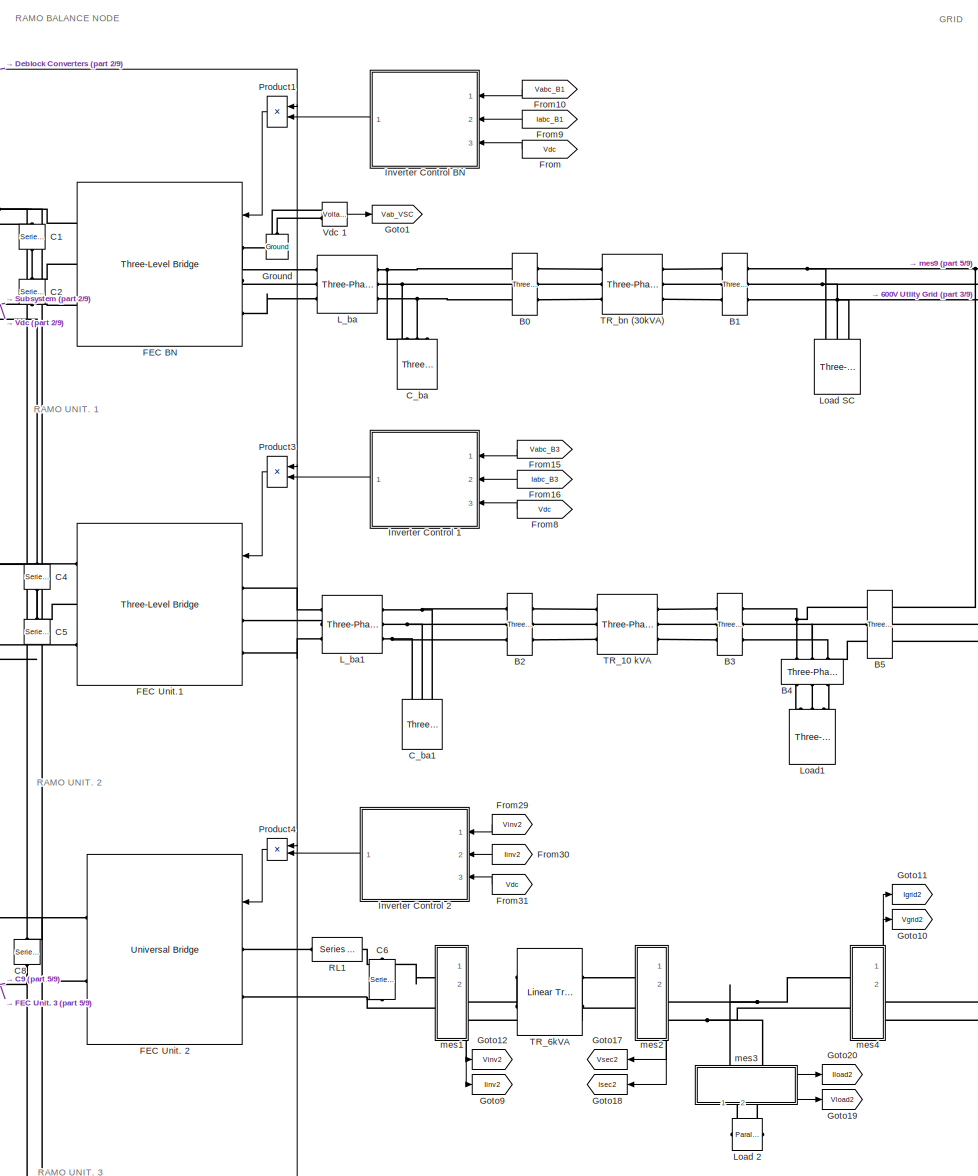
[diagram: root canvas - part 1/9, top right region]
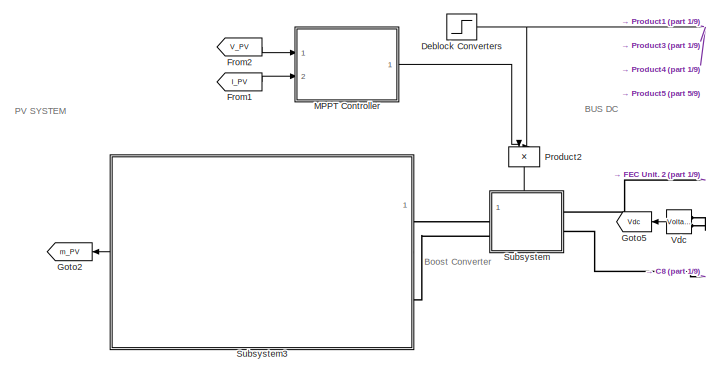
[diagram: root canvas - part 2/9, top center region]
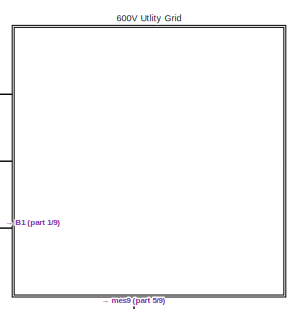
[diagram: root canvas - part 3/9, top right region]
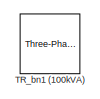
[diagram: root canvas - part 4/9, top left region]
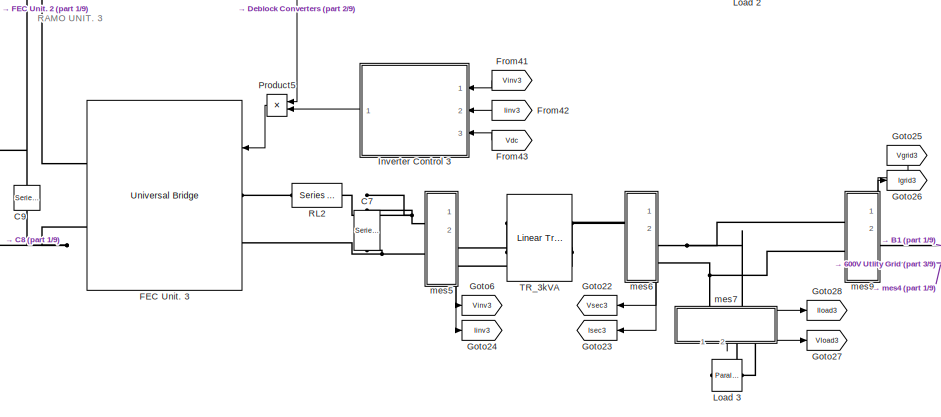
[diagram: root canvas - part 5/9, middle right region]
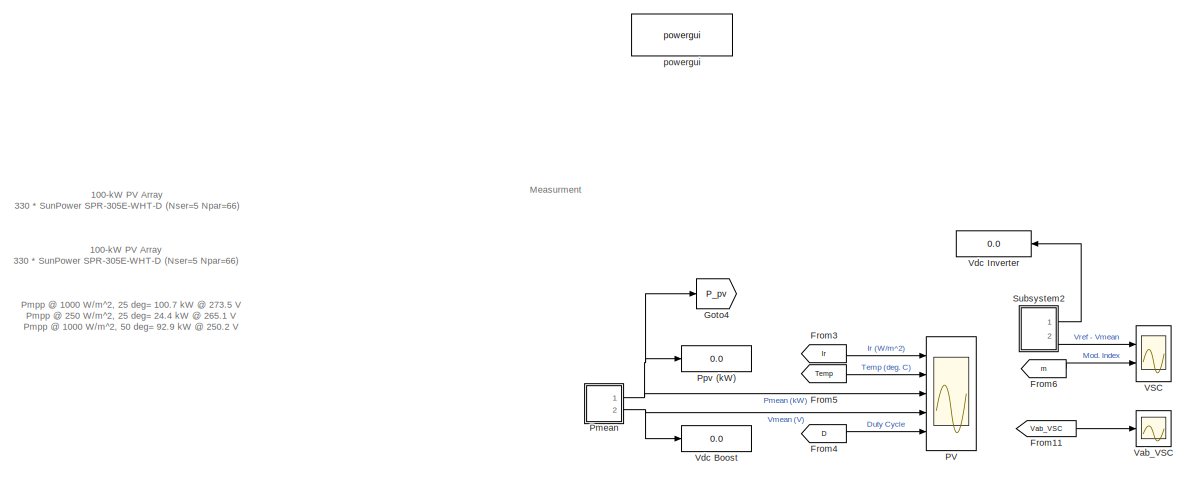
[diagram: root canvas - part 6/9, bottom left region]
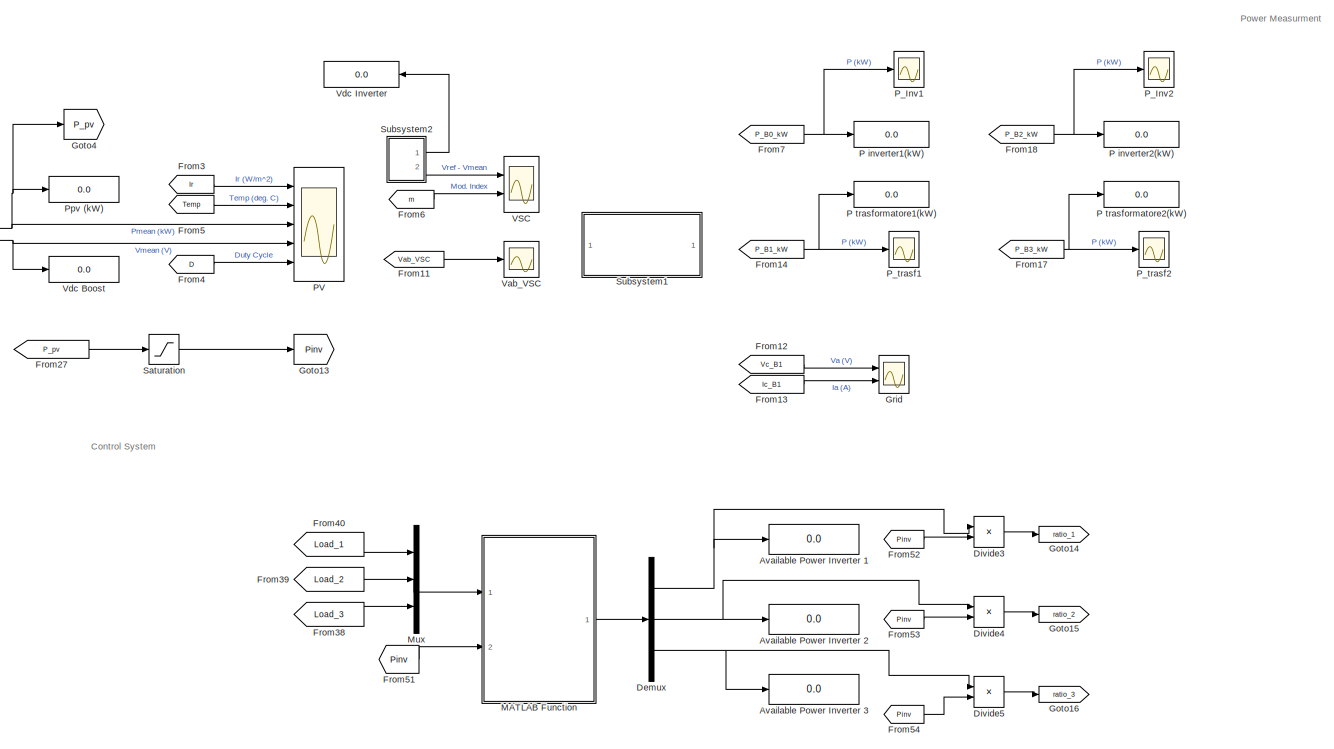
[diagram: root canvas - part 7/9, bottom center region]
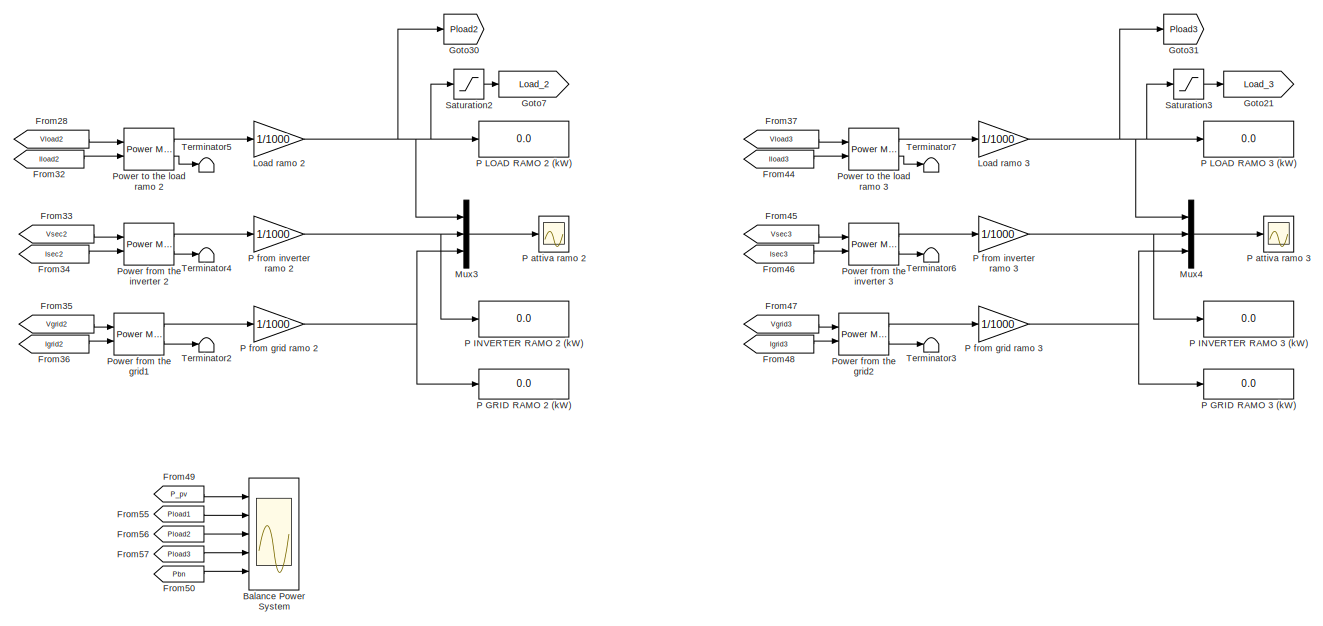
[diagram: root canvas - part 8/9, bottom right region]
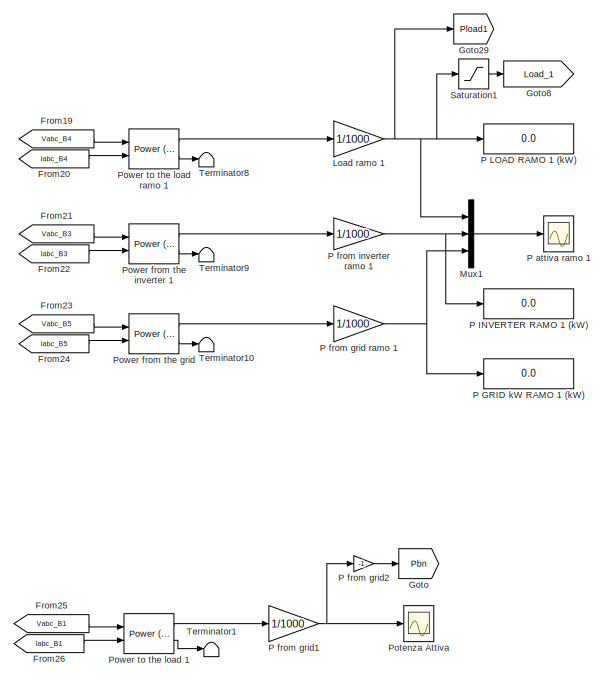
[diagram: root canvas - part 9/9, bottom center region]
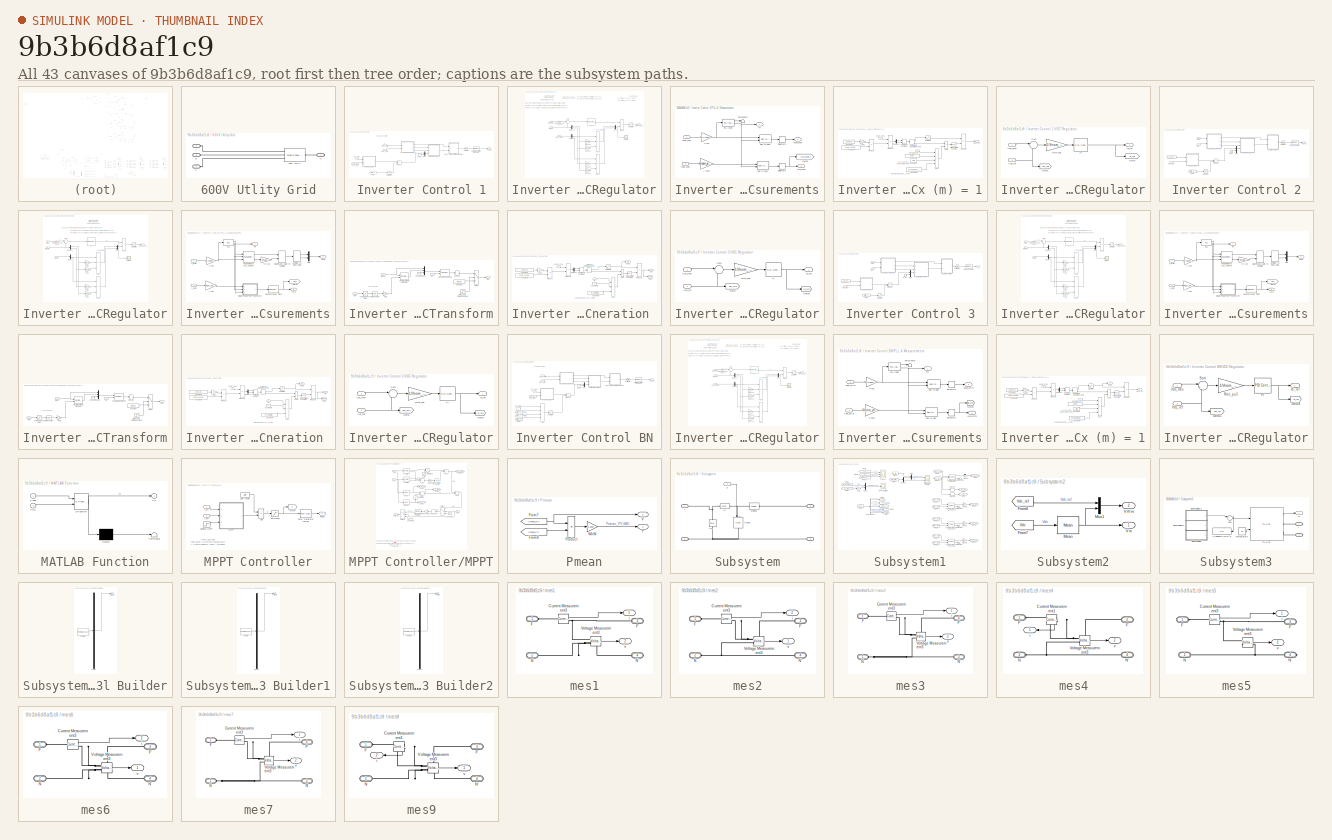
[diagram: thumbnail index - all 43 canvases of the model, root first then tree order]
MODEL slx_9b3b6d8af1c9
KIND model
CONFIG AbsTol = auto
CONFIG EnableMultiTasking = off
CONFIG FixedStep = auto
CONFIG MaxStep = auto
CONFIG MinStep = auto
CONFIG PreLoadFcn = Ts_Power=1e-6;\nTs_Control=100e-6;
CONFIG RelTol = 1e-3
CONFIG SampleTimeConstraint = Unconstrained
CONFIG SolverName = FixedStepDiscrete
CONFIG StartTime = 0.0
CONFIG StopTime = 8
BLOCK [Reference]  Load 3  REF=spsParallelRLCLoadLib/Parallel RLC Load
  AttributesFormatString = \n
  Ports = [0, 0, 0, 0, 0, 1, 1]
  SourceBlock = spsParallelRLCLoadLib/Parallel RLC Load
  SourceProductBaseCode = PS
  SourceType = Parallel RLC Load
BLOCK [Reference]  Load SC  REF=spsThreePhaseParallelRLCLoadLib/Three-Phase
Parallel RLC Load
  AttributesFormatString = \n
  NameLocation = left
  Ports = [0, 0, 0, 0, 0, 3]
  SourceBlock = spsThreePhaseParallelRLCLoadLib/Three-Phase\nParallel RLC Load
  SourceProductBaseCode = PS
  SourceType = Three-Phase Parallel RLC Load
BLOCK [Reference]  Load1  REF=spsThreePhaseParallelRLCLoadLib/Three-Phase
Parallel RLC Load
  AttributesFormatString = \n
  NameLocation = left
  Ports = [0, 0, 0, 0, 0, 3]
  SourceBlock = spsThreePhaseParallelRLCLoadLib/Three-Phase\nParallel RLC Load
  SourceProductBaseCode = PS
  SourceType = Three-Phase Parallel RLC Load
BLOCK [SubSystem] 600V Utlity Grid
  PortSchema = {"entries":[{"content":{"sides":[{"content":{"connectorIds":["LConn1","LConn2","LConn3"]},"type":"ConnectorPlacement.EquallySpacedRectSide","uuid":"36023811-46b7-429e-a8ab-d56566142e79"},{"content":{"connectorIds":[],"side":"RIGHT"},"type":"ConnectorPlacement.EquallySpacedRectSide","uuid":"9af551aa-fa19-4e35-bdf3-eccb9cb0d58d"},{"content":{"connectorIds":[],"side":"TOP"},"type":"ConnectorPlacement...<+407ch>
  Ports = [0, 0, 0, 0, 0, 3, 1]
  RequestExecContextInheritance = off
BLOCK [Reference] 600V Utlity Grid/400V 7MVA  REF=spsThreePhaseSourceLib/Three-Phase Source
  Ports = [0, 0, 0, 0, 0, 1, 3]
  SourceBlock = spsThreePhaseSourceLib/Three-Phase Source
  SourceProductBaseCode = PS
  SourceType = Three-Phase Source
BLOCK [PMIOPort] 600V Utlity Grid/A
  Side = Left
BLOCK [PMIOPort] 600V Utlity Grid/B
  Port = 2
  Side = Left
BLOCK [PMIOPort] 600V Utlity Grid/C
  Port = 3
  Side = Left
BLOCK [PMIOPort] 600V Utlity Grid/N
  Port = 4
  Side = Right
BLOCK [Display] Available Power Inverter 1
  Decimation = 1
  Ports = [1]
BLOCK [Display] Available Power Inverter 2
  Decimation = 1
  Ports = [1]
BLOCK [Display] Available Power Inverter 3
  Decimation = 1
  Ports = [1]
BLOCK [Reference] B0  REF=spsThreePhaseVIMeasurementLib/Three-Phase
V-I Measurement
  Ports = [0, 0, 0, 0, 0, 3, 3]
  SourceBlock = spsThreePhaseVIMeasurementLib/Three-Phase\nV-I Measurement
  SourceProductBaseCode = PS
  SourceType = Three-Phase VI Measurement
BLOCK [Reference] B1  REF=spsThreePhaseVIMeasurementLib/Three-Phase
V-I Measurement
  Ports = [0, 0, 0, 0, 0, 3, 3]
  SourceBlock = spsThreePhaseVIMeasurementLib/Three-Phase\nV-I Measurement
  SourceProductBaseCode = PS
  SourceType = Three-Phase VI Measurement
BLOCK [Reference] B2  REF=spsThreePhaseVIMeasurementLib/Three-Phase
V-I Measurement
  Ports = [0, 0, 0, 0, 0, 3, 3]
  SourceBlock = spsThreePhaseVIMeasurementLib/Three-Phase\nV-I Measurement
  SourceProductBaseCode = PS
  SourceType = Three-Phase VI Measurement
BLOCK [Reference] B3  REF=spsThreePhaseVIMeasurementLib/Three-Phase
V-I Measurement
  Ports = [0, 0, 0, 0, 0, 3, 3]
  SourceBlock = spsThreePhaseVIMeasurementLib/Three-Phase\nV-I Measurement
  SourceProductBaseCode = PS
  SourceType = Three-Phase VI Measurement
BLOCK [Reference] B4  REF=spsThreePhaseVIMeasurementLib/Three-Phase
V-I Measurement
  NameLocation = left
  Ports = [0, 0, 0, 0, 0, 3, 3]
  SourceBlock = spsThreePhaseVIMeasurementLib/Three-Phase\nV-I Measurement
  SourceProductBaseCode = PS
  SourceType = Three-Phase VI Measurement
BLOCK [Reference] B5  REF=spsThreePhaseVIMeasurementLib/Three-Phase
V-I Measurement
  NameLocation = top
  Ports = [0, 0, 0, 0, 0, 3, 3]
  SourceBlock = spsThreePhaseVIMeasurementLib/Three-Phase\nV-I Measurement
  SourceProductBaseCode = PS
  SourceType = Three-Phase VI Measurement
BLOCK [Scope] Balance Power System
  Floating = off
  NumInputPorts = 5
  Ports = [5]
  ScopeSpecificationString = Simulink.scopes.TimeScopeBlockCfg('CurrentConfiguration', extmgr.ConfigurationSet(extmgr.Configuration('Core','General UI',true),extmgr.Configuration('Core','Source UI',true),extmgr.Configuration('Sources','WiredSimulink',true,'DataLoggingVariableName','ScopeData1'),extmgr.Configuration('Visuals','Time Domain',true,'SerializedDisplays',{struct('MinYLimReal','-45.0954','MaxYLimReal','120.37398','YL...<+1887ch>
BLOCK [Reference] C1  REF=spsSeriesRLCBranchLib/Series RLC Branch
  AttributesFormatString = \n
  NameLocation = left
  Ports = [0, 0, 0, 0, 0, 1, 1]
  SourceBlock = spsSeriesRLCBranchLib/Series RLC Branch
  SourceProductBaseCode = PS
  SourceType = Series RLC Branch
BLOCK [Reference] C2  REF=spsSeriesRLCBranchLib/Series RLC Branch
  AttributesFormatString = \n
  NameLocation = left
  Ports = [0, 0, 0, 0, 0, 1, 1]
  SourceBlock = spsSeriesRLCBranchLib/Series RLC Branch
  SourceProductBaseCode = PS
  SourceType = Series RLC Branch
BLOCK [Reference] C4  REF=spsSeriesRLCBranchLib/Series RLC Branch
  AttributesFormatString = \n
  NameLocation = left
  Ports = [0, 0, 0, 0, 0, 1, 1]
  SourceBlock = spsSeriesRLCBranchLib/Series RLC Branch
  SourceProductBaseCode = PS
  SourceType = Series RLC Branch
BLOCK [Reference] C5  REF=spsSeriesRLCBranchLib/Series RLC Branch
  AttributesFormatString = \n
  NameLocation = left
  Ports = [0, 0, 0, 0, 0, 1, 1]
  SourceBlock = spsSeriesRLCBranchLib/Series RLC Branch
  SourceProductBaseCode = PS
  SourceType = Series RLC Branch
BLOCK [Reference] C6  REF=spsSeriesRLCLoadLib/Series RLC Load
  AttributesFormatString = \n
  NameLocation = right
  Ports = [0, 0, 0, 0, 0, 1, 1]
  SourceBlock = spsSeriesRLCLoadLib/Series RLC Load
  SourceProductBaseCode = PS
  SourceType = Series RLC Load
BLOCK [Reference] C7  REF=spsSeriesRLCLoadLib/Series RLC Load
  AttributesFormatString = \n
  NameLocation = right
  Ports = [0, 0, 0, 0, 0, 1, 1]
  SourceBlock = spsSeriesRLCLoadLib/Series RLC Load
  SourceProductBaseCode = PS
  SourceType = Series RLC Load
BLOCK [Reference] C8  REF=spsSeriesRLCBranchLib/Series RLC Branch
  AttributesFormatString = \n
  NameLocation = left
  Ports = [0, 0, 0, 0, 0, 1, 1]
  SourceBlock = spsSeriesRLCBranchLib/Series RLC Branch
  SourceProductBaseCode = PS
  SourceType = Series RLC Branch
BLOCK [Reference] C9  REF=spsSeriesRLCBranchLib/Series RLC Branch
  AttributesFormatString = \n
  NameLocation = left
  Ports = [0, 0, 0, 0, 0, 1, 1]
  SourceBlock = spsSeriesRLCBranchLib/Series RLC Branch
  SourceProductBaseCode = PS
  SourceType = Series RLC Branch
BLOCK [Reference] C_ba  REF=spsThreePhaseSeriesRLCLoadLib/Three-Phase
Series RLC Load
  AttributesFormatString = \n
  NameLocation = right
  Ports = [0, 0, 0, 0, 0, 3]
  SourceBlock = spsThreePhaseSeriesRLCLoadLib/Three-Phase\nSeries RLC Load
  SourceProductBaseCode = PS
  SourceType = Three-Phase Series RLC Load
BLOCK [Reference] C_ba1  REF=spsThreePhaseSeriesRLCLoadLib/Three-Phase
Series RLC Load
  AttributesFormatString = \n
  NameLocation = right
  Ports = [0, 0, 0, 0, 0, 3]
  SourceBlock = spsThreePhaseSeriesRLCLoadLib/Three-Phase\nSeries RLC Load
  SourceProductBaseCode = PS
  SourceType = Three-Phase Series RLC Load
BLOCK [Step] Deblock Converters
  NameLocation = top
  SampleTime = 0
  Time = 0.05
BLOCK [Demux] Demux
  Outputs = 3
  Ports = [1, 3]
BLOCK [Product] Divide3
  Inputs = */
  Ports = [2, 1]
BLOCK [Product] Divide4
  Inputs = */
  Ports = [2, 1]
BLOCK [Product] Divide5
  Inputs = */
  Ports = [2, 1]
BLOCK [Reference] FEC BN  REF=spsThreeLevelBridgeLib/Three-Level Bridge
  AttributesFormatString = \n
  Ports = [1, 0, 0, 0, 0, 3, 3]
  SourceBlock = spsThreeLevelBridgeLib/Three-Level Bridge
  SourceProductBaseCode = PS
  SourceType = Three-Level Bridge
BLOCK [Reference] FEC Unit. 2  REF=spsUniversalBridgeLib/Universal Bridge
  Ports = [1, 0, 0, 0, 0, 2, 2]
  SourceBlock = spsUniversalBridgeLib/Universal Bridge
  SourceProductBaseCode = PS
  SourceType = Universal Bridge
BLOCK [Reference] FEC Unit. 3  REF=spsUniversalBridgeLib/Universal Bridge
  Ports = [1, 0, 0, 0, 0, 2, 2]
  SourceBlock = spsUniversalBridgeLib/Universal Bridge
  SourceProductBaseCode = PS
  SourceType = Universal Bridge
BLOCK [Reference] FEC Unit.1  REF=spsThreeLevelBridgeLib/Three-Level Bridge
  AttributesFormatString = \n
  Ports = [1, 0, 0, 0, 0, 3, 3]
  SourceBlock = spsThreeLevelBridgeLib/Three-Level Bridge
  SourceProductBaseCode = PS
  SourceType = Three-Level Bridge
BLOCK [From] From
  GotoTag = Vdc
  TagVisibility = global
BLOCK [From] From1
  CloseFcn = tagdialog Close
  GotoTag = I_PV
  TagVisibility = global
BLOCK [From] From10
  CloseFcn = tagdialog Close
  GotoTag = Vabc_B1
  TagVisibility = global
BLOCK [From] From11
  CloseFcn = tagdialog Close
  GotoTag = Vab_VSC
  TagVisibility = global
BLOCK [From] From12
  CloseFcn = tagdialog Close
  GotoTag = Vc_B1
  TagVisibility = global
BLOCK [From] From13
  CloseFcn = tagdialog Close
  GotoTag = Ic_B1
  TagVisibility = global
BLOCK [From] From14
  CloseFcn = tagdialog Close
  GotoTag = P_B1_kW
  TagVisibility = global
BLOCK [From] From15
  CloseFcn = tagdialog Close
  GotoTag = Vabc_B3
  TagVisibility = global
BLOCK [From] From16
  CloseFcn = tagdialog Close
  GotoTag = Iabc_B3
  TagVisibility = global
BLOCK [From] From17
  CloseFcn = tagdialog Close
  GotoTag = P_B3_kW
  TagVisibility = global
BLOCK [From] From18
  CloseFcn = tagdialog Close
  GotoTag = P_B2_kW
  TagVisibility = global
BLOCK [From] From19
  GotoTag = Vabc_B4
  TagVisibility = global
BLOCK [From] From2
  CloseFcn = tagdialog Close
  GotoTag = V_PV
  TagVisibility = global
BLOCK [From] From20
  GotoTag = Iabc_B4
  TagVisibility = global
BLOCK [From] From21
  GotoTag = Vabc_B3
  TagVisibility = global
BLOCK [From] From22
  GotoTag = Iabc_B3
  TagVisibility = global
BLOCK [From] From23
  GotoTag = Vabc_B5
  TagVisibility = global
BLOCK [From] From24
  GotoTag = Iabc_B5
  TagVisibility = global
BLOCK [From] From25
  GotoTag = Vabc_B1
  TagVisibility = global
BLOCK [From] From26
  GotoTag = Iabc_B1
  TagVisibility = global
BLOCK [From] From27
  GotoTag = P_pv
  TagVisibility = global
BLOCK [From] From28
  GotoTag = Vload2
BLOCK [From] From29
  GotoTag = Vinv2
  NameLocation = left
BLOCK [From] From3
  CloseFcn = tagdialog Close
  GotoTag = Ir
  TagVisibility = global
BLOCK [From] From30
  GotoTag = Iinv2
  NameLocation = top
BLOCK [From] From31
  GotoTag = Vdc
  NameLocation = top
  TagVisibility = global
BLOCK [From] From32
  GotoTag = Iload2
BLOCK [From] From33
  GotoTag = Vsec2
BLOCK [From] From34
  GotoTag = Isec2
BLOCK [From] From35
  GotoTag = Vgrid2
BLOCK [From] From36
  GotoTag = Igrid2
BLOCK [From] From37
  GotoTag = Vload3
BLOCK [From] From38
  GotoTag = Load_3
BLOCK [From] From39
  GotoTag = Load_2
BLOCK [From] From4
  CloseFcn = tagdialog Close
  GotoTag = D
  TagVisibility = global
BLOCK [From] From40
  GotoTag = Load_1
BLOCK [From] From41
  GotoTag = Vinv3
  NameLocation = left
BLOCK [From] From42
  GotoTag = Iinv3
  NameLocation = top
BLOCK [From] From43
  GotoTag = Vdc
  NameLocation = top
  TagVisibility = global
BLOCK [From] From44
  GotoTag = Iload3
BLOCK [From] From45
  GotoTag = Vsec3
BLOCK [From] From46
  GotoTag = Isec3
BLOCK [From] From47
  GotoTag = Vgrid3
BLOCK [From] From48
  GotoTag = Igrid3
BLOCK [From] From49
  GotoTag = P_pv
  TagVisibility = global
BLOCK [From] From5
  CloseFcn = tagdialog Close
  GotoTag = Temp
  TagVisibility = global
BLOCK [From] From50
  GotoTag = Pbn
BLOCK [From] From51
  GotoTag = Pinv
BLOCK [From] From52
  GotoTag = Pinv
BLOCK [From] From53
  GotoTag = Pinv
BLOCK [From] From54
  GotoTag = Pinv
BLOCK [From] From55
  GotoTag = Pload1
BLOCK [From] From56
  GotoTag = Pload2
BLOCK [From] From57
  GotoTag = Pload3
BLOCK [From] From6
  CloseFcn = tagdialog Close
  GotoTag = m
  TagVisibility = global
BLOCK [From] From7
  CloseFcn = tagdialog Close
  GotoTag = P_B0_kW
  TagVisibility = global
BLOCK [From] From8
  GotoTag = Vdc
  TagVisibility = global
BLOCK [From] From9
  CloseFcn = tagdialog Close
  GotoTag = Iabc_B1
  TagVisibility = global
BLOCK [Goto] Goto
  GotoTag = Pbn
BLOCK [Goto] Goto1
  GotoTag = Vab_VSC
  TagVisibility = global
BLOCK [Goto] Goto10
  GotoTag = Vgrid2
BLOCK [Goto] Goto11
  GotoTag = Igrid2
BLOCK [Goto] Goto12
  GotoTag = Vinv2
BLOCK [Goto] Goto13
  GotoTag = Pinv
BLOCK [Goto] Goto14
  GotoTag = ratio_1
  TagVisibility = global
BLOCK [Goto] Goto15
  GotoTag = ratio_2
  TagVisibility = global
BLOCK [Goto] Goto16
  GotoTag = ratio_3
  TagVisibility = global
BLOCK [Goto] Goto17
  GotoTag = Vsec2
  NameLocation = top
BLOCK [Goto] Goto18
  GotoTag = Isec2
  NameLocation = top
BLOCK [Goto] Goto19
  GotoTag = Vload2
BLOCK [Goto] Goto2
  GotoTag = m_PV
  TagVisibility = global
BLOCK [Goto] Goto20
  GotoTag = Iload2
BLOCK [Goto] Goto21
  GotoTag = Load_3
BLOCK [Goto] Goto22
  GotoTag = Vsec3
  NameLocation = top
BLOCK [Goto] Goto23
  GotoTag = Isec3
  NameLocation = top
BLOCK [Goto] Goto24
  GotoTag = Iinv3
BLOCK [Goto] Goto25
  GotoTag = Vgrid3
BLOCK [Goto] Goto26
  GotoTag = Igrid3
BLOCK [Goto] Goto27
  GotoTag = Vload3
BLOCK [Goto] Goto28
  GotoTag = Iload3
BLOCK [Goto] Goto29
  GotoTag = Pload1
BLOCK [Goto] Goto30
  GotoTag = Pload2
BLOCK [Goto] Goto31
  GotoTag = Pload3
BLOCK [Goto] Goto4
  GotoTag = P_pv
  TagVisibility = global
BLOCK [Goto] Goto5
  GotoTag = Vdc
  TagVisibility = global
BLOCK [Goto] Goto6
  GotoTag = Vinv3
BLOCK [Goto] Goto7
  GotoTag = Load_2
BLOCK [Goto] Goto8
  GotoTag = Load_1
BLOCK [Goto] Goto9
  GotoTag = Iinv2
BLOCK [Scope] Grid
  Floating = off
  NumInputPorts = 2
  Ports = [2]
  ScopeSpecificationString = Simulink.scopes.TimeScopeBlockCfg('CurrentConfiguration', extmgr.ConfigurationSet(extmgr.Configuration('Core','General UI',true),extmgr.Configuration('Core','Source UI',true),extmgr.Configuration('Sources','WiredSimulink',true,'DataLoggingDecimation','20','DataLoggingDecimateData',true,'DataLoggingSaveFormat','Array','DataLoggingVariableName','ScopeData3'),extmgr.Configuration('Visuals','Time Doma...<+2296ch>
BLOCK [Reference] Ground  REF=spsGroundLib/Ground
  NameLocation = right
  Ports = [0, 0, 0, 0, 0, 1]
  SourceBlock = spsGroundLib/Ground
  SourceProductBaseCode = PS
  SourceType = Ground
BLOCK [SubSystem] Inverter Control 1
  NameLocation = top
  Ports = [3, 1]
  RequestExecContextInheritance = off
BLOCK [SubSystem] Inverter Control 1/Current Regulator
  Ports = [3, 1]
  RequestExecContextInheritance = off
BLOCK [Sum] Inverter Control 1/Current Regulator/Add1
  IconShape = rectangular
  Inputs = ++-
  Ports = [3, 1]
BLOCK [Sum] Inverter Control 1/Current Regulator/Add2
  IconShape = rectangular
  Ports = [2, 1]
BLOCK [Sum] Inverter Control 1/Current Regulator/Add3
  IconShape = rectangular
  Inputs = +++
  Ports = [3, 1]
BLOCK [Demux] Inverter Control 1/Current Regulator/Demux
  Outputs = 2
  Ports = [1, 2]
BLOCK [Demux] Inverter Control 1/Current Regulator/Demux1
  Outputs = 2
  Ports = [1, 2]
BLOCK [Inport] Inverter Control 1/Current Regulator/IdIq_mes
  Port = 2
  PortDimensions = 2
BLOCK [Inport] Inverter Control 1/Current Regulator/IdIq_ref
  Port = 3
  PortDimensions = 2
BLOCK [Gain] Inverter Control 1/Current Regulator/Ltot_pu1
  Gain = Ltot_pu
  OutDataTypeStr = Inherit: Same as input
  ParamDataTypeStr = Inherit: Same as input
  SaturateOnIntegerOverflow = on
BLOCK [Gain] Inverter Control 1/Current Regulator/Ltot_pu2
  Gain = Ltot_pu
  OutDataTypeStr = Inherit: Same as input
  ParamDataTypeStr = Inherit: Same as input
  SaturateOnIntegerOverflow = on
BLOCK [Mux] Inverter Control 1/Current Regulator/Mux
  DisplayOption = bar
  Inputs = 2
  Ports = [2, 1]
BLOCK [Reference] Inverter Control 1/Current Regulator/PI  REF=slpidlib/PID Controller
  Ports = [1, 1]
  SourceBlock = slpidlib/PID Controller
  SourceProductBaseCode = SL
  SourceType = PID 1dof
BLOCK [Scope] Inverter Control 1/Current Regulator/PI_Ireg1
  Floating = off
  NumInputPorts = 1
  Ports = [1]
  ScopeSpecificationString = C++SS(StrPVP('Location','[188, 365, 512, 604]'),StrPVP('Open','off'),MxPVP('AxesTitles',54,'struct(''axes1'',''%<SignalLabel>'')'),StrPVP('ShowLegends','off'),StrPVP('LimitDataPoints','off'),StrPVP('ScrollMode','off'),StrPVP('DataFormat','Array'),StrPVP('Decimation','1'),StrPVP('BlockParamSampleInput','off'))
BLOCK [Gain] Inverter Control 1/Current Regulator/Rtot_pu1
  Gain = Rtot_pu
  NameLocation = top
  OutDataTypeStr = Inherit: Same as input
  ParamDataTypeStr = Inherit: Same as input
  SaturateOnIntegerOverflow = on
BLOCK [Gain] Inverter Control 1/Current Regulator/Rtot_pu5
  Gain = Rtot_pu
  NameLocation = top
  OutDataTypeStr = Inherit: Same as input
  ParamDataTypeStr = Inherit: Same as input
  SaturateOnIntegerOverflow = on
BLOCK [Saturate] Inverter Control 1/Current Regulator/Saturation
  LowerLimit = -2
  UpperLimit = 2
BLOCK [Sum] Inverter Control 1/Current Regulator/Sum
  Inputs = |-+
  Ports = [2, 1]
BLOCK [Outport] Inverter Control 1/Current Regulator/VdVq_conv
  VectorParamsAs1DForOutWhenUnconnected = off
BLOCK [Inport] Inverter Control 1/Current Regulator/VdVq_mes
  PortDimensions = 2
BLOCK [Gain] Inverter Control 1/Current Regulator/from 100kVA to 10kVA 
  Gain = 10000/100e3
  NameLocation = top
  OutDataTypeStr = Inherit: Same as input
  ParamDataTypeStr = Inherit: Same as input
  SaturateOnIntegerOverflow = on
BLOCK [From] Inverter Control 1/From
  GotoTag = ratio_1
  TagVisibility = global
BLOCK [Inport] Inverter Control 1/Iabc_prim
  Port = 2
  PortDimensions = 3
BLOCK [Constant] Inverter Control 1/Iq_ref
  Value = 0
BLOCK [Mux] Inverter Control 1/Mux
  DisplayOption = bar
  Inputs = 2
  Ports = [2, 1]
BLOCK [SubSystem] Inverter Control 1/PLL & Measurements
  Ports = [2, 3]
  RequestExecContextInheritance = off
BLOCK [Goto] Inverter Control 1/PLL & Measurements/Goto3
  GotoTag = IdIq_prim2
  TagVisibility = global
BLOCK [Gain] Inverter Control 1/PLL & Measurements/I->pu1
  Gain = Vnom_prim*sqrt(3)/(Pnom)/sqrt(2)
  OutDataTypeStr = Inherit: Same as input
  ParamDataTypeStr = Inherit: Same as input
  SaturateOnIntegerOverflow = on
BLOCK [Inport] Inverter Control 1/PLL & Measurements/Iabc_prim
  Port = 2
BLOCK [Outport] Inverter Control 1/PLL & Measurements/IdIq_prim
  Port = 3
  VectorParamsAs1DForOutWhenUnconnected = off
BLOCK [Reference] Inverter Control 1/PLL & Measurements/PLL (3ph)  REF=spsPLL3phLib/PLL
(3ph)
  Ports = [1, 2]
  SourceBlock = spsPLL3phLib/PLL\n(3ph)
  SourceProductBaseCode = PS
  SourceType = PLL (3ph)
BLOCK [Selector] Inverter Control 1/PLL & Measurements/Selector1
  IndexOptions = Index vector (dialog)
  Indices = [1 2]
  InputPortWidth = 3
  OutputSizes = 1
  Ports = [1, 1]
BLOCK [Selector] Inverter Control 1/PLL & Measurements/Selector2
  IndexOptions = Index vector (dialog)
  Indices = [1 2]
  InputPortWidth = 3
  OutputSizes = 1
  Ports = [1, 1]
BLOCK [Terminator] Inverter Control 1/PLL & Measurements/Terminator
BLOCK [Gain] Inverter Control 1/PLL & Measurements/V->pu
  Gain = 1/(Vnom_prim*sqrt(2)/sqrt(3))
  OutDataTypeStr = Inherit: Same as input
  ParamDataTypeStr = Inherit: Same as input
  SaturateOnIntegerOverflow = on
BLOCK [Inport] Inverter Control 1/PLL & Measurements/Vabc_prim
BLOCK [Outport] Inverter Control 1/PLL & Measurements/VdVq_prim
  Port = 2
  VectorParamsAs1DForOutWhenUnconnected = off
BLOCK [Reference] Inverter Control 1/PLL & Measurements/abc to dq0  REF=spsabctodq0Lib/abc to dq0
  Ports = [2, 1]
  SourceBlock = spsabctodq0Lib/abc to dq0
  SourceProductBaseCode = PS
  SourceType = abc to dq0 Transformation
BLOCK [Reference] Inverter Control 1/PLL & Measurements/abc to dq1  REF=spsabctodq0Lib/abc to dq0
  Ports = [2, 1]
  SourceBlock = spsabctodq0Lib/abc to dq0
  SourceProductBaseCode = PS
  SourceType = abc to dq0 Transformation
BLOCK [Outport] Inverter Control 1/PLL & Measurements/wt
  VectorParamsAs1DForOutWhenUnconnected = off
BLOCK [Reference] Inverter Control 1/PWM Generator (3-Level)  REF=spsPWMGenerator3LevelLib/PWM Generator
(3-Level)
  Ports = [1, 1]
  SourceBlock = spsPWMGenerator3LevelLib/PWM Generator\n(3-Level)
  SourceProductBaseCode = PS
  SourceType = PWM Generator (3-Level)
BLOCK [Product] Inverter Control 1/Product
  Ports = [2, 1]
BLOCK [Outport] Inverter Control 1/Pulses
  NameLocation = top
  VectorParamsAs1DForOutWhenUnconnected = off
BLOCK [Saturate] Inverter Control 1/Saturation
  LowerLimit = 0
  UpperLimit = 1
BLOCK [SubSystem] Inverter Control 1/Uabc_ref Generation max (m) = 1
  Ports = [2, 1]
  RequestExecContextInheritance = off
BLOCK [Sum] Inverter Control 1/Uabc_ref Generation max (m) = 1/Add1
  IconShape = rectangular
  Inputs = ++++
  Ports = [4, 1]
BLOCK [Sum] Inverter Control 1/Uabc_ref Generation max (m) = 1/Add2
  IconShape = rectangular
  Ports = [2, 1]
BLOCK [ComplexToMagnitudeAngle] Inverter Control 1/Uabc_ref Generation max (m) = 1/Complex to Magnitude-Angle
  Ports = [1, 2]
BLOCK [Constant] Inverter Control 1/Uabc_ref Generation max (m) = 1/Constant
  Value = -pi/6
BLOCK [Constant] Inverter Control 1/Uabc_ref Generation max (m) = 1/Constant1
  Value = Vnom_dc
BLOCK [Constant] Inverter Control 1/Uabc_ref Generation max (m) = 1/Constant2
  Value = [ 0  -2*pi/3  2*pi/3  ]
BLOCK [Constant] Inverter Control 1/Uabc_ref Generation max (m) = 1/Constant3
  Value = Vnom_sec*sqrt(2)/sqrt(3)
BLOCK [Constant] Inverter Control 1/Uabc_ref Generation max (m) = 1/Constant4
  Value = Ts*Fnom*(2*pi)
BLOCK [Demux] Inverter Control 1/Uabc_ref Generation max (m) = 1/Demux1
  Outputs = 2
  Ports = [1, 2]
BLOCK [Gain] Inverter Control 1/Uabc_ref Generation max (m) = 1/Gain1
  Gain = 1/2
BLOCK [Product] Inverter Control 1/Uabc_ref Generation max (m) = 1/Product
  Inputs = */
  Ports = [2, 1]
  RndMeth = Zero
BLOCK [Product] Inverter Control 1/Uabc_ref Generation max (m) = 1/Product1
  Inputs = */
  Ports = [2, 1]
  RndMeth = Zero
BLOCK [Product] Inverter Control 1/Uabc_ref Generation max (m) = 1/Product2
  Inputs = **
  Ports = [2, 1]
  RndMeth = Zero
BLOCK [RealImagToComplex] Inverter Control 1/Uabc_ref Generation max (m) = 1/Real-Imag to Complex
  Ports = [2, 1]
BLOCK [Saturate] Inverter Control 1/Uabc_ref Generation max (m) = 1/Saturation
  LowerLimit = 0
  UpperLimit = 1
BLOCK [Trigonometry] Inverter Control 1/Uabc_ref Generation max (m) = 1/Trigonometric Function
  Ports = [1, 1]
BLOCK [Outport] Inverter Control 1/Uabc_ref Generation max (m) = 1/Uabc_ref
  VectorParamsAs1DForOutWhenUnconnected = off
BLOCK [Inport] Inverter Control 1/Uabc_ref Generation max (m) = 1/VdVq_conv
  Port = 2
BLOCK [Inport] Inverter Control 1/Uabc_ref Generation max (m) = 1/wt
BLOCK [UnitDelay] Inverter Control 1/Unit Delay
  HasFrameUpgradeWarning = on
  SampleTime = Ts_Control
BLOCK [SubSystem] Inverter Control 1/VDC Regulator
  Ports = [2, 1]
  RequestExecContextInheritance = off
BLOCK [Goto] Inverter Control 1/VDC Regulator/Goto1
  GotoTag = Vdc_ref2
  TagVisibility = global
BLOCK [Goto] Inverter Control 1/VDC Regulator/Goto4
  GotoTag = Id_ref2
  TagVisibility = global
BLOCK [Outport] Inverter Control 1/VDC Regulator/Id_ref
  InitialOutput = 0
  SampleTime = Ts
  VectorParamsAs1DForOutWhenUnconnected = off
BLOCK [Reference] Inverter Control 1/VDC Regulator/PI  REF=slpidlib/PID Controller
  Ports = [1, 1]
  SourceBlock = slpidlib/PID Controller
  SourceProductBaseCode = SL
  SourceType = PID 1dof
BLOCK [Gain] Inverter Control 1/VDC Regulator/Rtot_pu3
  Gain = 1/Vnom_dc
  OutDataTypeStr = Inherit: Same as input
  ParamDataTypeStr = Inherit: Same as input
  SaturateOnIntegerOverflow = on
BLOCK [Sum] Inverter Control 1/VDC Regulator/Sum
  Inputs = |+-
  Ports = [2, 1]
BLOCK [Inport] Inverter Control 1/VDC Regulator/Vdc_mes
  PortDimensions = 1
BLOCK [Inport] Inverter Control 1/VDC Regulator/Vdc_ref
  Port = 2
  PortDimensions = 1
BLOCK [Inport] Inverter Control 1/Vabc_prim
  PortDimensions = 3
BLOCK [Inport] Inverter Control 1/Vdc_mes
  Port = 3
  PortDimensions = 1
BLOCK [Constant] Inverter Control 1/Vdc_ref1
  Value = Vdc_ref
BLOCK [SubSystem] Inverter Control 2
  NameLocation = top
  Ports = [3, 1]
  RequestExecContextInheritance = off
BLOCK [SubSystem] Inverter Control 2/Current Regulator
  Ports = [3, 1]
  RequestExecContextInheritance = off
BLOCK [Sum] Inverter Control 2/Current Regulator/Add1
  IconShape = rectangular
  Inputs = ++-
  Ports = [3, 1]
BLOCK [Sum] Inverter Control 2/Current Regulator/Add2
  IconShape = rectangular
  Ports = [2, 1]
BLOCK [Sum] Inverter Control 2/Current Regulator/Add3
  IconShape = rectangular
  Inputs = +++
  Ports = [3, 1]
BLOCK [Demux] Inverter Control 2/Current Regulator/Demux
  Outputs = 2
  Ports = [1, 2]
BLOCK [Demux] Inverter Control 2/Current Regulator/Demux1
  Outputs = 2
  Ports = [1, 2]
BLOCK [Gain] Inverter Control 2/Current Regulator/From 100kVA to 6kVA
  Gain = 6000/100e3
  NameLocation = top
  OutDataTypeStr = Inherit: Same as input
  ParamDataTypeStr = Inherit: Same as input
  SaturateOnIntegerOverflow = on
BLOCK [Inport] Inverter Control 2/Current Regulator/IdIq
  Port = 2
  PortDimensions = 2
BLOCK [Inport] Inverter Control 2/Current Regulator/IdIq_ref
  Port = 3
  PortDimensions = 2
BLOCK [Gain] Inverter Control 2/Current Regulator/Ltot
  Gain = Ltot_pu
  OutDataTypeStr = Inherit: Same as input
  ParamDataTypeStr = Inherit: Same as input
  SaturateOnIntegerOverflow = on
BLOCK [Gain] Inverter Control 2/Current Regulator/Ltot  
  Gain = Ltot_pu
  OutDataTypeStr = Inherit: Same as input
  ParamDataTypeStr = Inherit: Same as input
  SaturateOnIntegerOverflow = on
BLOCK [Mux] Inverter Control 2/Current Regulator/Mux
  DisplayOption = bar
  Inputs = 2
  Ports = [2, 1]
BLOCK [Reference] Inverter Control 2/Current Regulator/PI  REF=slpidlib/PID Controller
  Ports = [1, 1]
  SourceBlock = slpidlib/PID Controller
  SourceProductBaseCode = SL
  SourceType = PID 1dof
BLOCK [Scope] Inverter Control 2/Current Regulator/PI_Ireg1
  Floating = off
  NumInputPorts = 1
  Ports = [1]
  ScopeSpecificationString = Simulink.scopes.TimeScopeBlockCfg('CurrentConfiguration', extmgr.ConfigurationSet(extmgr.Configuration('Core','General UI',true),extmgr.Configuration('Core','Source UI',true),extmgr.Configuration('Sources','WiredSimulink',true,'DataLoggingSaveFormat','Array','DataLoggingDecimation','1','DataLoggingDecimateData',true),extmgr.Configuration('Visuals','Time Domain',true,'SerializedDisplays',{struct('M...<+1614ch>
BLOCK [Gain] Inverter Control 2/Current Regulator/Rtot
  Gain = Rtot_pu
  NameLocation = top
  OutDataTypeStr = Inherit: Same as input
  ParamDataTypeStr = Inherit: Same as input
  SaturateOnIntegerOverflow = on
BLOCK [Gain] Inverter Control 2/Current Regulator/Rtot 
  Gain = Rtot_pu
  NameLocation = top
  OutDataTypeStr = Inherit: Same as input
  ParamDataTypeStr = Inherit: Same as input
  SaturateOnIntegerOverflow = on
BLOCK [Saturate] Inverter Control 2/Current Regulator/Saturation
  LowerLimit = -2
  UpperLimit = 2
BLOCK [Sum] Inverter Control 2/Current Regulator/Sum
  Inputs = |-+
  Ports = [2, 1]
BLOCK [Inport] Inverter Control 2/Current Regulator/VdVq
  PortDimensions = 2
BLOCK [Outport] Inverter Control 2/Current Regulator/VdVq_conv
  VectorParamsAs1DForOutWhenUnconnected = off
BLOCK [From] Inverter Control 2/From
  GotoTag = ratio_2
  TagVisibility = global
BLOCK [Inport] Inverter Control 2/Iinv
  Port = 2
  PortDimensions = 1
BLOCK [Constant] Inverter Control 2/Iq_ref
  Value = 0
BLOCK [Mux] Inverter Control 2/Mux
  DisplayOption = bar
  Inputs = 2
  Ports = [2, 1]
BLOCK [SubSystem] Inverter Control 2/PLL & Measurements
  Ports = [2, 3]
  RequestExecContextInheritance = off
BLOCK [Gain] Inverter Control 2/PLL & Measurements/A->pu
  Gain = Vnom_sec/Pnom/sqrt(2)
  OutDataTypeStr = Inherit: Same as input
  ParamDataTypeStr = Inherit: Same as input
  SaturateOnIntegerOverflow = on
BLOCK [ComplexToRealImag] Inverter Control 2/PLL & Measurements/Complex to Real-Imag
  Ports = [1, 2]
BLOCK [Reference] Inverter Control 2/PLL & Measurements/Fundamental (PLL-Driven)  REF=spsFundamentalPLLDrivenLib/Fundamental
(PLL-Driven)
  Ports = [3, 2]
  SourceBlock = spsFundamentalPLLDrivenLib/Fundamental\n(PLL-Driven)
  SourceProductBaseCode = PS
  SourceType = Fundamental (PLL-Driven)
BLOCK [Goto] Inverter Control 2/PLL & Measurements/Goto3
  GotoTag = IdIq3
  TagVisibility = global
BLOCK [Inport] Inverter Control 2/PLL & Measurements/I_prim
  Port = 2
BLOCK [Outport] Inverter Control 2/PLL & Measurements/IdIq
  Port = 3
  VectorParamsAs1DForOutWhenUnconnected = off
BLOCK [MagnitudeAngleToComplex] Inverter Control 2/PLL & Measurements/Magnitude-Angle to Complex
  Ports = [2, 1]
BLOCK [Mux] Inverter Control 2/PLL & Measurements/Mux
  DisplayOption = bar
  Inputs = 2
  Ports = [2, 1]
BLOCK [Reference] Inverter Control 2/PLL & Measurements/PLL  REF=spsPLLLib/PLL
  Ports = [1, 2]
  SourceBlock = spsPLLLib/PLL
  SourceProductBaseCode = PS
  SourceType = PLL
BLOCK [Reference] Inverter Control 2/PLL & Measurements/Second-Order Filter  REF=spsSecondOrderFilterLib/Second-Order
Filter
  Ports = [1, 1]
  SourceBlock = spsSecondOrderFilterLib/Second-Order\nFilter
  SourceProductBaseCode = PS
  SourceType = Second-Order Filter
BLOCK [SubSystem] Inverter Control 2/PLL & Measurements/Single-Phase dq Transform
  Ports = [3, 1]
  RequestExecContextInheritance = off
BLOCK [Reference] Inverter Control 2/PLL & Measurements/Single-Phase dq Transform/Alpha-Beta-Zero to dq0  REF=spsAlphaBetaZerotodq0Lib/Alpha-Beta-Zero
to dq0
  Ports = [2, 1]
  SourceBlock = spsAlphaBetaZerotodq0Lib/Alpha-Beta-Zero\nto dq0
  SourceProductBaseCode = PS
  SourceType = Alpha-Beta-Zero to dq0 Transformation
BLOCK [Constant] Inverter Control 2/PLL & Measurements/Single-Phase dq Transform/Constant
  Value = [0.92 0]
BLOCK [Constant] Inverter Control 2/PLL & Measurements/Single-Phase dq Transform/Constant1
  Value = 0
BLOCK [Reference] Inverter Control 2/PLL & Measurements/Single-Phase dq Transform/Discrete Variable Time Delay  REF=spsDiscreteVariableTimeDelayLib/Discrete Variable
Time Delay
  Ports = [2, 1]
  SourceBlock = spsDiscreteVariableTimeDelayLib/Discrete Variable\nTime Delay
  SourceProductBaseCode = PS
  SourceType = Discrete Variable Time Delay
BLOCK [Step] Inverter Control 2/PLL & Measurements/Single-Phase dq Transform/First cycle of simulation Id=0.92, Iq=0
  SampleTime = Ts_Control
  Time = 1/Fnom
BLOCK [Inport] Inverter Control 2/PLL & Measurements/Single-Phase dq Transform/Freq
  Port = 3
BLOCK [Gain] Inverter Control 2/PLL & Measurements/Single-Phase dq Transform/Gain
  Gain = 1/4
BLOCK [Outport] Inverter Control 2/PLL & Measurements/Single-Phase dq Transform/Idq
  VectorParamsAs1DForOutWhenUnconnected = off
BLOCK [Inport] Inverter Control 2/PLL & Measurements/Single-Phase dq Transform/Imeas
BLOCK [Math] Inverter Control 2/PLL & Measurements/Single-Phase dq Transform/Math Function
  Operator = reciprocal
  Ports = [1, 1]
  SignedPower = on
BLOCK [Mux] Inverter Control 2/PLL & Measurements/Single-Phase dq Transform/Mux1
  DisplayOption = bar
  Inputs = 3
  Ports = [3, 1]
BLOCK [Selector] Inverter Control 2/PLL & Measurements/Single-Phase dq Transform/Selector
  IndexOptions = Index vector (dialog)
  Indices = [1 2]
  InputPortWidth = 3
  OutputSizes = 1
  Ports = [1, 1]
BLOCK [Switch] Inverter Control 2/PLL & Measurements/Single-Phase dq Transform/Switch
  Criteria = u2 ~= 0
  InputSameDT = off
  SaturateOnIntegerOverflow = off
BLOCK [Saturate] Inverter Control 2/PLL & Measurements/Single-Phase dq Transform/avoid division by zero
  LowerLimit = 40
  UpperLimit = 70
BLOCK [Inport] Inverter Control 2/PLL & Measurements/Single-Phase dq Transform/wt
  Port = 2
BLOCK [Gain] Inverter Control 2/PLL & Measurements/V->pu
  Gain = 1/(Vnom_sec*sqrt(2))
  OutDataTypeStr = Inherit: Same as input
  ParamDataTypeStr = Inherit: Same as input
  SaturateOnIntegerOverflow = on
BLOCK [Inport] Inverter Control 2/PLL & Measurements/V_prim
BLOCK [Outport] Inverter Control 2/PLL & Measurements/VdVq
  Port = 2
  VectorParamsAs1DForOutWhenUnconnected = off
BLOCK [Gain] Inverter Control 2/PLL & Measurements/to-rad
  Gain = pi/180
BLOCK [Outport] Inverter Control 2/PLL & Measurements/wt
  VectorParamsAs1DForOutWhenUnconnected = off
BLOCK [Reference] Inverter Control 2/PWM_Generator  REF=spsPWMGenerator2LevelLib/PWM Generator
(2-Level)
  AttributesFormatString = %<ModulatorType>
  Ports = [1, 1]
  SourceBlock = spsPWMGenerator2LevelLib/PWM Generator\n(2-Level)
  SourceProductBaseCode = PS
  SourceType = PWM Generator (2-Level)
BLOCK [Product] Inverter Control 2/Product
  Ports = [2, 1]
BLOCK [Outport] Inverter Control 2/Pulses
  NameLocation = top
  VectorParamsAs1DForOutWhenUnconnected = off
BLOCK [Saturate] Inverter Control 2/Saturation
  LowerLimit = 0
  UpperLimit = 1
BLOCK [SubSystem] Inverter Control 2/U_ref Generation 
  Ports = [2, 1]
  RequestExecContextInheritance = off
BLOCK [Sum] Inverter Control 2/U_ref Generation /Add1
  IconShape = rectangular
  Inputs = +++
  Ports = [3, 1]
BLOCK [Sum] Inverter Control 2/U_ref Generation /Add2
  IconShape = rectangular
  Ports = [2, 1]
BLOCK [ComplexToMagnitudeAngle] Inverter Control 2/U_ref Generation /Complex to Magnitude-Angle
  Ports = [1, 2]
BLOCK [Constant] Inverter Control 2/U_ref Generation /Constant1
  Value = Vnom_dc
BLOCK [Constant] Inverter Control 2/U_ref Generation /Constant2
  Value = 0
BLOCK [Constant] Inverter Control 2/U_ref Generation /Constant3
  Value = Vnom_sec*sqrt(2)
BLOCK [Constant] Inverter Control 2/U_ref Generation /Constant4
  Value = Ts_Control*Fnom*(2*pi)
BLOCK [Demux] Inverter Control 2/U_ref Generation /Demux1
  Outputs = 2
  Ports = [1, 2]
BLOCK [Gain] Inverter Control 2/U_ref Generation /Gain1
BLOCK [Goto] Inverter Control 2/U_ref Generation /Goto1
  GotoTag = m3
  TagVisibility = global
BLOCK [Goto] Inverter Control 2/U_ref Generation /Goto2
  GotoTag = Uref3
  TagVisibility = global
BLOCK [Product] Inverter Control 2/U_ref Generation /Product
  Inputs = */
  Ports = [2, 1]
  RndMeth = Zero
BLOCK [Product] Inverter Control 2/U_ref Generation /Product1
  Inputs = */
  Ports = [2, 1]
  RndMeth = Zero
BLOCK [Product] Inverter Control 2/U_ref Generation /Product2
  Inputs = **
  Ports = [2, 1]
  RndMeth = Zero
BLOCK [RealImagToComplex] Inverter Control 2/U_ref Generation /Real-Imag to Complex
  Ports = [2, 1]
BLOCK [Saturate] Inverter Control 2/U_ref Generation /Saturation
  LowerLimit = 0
  UpperLimit = 1
BLOCK [Trigonometry] Inverter Control 2/U_ref Generation /Trigonometric Function
  Ports = [1, 1]
BLOCK [Outport] Inverter Control 2/U_ref Generation /Uref
  VectorParamsAs1DForOutWhenUnconnected = off
BLOCK [Inport] Inverter Control 2/U_ref Generation /VdVq_conv
  Port = 2
BLOCK [Inport] Inverter Control 2/U_ref Generation /wt
BLOCK [UnitDelay] Inverter Control 2/Unit Delay
  HasFrameUpgradeWarning = on
  NameLocation = top
  SampleTime = Ts_Control
BLOCK [SubSystem] Inverter Control 2/VDC Regulator
  NameLocation = top
  Ports = [2, 1]
  RequestExecContextInheritance = off
BLOCK [Goto] Inverter Control 2/VDC Regulator/Goto1
  GotoTag = Vdc_ref3
  TagVisibility = global
BLOCK [Goto] Inverter Control 2/VDC Regulator/Goto5
  GotoTag = Id_ref3
  TagVisibility = global
BLOCK [Outport] Inverter Control 2/VDC Regulator/Id_ref
  InitialOutput = 0
  VectorParamsAs1DForOutWhenUnconnected = off
BLOCK [Reference] Inverter Control 2/VDC Regulator/PI  REF=slpidlib/PID Controller
  Ports = [1, 1]
  SourceBlock = slpidlib/PID Controller
  SourceProductBaseCode = SL
  SourceType = PID 1dof
BLOCK [Gain] Inverter Control 2/VDC Regulator/Rtot_pu2
  Gain = 1/Vnom_dc
  OutDataTypeStr = Inherit: Same as input
  ParamDataTypeStr = Inherit: Same as input
  SaturateOnIntegerOverflow = on
BLOCK [Sum] Inverter Control 2/VDC Regulator/Sum
  Inputs = |+-
  Ports = [2, 1]
BLOCK [Inport] Inverter Control 2/VDC Regulator/Vdc_mes
  Port = 2
  PortDimensions = 1
BLOCK [Inport] Inverter Control 2/VDC Regulator/Vdc_ref
  PortDimensions = 1
BLOCK [Inport] Inverter Control 2/Vdc_mes
  Port = 3
  PortDimensions = 1
BLOCK [Inport] Inverter Control 2/Vinv
  PortDimensions = 1
BLOCK [Constant] Inverter Control 2/Vnom_dc1
  Value = Vdc_ref
BLOCK [SubSystem] Inverter Control 3
  NameLocation = top
  Ports = [3, 1]
  RequestExecContextInheritance = off
BLOCK [SubSystem] Inverter Control 3/Current Regulator
  Ports = [3, 1]
  RequestExecContextInheritance = off
BLOCK [Sum] Inverter Control 3/Current Regulator/Add1
  IconShape = rectangular
  Inputs = ++-
  Ports = [3, 1]
BLOCK [Sum] Inverter Control 3/Current Regulator/Add2
  IconShape = rectangular
  Ports = [2, 1]
BLOCK [Sum] Inverter Control 3/Current Regulator/Add3
  IconShape = rectangular
  Inputs = +++
  Ports = [3, 1]
BLOCK [Demux] Inverter Control 3/Current Regulator/Demux
  Outputs = 2
  Ports = [1, 2]
BLOCK [Demux] Inverter Control 3/Current Regulator/Demux1
  Outputs = 2
  Ports = [1, 2]
BLOCK [Gain] Inverter Control 3/Current Regulator/From 100kVA to 3kVA
  Gain = 3000/100e3
  NameLocation = top
  OutDataTypeStr = Inherit: Same as input
  ParamDataTypeStr = Inherit: Same as input
  SaturateOnIntegerOverflow = on
BLOCK [Inport] Inverter Control 3/Current Regulator/IdIq
  Port = 2
  PortDimensions = 2
BLOCK [Inport] Inverter Control 3/Current Regulator/IdIq_ref
  Port = 3
  PortDimensions = 2
BLOCK [Gain] Inverter Control 3/Current Regulator/Ltot
  Gain = Ltot_pu
  OutDataTypeStr = Inherit: Same as input
  ParamDataTypeStr = Inherit: Same as input
  SaturateOnIntegerOverflow = on
BLOCK [Gain] Inverter Control 3/Current Regulator/Ltot  
  Gain = Ltot_pu
  OutDataTypeStr = Inherit: Same as input
  ParamDataTypeStr = Inherit: Same as input
  SaturateOnIntegerOverflow = on
BLOCK [Mux] Inverter Control 3/Current Regulator/Mux
  DisplayOption = bar
  Inputs = 2
  Ports = [2, 1]
BLOCK [Reference] Inverter Control 3/Current Regulator/PI  REF=slpidlib/PID Controller
  Ports = [1, 1]
  SourceBlock = slpidlib/PID Controller
  SourceProductBaseCode = SL
  SourceType = PID 1dof
BLOCK [Scope] Inverter Control 3/Current Regulator/PI_Ireg1
  Floating = off
  NumInputPorts = 1
  Ports = [1]
  ScopeSpecificationString = Simulink.scopes.TimeScopeBlockCfg('CurrentConfiguration', extmgr.ConfigurationSet(extmgr.Configuration('Core','General UI',true),extmgr.Configuration('Core','Source UI',true),extmgr.Configuration('Sources','WiredSimulink',true,'DataLoggingSaveFormat','Array','DataLoggingDecimation','1','DataLoggingDecimateData',true),extmgr.Configuration('Visuals','Time Domain',true,'SerializedDisplays',{struct('M...<+1614ch>
BLOCK [Gain] Inverter Control 3/Current Regulator/Rtot
  Gain = Rtot_pu
  NameLocation = top
  OutDataTypeStr = Inherit: Same as input
  ParamDataTypeStr = Inherit: Same as input
  SaturateOnIntegerOverflow = on
BLOCK [Gain] Inverter Control 3/Current Regulator/Rtot 
  Gain = Rtot_pu
  NameLocation = top
  OutDataTypeStr = Inherit: Same as input
  ParamDataTypeStr = Inherit: Same as input
  SaturateOnIntegerOverflow = on
BLOCK [Saturate] Inverter Control 3/Current Regulator/Saturation
  LowerLimit = -2
  UpperLimit = 2
BLOCK [Sum] Inverter Control 3/Current Regulator/Sum
  Inputs = |-+
  Ports = [2, 1]
BLOCK [Inport] Inverter Control 3/Current Regulator/VdVq
  PortDimensions = 2
BLOCK [Outport] Inverter Control 3/Current Regulator/VdVq_conv
  VectorParamsAs1DForOutWhenUnconnected = off
BLOCK [From] Inverter Control 3/From
  GotoTag = ratio_3
  TagVisibility = global
BLOCK [Inport] Inverter Control 3/Iinv
  Port = 2
  PortDimensions = 1
BLOCK [Constant] Inverter Control 3/Iq_ref
  Value = 0
BLOCK [Mux] Inverter Control 3/Mux
  DisplayOption = bar
  Inputs = 2
  Ports = [2, 1]
BLOCK [SubSystem] Inverter Control 3/PLL & Measurements
  Ports = [2, 3]
  RequestExecContextInheritance = off
BLOCK [Gain] Inverter Control 3/PLL & Measurements/A->pu
  Gain = Vnom_sec/Pnom/sqrt(2)
  OutDataTypeStr = Inherit: Same as input
  ParamDataTypeStr = Inherit: Same as input
  SaturateOnIntegerOverflow = on
BLOCK [ComplexToRealImag] Inverter Control 3/PLL & Measurements/Complex to Real-Imag
  Ports = [1, 2]
BLOCK [Reference] Inverter Control 3/PLL & Measurements/Fundamental (PLL-Driven)  REF=spsFundamentalPLLDrivenLib/Fundamental
(PLL-Driven)
  Ports = [3, 2]
  SourceBlock = spsFundamentalPLLDrivenLib/Fundamental\n(PLL-Driven)
  SourceProductBaseCode = PS
  SourceType = Fundamental (PLL-Driven)
BLOCK [Goto] Inverter Control 3/PLL & Measurements/Goto3
  GotoTag = IdIq4
  TagVisibility = global
BLOCK [Inport] Inverter Control 3/PLL & Measurements/I_prim
  Port = 2
BLOCK [Outport] Inverter Control 3/PLL & Measurements/IdIq
  Port = 3
  VectorParamsAs1DForOutWhenUnconnected = off
BLOCK [MagnitudeAngleToComplex] Inverter Control 3/PLL & Measurements/Magnitude-Angle to Complex
  Ports = [2, 1]
BLOCK [Mux] Inverter Control 3/PLL & Measurements/Mux
  DisplayOption = bar
  Inputs = 2
  Ports = [2, 1]
BLOCK [Reference] Inverter Control 3/PLL & Measurements/PLL  REF=spsPLLLib/PLL
  Ports = [1, 2]
  SourceBlock = spsPLLLib/PLL
  SourceProductBaseCode = PS
  SourceType = PLL
BLOCK [Reference] Inverter Control 3/PLL & Measurements/Second-Order Filter  REF=spsSecondOrderFilterLib/Second-Order
Filter
  Ports = [1, 1]
  SourceBlock = spsSecondOrderFilterLib/Second-Order\nFilter
  SourceProductBaseCode = PS
  SourceType = Second-Order Filter
BLOCK [SubSystem] Inverter Control 3/PLL & Measurements/Single-Phase dq Transform
  Ports = [3, 1]
  RequestExecContextInheritance = off
BLOCK [Reference] Inverter Control 3/PLL & Measurements/Single-Phase dq Transform/Alpha-Beta-Zero to dq0  REF=spsAlphaBetaZerotodq0Lib/Alpha-Beta-Zero
to dq0
  Ports = [2, 1]
  SourceBlock = spsAlphaBetaZerotodq0Lib/Alpha-Beta-Zero\nto dq0
  SourceProductBaseCode = PS
  SourceType = Alpha-Beta-Zero to dq0 Transformation
BLOCK [Constant] Inverter Control 3/PLL & Measurements/Single-Phase dq Transform/Constant
  Value = [0.92 0]
BLOCK [Constant] Inverter Control 3/PLL & Measurements/Single-Phase dq Transform/Constant1
  Value = 0
BLOCK [Reference] Inverter Control 3/PLL & Measurements/Single-Phase dq Transform/Discrete Variable Time Delay  REF=spsDiscreteVariableTimeDelayLib/Discrete Variable
Time Delay
  Ports = [2, 1]
  SourceBlock = spsDiscreteVariableTimeDelayLib/Discrete Variable\nTime Delay
  SourceProductBaseCode = PS
  SourceType = Discrete Variable Time Delay
BLOCK [Step] Inverter Control 3/PLL & Measurements/Single-Phase dq Transform/First cycle of simulation Id=0.92, Iq=0
  SampleTime = Ts_Control
  Time = 1/Fnom
BLOCK [Inport] Inverter Control 3/PLL & Measurements/Single-Phase dq Transform/Freq
  Port = 3
BLOCK [Gain] Inverter Control 3/PLL & Measurements/Single-Phase dq Transform/Gain
  Gain = 1/4
BLOCK [Outport] Inverter Control 3/PLL & Measurements/Single-Phase dq Transform/Idq
  VectorParamsAs1DForOutWhenUnconnected = off
BLOCK [Inport] Inverter Control 3/PLL & Measurements/Single-Phase dq Transform/Imeas
BLOCK [Math] Inverter Control 3/PLL & Measurements/Single-Phase dq Transform/Math Function
  Operator = reciprocal
  Ports = [1, 1]
  SignedPower = on
BLOCK [Mux] Inverter Control 3/PLL & Measurements/Single-Phase dq Transform/Mux1
  DisplayOption = bar
  Inputs = 3
  Ports = [3, 1]
BLOCK [Selector] Inverter Control 3/PLL & Measurements/Single-Phase dq Transform/Selector
  IndexOptions = Index vector (dialog)
  Indices = [1 2]
  InputPortWidth = 3
  OutputSizes = 1
  Ports = [1, 1]
BLOCK [Switch] Inverter Control 3/PLL & Measurements/Single-Phase dq Transform/Switch
  Criteria = u2 ~= 0
  InputSameDT = off
  SaturateOnIntegerOverflow = off
BLOCK [Saturate] Inverter Control 3/PLL & Measurements/Single-Phase dq Transform/avoid division by zero
  LowerLimit = 40
  UpperLimit = 70
BLOCK [Inport] Inverter Control 3/PLL & Measurements/Single-Phase dq Transform/wt
  Port = 2
BLOCK [Gain] Inverter Control 3/PLL & Measurements/V->pu
  Gain = 1/(Vnom_sec*sqrt(2))
  OutDataTypeStr = Inherit: Same as input
  ParamDataTypeStr = Inherit: Same as input
  SaturateOnIntegerOverflow = on
BLOCK [Inport] Inverter Control 3/PLL & Measurements/V_prim
BLOCK [Outport] Inverter Control 3/PLL & Measurements/VdVq
  Port = 2
  VectorParamsAs1DForOutWhenUnconnected = off
BLOCK [Gain] Inverter Control 3/PLL & Measurements/to-rad
  Gain = pi/180
BLOCK [Outport] Inverter Control 3/PLL & Measurements/wt
  VectorParamsAs1DForOutWhenUnconnected = off
BLOCK [Reference] Inverter Control 3/PWM_Generator  REF=spsPWMGenerator2LevelLib/PWM Generator
(2-Level)
  AttributesFormatString = %<ModulatorType>
  Ports = [1, 1]
  SourceBlock = spsPWMGenerator2LevelLib/PWM Generator\n(2-Level)
  SourceProductBaseCode = PS
  SourceType = PWM Generator (2-Level)
BLOCK [Product] Inverter Control 3/Product
  Ports = [2, 1]
BLOCK [Saturate] Inverter Control 3/Saturation
  LowerLimit = 0
  UpperLimit = 1
BLOCK [SubSystem] Inverter Control 3/U_ref Generation 
  Ports = [2, 1]
  RequestExecContextInheritance = off
BLOCK [Sum] Inverter Control 3/U_ref Generation /Add1
  IconShape = rectangular
  Inputs = +++
  Ports = [3, 1]
BLOCK [Sum] Inverter Control 3/U_ref Generation /Add2
  IconShape = rectangular
  Ports = [2, 1]
BLOCK [ComplexToMagnitudeAngle] Inverter Control 3/U_ref Generation /Complex to Magnitude-Angle
  Ports = [1, 2]
BLOCK [Constant] Inverter Control 3/U_ref Generation /Constant1
  Value = Vnom_dc
BLOCK [Constant] Inverter Control 3/U_ref Generation /Constant2
  Value = 0
BLOCK [Constant] Inverter Control 3/U_ref Generation /Constant3
  Value = Vnom_sec*sqrt(2)
BLOCK [Constant] Inverter Control 3/U_ref Generation /Constant4
  Value = Ts_Control*Fnom*(2*pi)
BLOCK [Demux] Inverter Control 3/U_ref Generation /Demux1
  Outputs = 2
  Ports = [1, 2]
BLOCK [Gain] Inverter Control 3/U_ref Generation /Gain1
BLOCK [Goto] Inverter Control 3/U_ref Generation /Goto1
  GotoTag = m4
  TagVisibility = global
BLOCK [Goto] Inverter Control 3/U_ref Generation /Goto2
  GotoTag = Uref4
  TagVisibility = global
BLOCK [Product] Inverter Control 3/U_ref Generation /Product
  Inputs = */
  Ports = [2, 1]
  RndMeth = Zero
BLOCK [Product] Inverter Control 3/U_ref Generation /Product1
  Inputs = */
  Ports = [2, 1]
  RndMeth = Zero
BLOCK [Product] Inverter Control 3/U_ref Generation /Product2
  Inputs = **
  Ports = [2, 1]
  RndMeth = Zero
BLOCK [RealImagToComplex] Inverter Control 3/U_ref Generation /Real-Imag to Complex
  Ports = [2, 1]
BLOCK [Saturate] Inverter Control 3/U_ref Generation /Saturation
  LowerLimit = 0
  UpperLimit = 1
BLOCK [Trigonometry] Inverter Control 3/U_ref Generation /Trigonometric Function
  Ports = [1, 1]
BLOCK [Outport] Inverter Control 3/U_ref Generation /Uref
  VectorParamsAs1DForOutWhenUnconnected = off
BLOCK [Inport] Inverter Control 3/U_ref Generation /VdVq_conv
  Port = 2
BLOCK [Inport] Inverter Control 3/U_ref Generation /wt
BLOCK [UnitDelay] Inverter Control 3/Unit Delay
  HasFrameUpgradeWarning = on
  NameLocation = top
  SampleTime = Ts_Control
BLOCK [SubSystem] Inverter Control 3/VDC Regulator
  NameLocation = top
  Ports = [2, 1]
  RequestExecContextInheritance = off
BLOCK [Goto] Inverter Control 3/VDC Regulator/Goto1
  GotoTag = Vdc_ref4
  TagVisibility = global
BLOCK [Goto] Inverter Control 3/VDC Regulator/Goto5
  GotoTag = Id_ref4
  TagVisibility = global
BLOCK [Outport] Inverter Control 3/VDC Regulator/Id_ref
  InitialOutput = 0
  VectorParamsAs1DForOutWhenUnconnected = off
BLOCK [Reference] Inverter Control 3/VDC Regulator/PI  REF=slpidlib/PID Controller
  Ports = [1, 1]
  SourceBlock = slpidlib/PID Controller
  SourceProductBaseCode = SL
  SourceType = PID 1dof
BLOCK [Gain] Inverter Control 3/VDC Regulator/Rtot_pu2
  Gain = 1/Vnom_dc
  OutDataTypeStr = Inherit: Same as input
  ParamDataTypeStr = Inherit: Same as input
  SaturateOnIntegerOverflow = on
BLOCK [Sum] Inverter Control 3/VDC Regulator/Sum
  Inputs = |+-
  Ports = [2, 1]
BLOCK [Inport] Inverter Control 3/VDC Regulator/Vdc_mes
  Port = 2
  PortDimensions = 1
BLOCK [Inport] Inverter Control 3/VDC Regulator/Vdc_ref
  PortDimensions = 1
BLOCK [Inport] Inverter Control 3/Vdc_mes
  Port = 3
  PortDimensions = 1
BLOCK [Inport] Inverter Control 3/Vinv
  PortDimensions = 1
BLOCK [Constant] Inverter Control 3/Vnom_dc1
  Value = Vdc_ref
BLOCK [Outport] Inverter Control 3/g
  NameLocation = top
  VectorParamsAs1DForOutWhenUnconnected = off
BLOCK [SubSystem] Inverter Control BN
  NameLocation = top
  Ports = [3, 1]
  RequestExecContextInheritance = off
BLOCK [Sum] Inverter Control BN/Add
  IconShape = rectangular
  Inputs = |+---
  Ports = [4, 1]
  RndMeth = Ceiling
BLOCK [Constant] Inverter Control BN/Constant
BLOCK [SubSystem] Inverter Control BN/Current Regulator
  Ports = [3, 1]
  RequestExecContextInheritance = off
BLOCK [Gain] Inverter Control BN/Current Regulator/ from 100kVA to 30kVA
  Gain = 30000/100e3
  NameLocation = top
  OutDataTypeStr = Inherit: Same as input
  ParamDataTypeStr = Inherit: Same as input
  SaturateOnIntegerOverflow = on
BLOCK [Sum] Inverter Control BN/Current Regulator/Add1
  IconShape = rectangular
  Inputs = ++-
  Ports = [3, 1]
BLOCK [Sum] Inverter Control BN/Current Regulator/Add2
  IconShape = rectangular
  Ports = [2, 1]
BLOCK [Sum] Inverter Control BN/Current Regulator/Add3
  IconShape = rectangular
  Inputs = +++
  Ports = [3, 1]
BLOCK [Demux] Inverter Control BN/Current Regulator/Demux
  Outputs = 2
  Ports = [1, 2]
BLOCK [Demux] Inverter Control BN/Current Regulator/Demux1
  Outputs = 2
  Ports = [1, 2]
BLOCK [Inport] Inverter Control BN/Current Regulator/IdIq_mes
  Port = 2
  PortDimensions = 2
BLOCK [Inport] Inverter Control BN/Current Regulator/IdIq_ref
  Port = 3
  PortDimensions = 2
BLOCK [Gain] Inverter Control BN/Current Regulator/Ltot_pu1
  Gain = Ltot_pu
  OutDataTypeStr = Inherit: Same as input
  ParamDataTypeStr = Inherit: Same as input
  SaturateOnIntegerOverflow = on
BLOCK [Gain] Inverter Control BN/Current Regulator/Ltot_pu2
  Gain = Ltot_pu
  OutDataTypeStr = Inherit: Same as input
  ParamDataTypeStr = Inherit: Same as input
  SaturateOnIntegerOverflow = on
BLOCK [Mux] Inverter Control BN/Current Regulator/Mux
  DisplayOption = bar
  Inputs = 2
  Ports = [2, 1]
BLOCK [Reference] Inverter Control BN/Current Regulator/PI  REF=slpidlib/PID Controller
  Ports = [1, 1]
  SourceBlock = slpidlib/PID Controller
  SourceProductBaseCode = SL
  SourceType = PID 1dof
BLOCK [Scope] Inverter Control BN/Current Regulator/PI_Ireg1
  Floating = off
  NumInputPorts = 1
  Ports = [1]
  ScopeSpecificationString = C++SS(StrPVP('Location','[188, 365, 512, 604]'),StrPVP('Open','off'),MxPVP('AxesTitles',54,'struct(''axes1'',''%<SignalLabel>'')'),StrPVP('ShowLegends','off'),StrPVP('LimitDataPoints','off'),StrPVP('ScrollMode','off'),StrPVP('DataFormat','Array'),StrPVP('Decimation','1'),StrPVP('BlockParamSampleInput','off'))
BLOCK [Gain] Inverter Control BN/Current Regulator/Rtot_pu1
  Gain = Rtot_pu
  NameLocation = top
  OutDataTypeStr = Inherit: Same as input
  ParamDataTypeStr = Inherit: Same as input
  SaturateOnIntegerOverflow = on
BLOCK [Gain] Inverter Control BN/Current Regulator/Rtot_pu5
  Gain = Rtot_pu
  NameLocation = top
  OutDataTypeStr = Inherit: Same as input
  ParamDataTypeStr = Inherit: Same as input
  SaturateOnIntegerOverflow = on
BLOCK [Saturate] Inverter Control BN/Current Regulator/Saturation
  LowerLimit = -2
  UpperLimit = 2
BLOCK [Sum] Inverter Control BN/Current Regulator/Sum
  Inputs = |-+
  Ports = [2, 1]
BLOCK [Outport] Inverter Control BN/Current Regulator/VdVq_conv
  VectorParamsAs1DForOutWhenUnconnected = off
BLOCK [Inport] Inverter Control BN/Current Regulator/VdVq_mes
  PortDimensions = 2
BLOCK [From] Inverter Control BN/From
  GotoTag = ratio_1
  TagVisibility = global
BLOCK [From] Inverter Control BN/From1
  GotoTag = ratio_2
  TagVisibility = global
BLOCK [From] Inverter Control BN/From2
  GotoTag = ratio_3
  TagVisibility = global
BLOCK [Inport] Inverter Control BN/Iabc_prim
  Port = 2
  PortDimensions = 3
BLOCK [Constant] Inverter Control BN/Iq_ref
  Value = 0
BLOCK [Mux] Inverter Control BN/Mux
  DisplayOption = bar
  Inputs = 2
  Ports = [2, 1]
BLOCK [SubSystem] Inverter Control BN/PLL & Measurements
  Ports = [2, 3]
  RequestExecContextInheritance = off
BLOCK [Goto] Inverter Control BN/PLL & Measurements/Goto3
  GotoTag = IdIq_prim
  TagVisibility = global
BLOCK [Inport] Inverter Control BN/PLL & Measurements/Iabc_prim
  Port = 2
BLOCK [Outport] Inverter Control BN/PLL & Measurements/IdIq_prim
  Port = 3
  VectorParamsAs1DForOutWhenUnconnected = off
BLOCK [Reference] Inverter Control BN/PLL & Measurements/PLL (3ph)  REF=spsPLL3phLib/PLL
(3ph)
  Ports = [1, 2]
  SourceBlock = spsPLL3phLib/PLL\n(3ph)
  SourceProductBaseCode = PS
  SourceType = PLL (3ph)
BLOCK [Selector] Inverter Control BN/PLL & Measurements/Selector1
  IndexOptions = Index vector (dialog)
  Indices = [1 2]
  InputPortWidth = 3
  OutputSizes = 1
  Ports = [1, 1]
BLOCK [Selector] Inverter Control BN/PLL & Measurements/Selector2
  IndexOptions = Index vector (dialog)
  Indices = [1 2]
  InputPortWidth = 3
  OutputSizes = 1
  Ports = [1, 1]
BLOCK [Terminator] Inverter Control BN/PLL & Measurements/Terminator
BLOCK [Gain] Inverter Control BN/PLL & Measurements/V->pu
  Gain = 1/(Vnom_prim*sqrt(2)/sqrt(3))
  OutDataTypeStr = Inherit: Same as input
  ParamDataTypeStr = Inherit: Same as input
  SaturateOnIntegerOverflow = on
BLOCK [Gain] Inverter Control BN/PLL & Measurements/V->pu1
  Gain = Vnom_prim*sqrt(3)/Pnom/sqrt(2)
  OutDataTypeStr = Inherit: Same as input
  ParamDataTypeStr = Inherit: Same as input
  SaturateOnIntegerOverflow = on
BLOCK [Inport] Inverter Control BN/PLL & Measurements/Vabc_prim
BLOCK [Outport] Inverter Control BN/PLL & Measurements/VdVq_prim
  Port = 2
  VectorParamsAs1DForOutWhenUnconnected = off
BLOCK [Reference] Inverter Control BN/PLL & Measurements/abc to dq0  REF=spsabctodq0Lib/abc to dq0
  Ports = [2, 1]
  SourceBlock = spsabctodq0Lib/abc to dq0
  SourceProductBaseCode = PS
  SourceType = abc to dq0 Transformation
BLOCK [Reference] Inverter Control BN/PLL & Measurements/abc to dq1  REF=spsabctodq0Lib/abc to dq0
  Ports = [2, 1]
  SourceBlock = spsabctodq0Lib/abc to dq0
  SourceProductBaseCode = PS
  SourceType = abc to dq0 Transformation
BLOCK [Outport] Inverter Control BN/PLL & Measurements/wt
  VectorParamsAs1DForOutWhenUnconnected = off
BLOCK [Reference] Inverter Control BN/PWM Generator (3-Level)  REF=spsPWMGenerator3LevelLib/PWM Generator
(3-Level)
  Ports = [1, 1]
  SourceBlock = spsPWMGenerator3LevelLib/PWM Generator\n(3-Level)
  SourceProductBaseCode = PS
  SourceType = PWM Generator (3-Level)
BLOCK [Product] Inverter Control BN/Product
  Ports = [2, 1]
BLOCK [Outport] Inverter Control BN/Pulses
  NameLocation = top
  VectorParamsAs1DForOutWhenUnconnected = off
BLOCK [Saturate] Inverter Control BN/Saturation
  LowerLimit = 0
  UpperLimit = 1
BLOCK [SubSystem] Inverter Control BN/Uabc_ref Generation max (m) = 1
  Ports = [2, 1]
  RequestExecContextInheritance = off
BLOCK [Sum] Inverter Control BN/Uabc_ref Generation max (m) = 1/Add1
  IconShape = rectangular
  Inputs = ++++
  Ports = [4, 1]
BLOCK [Sum] Inverter Control BN/Uabc_ref Generation max (m) = 1/Add2
  IconShape = rectangular
  Ports = [2, 1]
BLOCK [ComplexToMagnitudeAngle] Inverter Control BN/Uabc_ref Generation max (m) = 1/Complex to Magnitude-Angle
  Ports = [1, 2]
BLOCK [Constant] Inverter Control BN/Uabc_ref Generation max (m) = 1/Constant
  Value = -pi/6
BLOCK [Constant] Inverter Control BN/Uabc_ref Generation max (m) = 1/Constant1
  Value = Vnom_dc
BLOCK [Constant] Inverter Control BN/Uabc_ref Generation max (m) = 1/Constant2
  Value = [ 0  -2*pi/3  2*pi/3  ]
BLOCK [Constant] Inverter Control BN/Uabc_ref Generation max (m) = 1/Constant3
  Value = Vnom_sec*sqrt(2)/sqrt(3)
BLOCK [Constant] Inverter Control BN/Uabc_ref Generation max (m) = 1/Constant4
  Value = Ts*Fnom*(2*pi)
BLOCK [Demux] Inverter Control BN/Uabc_ref Generation max (m) = 1/Demux1
  Outputs = 2
  Ports = [1, 2]
BLOCK [Gain] Inverter Control BN/Uabc_ref Generation max (m) = 1/Gain1
  Gain = 1/2
BLOCK [Goto] Inverter Control BN/Uabc_ref Generation max (m) = 1/Goto1
  GotoTag = m
  TagVisibility = global
BLOCK [Product] Inverter Control BN/Uabc_ref Generation max (m) = 1/Product
  Inputs = */
  Ports = [2, 1]
  RndMeth = Zero
BLOCK [Product] Inverter Control BN/Uabc_ref Generation max (m) = 1/Product1
  Inputs = */
  Ports = [2, 1]
  RndMeth = Zero
BLOCK [Product] Inverter Control BN/Uabc_ref Generation max (m) = 1/Product2
  Inputs = **
  Ports = [2, 1]
  RndMeth = Zero
BLOCK [RealImagToComplex] Inverter Control BN/Uabc_ref Generation max (m) = 1/Real-Imag to Complex
  Ports = [2, 1]
BLOCK [Saturate] Inverter Control BN/Uabc_ref Generation max (m) = 1/Saturation
  LowerLimit = 0
  UpperLimit = 1
BLOCK [Trigonometry] Inverter Control BN/Uabc_ref Generation max (m) = 1/Trigonometric Function
  Ports = [1, 1]
BLOCK [Outport] Inverter Control BN/Uabc_ref Generation max (m) = 1/Uabc_ref
  VectorParamsAs1DForOutWhenUnconnected = off
BLOCK [Inport] Inverter Control BN/Uabc_ref Generation max (m) = 1/VdVq_conv
  Port = 2
BLOCK [Inport] Inverter Control BN/Uabc_ref Generation max (m) = 1/wt
BLOCK [UnitDelay] Inverter Control BN/Unit Delay
  HasFrameUpgradeWarning = on
  SampleTime = Ts_Control
BLOCK [SubSystem] Inverter Control BN/VDC Regulator
  Ports = [2, 1]
  RequestExecContextInheritance = off
BLOCK [Goto] Inverter Control BN/VDC Regulator/Goto1
  GotoTag = Vdc_ref
  TagVisibility = global
BLOCK [Goto] Inverter Control BN/VDC Regulator/Goto4
  GotoTag = Id_ref
  TagVisibility = global
BLOCK [Outport] Inverter Control BN/VDC Regulator/Id_ref
  InitialOutput = 0
  SampleTime = Ts
  VectorParamsAs1DForOutWhenUnconnected = off
BLOCK [Reference] Inverter Control BN/VDC Regulator/PI  REF=slpidlib/PID Controller
  Ports = [1, 1]
  SourceBlock = slpidlib/PID Controller
  SourceProductBaseCode = SL
  SourceType = PID 1dof
BLOCK [Gain] Inverter Control BN/VDC Regulator/Rtot_pu3
  Gain = 1/Vnom_dc
  OutDataTypeStr = Inherit: Same as input
  ParamDataTypeStr = Inherit: Same as input
  SaturateOnIntegerOverflow = on
BLOCK [Sum] Inverter Control BN/VDC Regulator/Sum
  Inputs = |+-
  Ports = [2, 1]
BLOCK [Inport] Inverter Control BN/VDC Regulator/Vdc_mes
  PortDimensions = 1
BLOCK [Inport] Inverter Control BN/VDC Regulator/Vdc_ref
  Port = 2
  PortDimensions = 1
BLOCK [Inport] Inverter Control BN/Vabc_prim
  PortDimensions = 3
BLOCK [Inport] Inverter Control BN/Vdc_mes
  Port = 3
  PortDimensions = 1
BLOCK [Constant] Inverter Control BN/Vdc_ref1
  Value = Vdc_ref
BLOCK [Reference] L_ba  REF=spsThreePhaseSeriesRLCBranchLib/Three-Phase
Series RLC Branch
  AttributesFormatString = \n
  Ports = [0, 0, 0, 0, 0, 3, 3]
  SourceBlock = spsThreePhaseSeriesRLCBranchLib/Three-Phase\nSeries RLC Branch
  SourceProductBaseCode = PS
  SourceType = Three-Phase Series RLC Branch
BLOCK [Reference] L_ba1  REF=spsThreePhaseSeriesRLCBranchLib/Three-Phase
Series RLC Branch
  AttributesFormatString = \n
  Ports = [0, 0, 0, 0, 0, 3, 3]
  SourceBlock = spsThreePhaseSeriesRLCBranchLib/Three-Phase\nSeries RLC Branch
  SourceProductBaseCode = PS
  SourceType = Three-Phase Series RLC Branch
BLOCK [Reference] Load 2  REF=spsParallelRLCLoadLib/Parallel RLC Load
  AttributesFormatString = \n
  Ports = [0, 0, 0, 0, 0, 1, 1]
  SourceBlock = spsParallelRLCLoadLib/Parallel RLC Load
  SourceProductBaseCode = PS
  SourceType = Parallel RLC Load
BLOCK [Gain] Load ramo 1 
  Gain = 1/1000
BLOCK [Gain] Load ramo 2
  Gain = 1/1000
BLOCK [Gain] Load ramo 3
  Gain = 1/1000
BLOCK [SubSystem] MATLAB Function
  ErrorFcn = Stateflow.Translate.translate
  PermitHierarchicalResolution = ExplicitOnly
  Ports = [2, 1]
  RequestExecContextInheritance = off
  SFBlockType = MATLAB Function
  TreatAsAtomicUnit = on
BLOCK [Demux] MATLAB Function/ Demux 
  Outputs = 1
  Ports = [1, 1]
BLOCK [S-Function] MATLAB Function/ SFunction 
  EnableBusSupport = on
  FunctionName = sf_sfun
  PortCounts = [2 2]
  Ports = [2, 2]
  SFcnIsStateOwnerBlock = off
  SFunctionDeploymentMode = off
  Tag = Stateflow S-Function 3
BLOCK [Terminator] MATLAB Function/ Terminator 
BLOCK [Outport] MATLAB Function/Pa
BLOCK [Inport] MATLAB Function/Pinv
  Port = 2
BLOCK [Inport] MATLAB Function/Pload
BLOCK [SubSystem] MPPT Controller
  NameLocation = top
  Ports = [2, 1]
  RequestExecContextInheritance = off
BLOCK [Sum] MPPT Controller/Add
  IconShape = rectangular
  Inputs = +-
  Ports = [2, 1]
BLOCK [Step] MPPT Controller/Deblock MPPT
  SampleTime = 0
  Time = 0.4
BLOCK [Constant] MPPT Controller/Duty Cycle
  NameLocation = top
  Value = Dinit
BLOCK [Goto] MPPT Controller/Goto7
  GotoTag = D
  TagVisibility = global
BLOCK [Inport] MPPT Controller/I_PV
  Port = 2
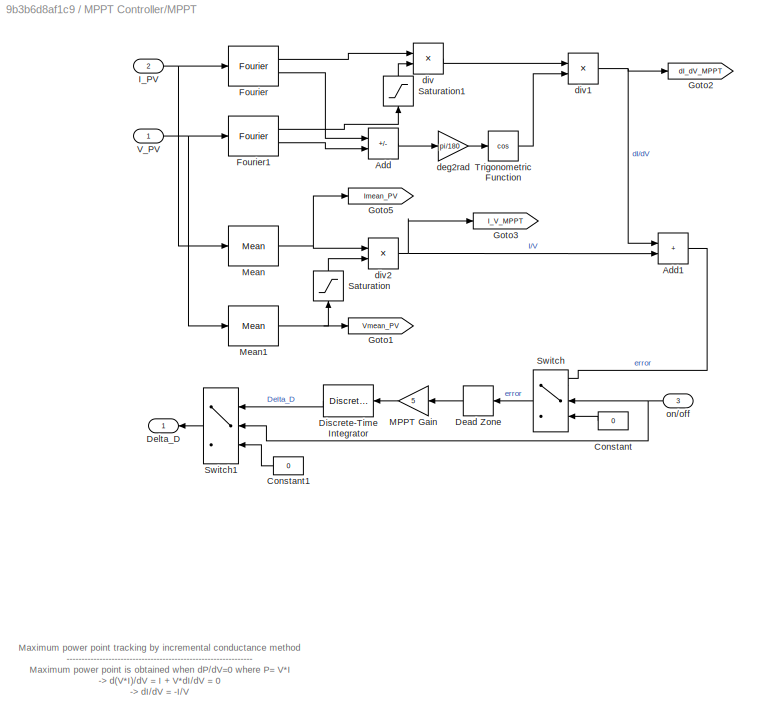
BLOCK [SubSystem] MPPT Controller/MPPT
  Ports = [3, 1]
  RequestExecContextInheritance = off
BLOCK [Sum] MPPT Controller/MPPT/Add
  IconShape = rectangular
  Inputs = +-
  Ports = [2, 1]
BLOCK [Sum] MPPT Controller/MPPT/Add1
  IconShape = rectangular
  Ports = [2, 1]
BLOCK [Constant] MPPT Controller/MPPT/Constant
  NameLocation = top
  Value = 0
BLOCK [Constant] MPPT Controller/MPPT/Constant1
  NameLocation = top
  Value = 0
BLOCK [DeadZone] MPPT Controller/MPPT/Dead Zone
  LowerValue = -0.05
  NameLocation = top
  UpperValue = 0.05
BLOCK [Outport] MPPT Controller/MPPT/Delta_D
  NameLocation = top
  VectorParamsAs1DForOutWhenUnconnected = off
BLOCK [DiscreteIntegrator] MPPT Controller/MPPT/Discrete-Time Integrator
  ICPrevOutput = DiscIntNeverNeededParam
  ICPrevScaledInput = DiscIntNeverNeededParam
  LimitOutput = on
  LowerSaturationLimit = -1
  NameLocation = top
  Ports = [1, 1]
  SampleTime = Ts_Control
  UpperSaturationLimit = 1
BLOCK [Reference] MPPT Controller/MPPT/Fourier  REF=spsFourierLib/Fourier
  Ports = [1, 2]
  SourceBlock = spsFourierLib/Fourier
  SourceProductBaseCode = PS
  SourceType = Fourier
BLOCK [Reference] MPPT Controller/MPPT/Fourier1  REF=spsFourierLib/Fourier
  Ports = [1, 2]
  SourceBlock = spsFourierLib/Fourier
  SourceProductBaseCode = PS
  SourceType = Fourier
BLOCK [Goto] MPPT Controller/MPPT/Goto1
  GotoTag = Vmean_PV
  TagVisibility = global
BLOCK [Goto] MPPT Controller/MPPT/Goto2
  GotoTag = dI_dV_MPPT
  TagVisibility = global
BLOCK [Goto] MPPT Controller/MPPT/Goto3
  GotoTag = I_V_MPPT
  TagVisibility = global
BLOCK [Goto] MPPT Controller/MPPT/Goto5
  GotoTag = Imean_PV
  TagVisibility = global
BLOCK [Inport] MPPT Controller/MPPT/I_PV
  Port = 2
BLOCK [Gain] MPPT Controller/MPPT/MPPT Gain
  Gain = 5
  NameLocation = top
BLOCK [Reference] MPPT Controller/MPPT/Mean  REF=spsMeanLib/Mean
  Ports = [1, 1]
  SourceBlock = spsMeanLib/Mean
  SourceProductBaseCode = PS
  SourceType = Mean
BLOCK [Reference] MPPT Controller/MPPT/Mean1  REF=spsMeanLib/Mean
  Ports = [1, 1]
  SourceBlock = spsMeanLib/Mean
  SourceProductBaseCode = PS
  SourceType = Mean
BLOCK [Saturate] MPPT Controller/MPPT/Saturation
  LowerLimit = eps
  NameLocation = right
  UpperLimit = inf
BLOCK [Saturate] MPPT Controller/MPPT/Saturation1
  LowerLimit = eps
  NameLocation = right
  UpperLimit = inf
BLOCK [Switch] MPPT Controller/MPPT/Switch
  InputSameDT = off
  NameLocation = top
  SaturateOnIntegerOverflow = off
  Threshold = 0.5
BLOCK [Switch] MPPT Controller/MPPT/Switch1
  InputSameDT = off
  NameLocation = top
  SaturateOnIntegerOverflow = off
  Threshold = 0.5
BLOCK [Trigonometry] MPPT Controller/MPPT/Trigonometric Function
  Operator = cos
  Ports = [1, 1]
BLOCK [Inport] MPPT Controller/MPPT/V_PV
BLOCK [Gain] MPPT Controller/MPPT/deg2rad
  Gain = pi/180
BLOCK [Product] MPPT Controller/MPPT/div
  Inputs = */
  Ports = [2, 1]
  RndMeth = Zero
BLOCK [Product] MPPT Controller/MPPT/div1
  Inputs = **
  Ports = [2, 1]
  RndMeth = Zero
BLOCK [Product] MPPT Controller/MPPT/div2
  Inputs = */
  Ports = [2, 1]
  RndMeth = Zero
BLOCK [Inport] MPPT Controller/MPPT/on//off
  NameLocation = top
  Port = 3
BLOCK [Reference] MPPT Controller/PWM Generator (DC-DC)  REF=spsPWMGeneratorDCDCLib/PWM Generator
(DC-DC)
  Ports = [1, 1]
  SourceBlock = spsPWMGeneratorDCDCLib/PWM Generator\n(DC-DC)
  SourceProductBaseCode = PS
  SourceType = PWM Generator (DC-DC)
BLOCK [Outport] MPPT Controller/Pulses
  VectorParamsAs1DForOutWhenUnconnected = off
BLOCK [Saturate] MPPT Controller/Saturation
  LowerLimit = 0
  UpperLimit = 1
BLOCK [Inport] MPPT Controller/V_PV
BLOCK [Mux] Mux
  DisplayOption = bar
  Inputs = 3
  Ports = [3, 1]
BLOCK [Mux] Mux1
  DisplayOption = bar
  Inputs = 3
  Ports = [3, 1]
BLOCK [Mux] Mux3
  DisplayOption = bar
  Inputs = 3
  Ports = [3, 1]
BLOCK [Mux] Mux4
  DisplayOption = bar
  Inputs = 3
  Ports = [3, 1]
BLOCK [Display] P GRID RAMO 2 (kW)
  Decimation = 1
  Format = bank
  Ports = [1]
BLOCK [Display] P GRID RAMO 3 (kW)
  Decimation = 1
  Format = bank
  Ports = [1]
BLOCK [Display] P GRID kW RAMO 1 (kW)
  Decimation = 1
  Ports = [1]
BLOCK [Display] P INVERTER RAMO 1 (kW)
  Decimation = 1
  Ports = [1]
BLOCK [Display] P INVERTER RAMO 2 (kW)
  Decimation = 1
  Format = bank
  Ports = [1]
BLOCK [Display] P INVERTER RAMO 3 (kW)
  Decimation = 1
  Format = bank
  Ports = [1]
BLOCK [Display] P LOAD RAMO 1 (kW)
  Decimation = 1
  Ports = [1]
BLOCK [Display] P LOAD RAMO 2 (kW)
  Decimation = 1
  Format = bank
  Ports = [1]
BLOCK [Display] P LOAD RAMO 3 (kW)
  Decimation = 1
  Format = bank
  Ports = [1]
BLOCK [Scope] P attiva ramo 1
  Floating = off
  NumInputPorts = 1
  Ports = [1]
  ScopeSpecificationString = Simulink.scopes.TimeScopeBlockCfg('CurrentConfiguration', extmgr.ConfigurationSet(extmgr.Configuration('Core','General UI',true),extmgr.Configuration('Core','Source UI',true),extmgr.Configuration('Sources','WiredSimulink',true,'DataLoggingDecimation','100','DataLoggingDecimateData',true,'DataLoggingSaveFormat','Array','DataLoggingVariableName','ScopeData1'),extmgr.Configuration('Visuals','Time Dom...<+1790ch>
BLOCK [Scope] P attiva ramo 2
  Floating = off
  NumInputPorts = 1
  Ports = [1]
  ScopeSpecificationString = Simulink.scopes.TimeScopeBlockCfg('CurrentConfiguration', extmgr.ConfigurationSet(extmgr.Configuration('Core','General UI',true),extmgr.Configuration('Core','Source UI',true),extmgr.Configuration('Sources','WiredSimulink',true,'DataLoggingDecimation','100','DataLoggingDecimateData',true,'DataLoggingSaveFormat','Array','DataLoggingVariableName','ScopeData1'),extmgr.Configuration('Visuals','Time Dom...<+1791ch>
BLOCK [Scope] P attiva ramo 3
  Floating = off
  NumInputPorts = 1
  Ports = [1]
  ScopeSpecificationString = Simulink.scopes.TimeScopeBlockCfg('CurrentConfiguration', extmgr.ConfigurationSet(extmgr.Configuration('Core','General UI',true),extmgr.Configuration('Core','Source UI',true),extmgr.Configuration('Sources','WiredSimulink',true,'DataLoggingDecimation','100','DataLoggingDecimateData',true,'DataLoggingSaveFormat','Array','DataLoggingVariableName','ScopeData2'),extmgr.Configuration('Visuals','Time Dom...<+1724ch>
BLOCK [Gain] P from grid ramo 1
  Gain = 1/1000
BLOCK [Gain] P from grid ramo 2
  Gain = 1/1000
BLOCK [Gain] P from grid ramo 3
  Gain = 1/1000
BLOCK [Gain] P from grid1
  Gain = 1/1000
BLOCK [Gain] P from grid2
  Gain = -1
BLOCK [Gain] P from inverter ramo 1
  Gain = 1/1000
BLOCK [Gain] P from inverter ramo 2
  Gain = 1/1000
BLOCK [Gain] P from inverter ramo 3
  Gain = 1/1000
BLOCK [Display] P inverter1(kW)
  Decimation = 2000
  Format = bank
  Ports = [1]
BLOCK [Display] P inverter2(kW)
  Decimation = 2000
  Format = bank
  Ports = [1]
BLOCK [Display] P trasformatore1(kW)
  Decimation = 2000
  Format = bank
  Ports = [1]
BLOCK [Display] P trasformatore2(kW)
  Decimation = 2000
  Format = bank
  Ports = [1]
BLOCK [Scope] PV
  Floating = off
  NumInputPorts = 5
  Ports = [5]
  ScopeSpecificationString = Simulink.scopes.TimeScopeBlockCfg('CurrentConfiguration', extmgr.ConfigurationSet(extmgr.Configuration('Core','General UI',true),extmgr.Configuration('Core','Source UI',true),extmgr.Configuration('Sources','WiredSimulink',true,'DataLoggingDecimation','100','DataLoggingDecimateData',true,'DataLoggingSaveFormat','Array'),extmgr.Configuration('Visuals','Time Domain',true,'SerializedDisplays',{struct(...<+4409ch>
BLOCK [Scope] P_Inv1
  Floating = off
  NumInputPorts = 1
  Ports = [1]
  ScopeSpecificationString = Simulink.scopes.TimeScopeBlockCfg('CurrentConfiguration', extmgr.ConfigurationSet(extmgr.Configuration('Core','General UI',true),extmgr.Configuration('Core','Source UI',true),extmgr.Configuration('Sources','WiredSimulink',true,'DataLoggingDecimation','100','DataLoggingDecimateData',true,'DataLoggingSaveFormat','Array','DataLoggingVariableName','ScopeData1'),extmgr.Configuration('Visuals','Time Dom...<+1714ch>
BLOCK [Scope] P_Inv2
  Floating = off
  NumInputPorts = 1
  Ports = [1]
  ScopeSpecificationString = Simulink.scopes.TimeScopeBlockCfg('CurrentConfiguration', extmgr.ConfigurationSet(extmgr.Configuration('Core','General UI',true),extmgr.Configuration('Core','Source UI',true),extmgr.Configuration('Sources','WiredSimulink',true,'DataLoggingDecimation','100','DataLoggingDecimateData',true,'DataLoggingSaveFormat','Array','DataLoggingVariableName','ScopeData2'),extmgr.Configuration('Visuals','Time Dom...<+1711ch>
BLOCK [Scope] P_trasf1
  Floating = off
  NumInputPorts = 1
  Ports = [1]
  ScopeSpecificationString = Simulink.scopes.TimeScopeBlockCfg('CurrentConfiguration', extmgr.ConfigurationSet(extmgr.Configuration('Core','General UI',true),extmgr.Configuration('Core','Source UI',true),extmgr.Configuration('Sources','WiredSimulink',true,'DataLoggingDecimation','100','DataLoggingDecimateData',true,'DataLoggingSaveFormat','Array'),extmgr.Configuration('Visuals','Time Domain',true,'SerializedDisplays',{struct(...<+1676ch>
BLOCK [Scope] P_trasf2
  Floating = off
  NumInputPorts = 1
  Ports = [1]
  ScopeSpecificationString = Simulink.scopes.TimeScopeBlockCfg('CurrentConfiguration', extmgr.ConfigurationSet(extmgr.Configuration('Core','General UI',true),extmgr.Configuration('Core','Source UI',true),extmgr.Configuration('Sources','WiredSimulink',true,'DataLoggingDecimation','100','DataLoggingDecimateData',true,'DataLoggingSaveFormat','Array','DataLoggingVariableName','ScopeData3'),extmgr.Configuration('Visuals','Time Dom...<+1721ch>
BLOCK [SubSystem] Pmean
  Ports = [0, 2]
  RequestExecContextInheritance = off
BLOCK [From] Pmean/From7
  GotoTag = Vmean_PV
  TagVisibility = global
BLOCK [From] Pmean/From8
  GotoTag = Imean_PV
  TagVisibility = global
BLOCK [Outport] Pmean/P
  VectorParamsAs1DForOutWhenUnconnected = off
BLOCK [Product] Pmean/Product
  Ports = [2, 1]
  RndMeth = Zero
BLOCK [Outport] Pmean/V
  Port = 2
  VectorParamsAs1DForOutWhenUnconnected = off
BLOCK [Gain] Pmean/WkW
  Gain = 1/1000
BLOCK [Scope] Potenza Attiva
  Floating = off
  NumInputPorts = 1
  Ports = [1]
  ScopeSpecificationString = Simulink.scopes.TimeScopeBlockCfg('CurrentConfiguration', extmgr.ConfigurationSet(extmgr.Configuration('Core','General UI',true),extmgr.Configuration('Core','Source UI',true),extmgr.Configuration('Sources','WiredSimulink',true,'DataLoggingDecimation','100','DataLoggingDecimateData',true,'DataLoggingSaveFormat','Array','DataLoggingVariableName','ScopeData1'),extmgr.Configuration('Visuals','Time Dom...<+1742ch>
BLOCK [Reference] Power from the grid  REF=spsPowerPositiveSequenceLib/Power
(Positive-Sequence)
  Ports = [2, 2]
  SourceBlock = spsPowerPositiveSequenceLib/Power\n(Positive-Sequence)
  SourceProductBaseCode = PS
  SourceType = Power (Positive-Sequence)
BLOCK [Reference] Power from the grid1  REF=eePowerMeasurement/Power
Measurement
  Ports = [2, 2]
  SourceBlock = eePowerMeasurement/Power\nMeasurement
  SourceProductBaseCode = PS
  SourceType = Power Measurement
BLOCK [Reference] Power from the grid2  REF=eePowerMeasurement/Power
Measurement
  Ports = [2, 2]
  SourceBlock = eePowerMeasurement/Power\nMeasurement
  SourceProductBaseCode = PS
  SourceType = Power Measurement
BLOCK [Reference] Power from the inverter 1  REF=spsPowerPositiveSequenceLib/Power
(Positive-Sequence)
  Ports = [2, 2]
  SourceBlock = spsPowerPositiveSequenceLib/Power\n(Positive-Sequence)
  SourceProductBaseCode = PS
  SourceType = Power (Positive-Sequence)
BLOCK [Reference] Power from the inverter 2  REF=eePowerMeasurement/Power
Measurement
  Ports = [2, 2]
  SourceBlock = eePowerMeasurement/Power\nMeasurement
  SourceProductBaseCode = PS
  SourceType = Power Measurement
BLOCK [Reference] Power from the inverter 3  REF=eePowerMeasurement/Power
Measurement
  Ports = [2, 2]
  SourceBlock = eePowerMeasurement/Power\nMeasurement
  SourceProductBaseCode = PS
  SourceType = Power Measurement
BLOCK [Reference] Power to the load 1  REF=spsPowerPositiveSequenceLib/Power
(Positive-Sequence)
  Ports = [2, 2]
  SourceBlock = spsPowerPositiveSequenceLib/Power\n(Positive-Sequence)
  SourceProductBaseCode = PS
  SourceType = Power (Positive-Sequence)
BLOCK [Reference] Power to the load ramo 1   REF=spsPowerPositiveSequenceLib/Power
(Positive-Sequence)
  Ports = [2, 2]
  SourceBlock = spsPowerPositiveSequenceLib/Power\n(Positive-Sequence)
  SourceProductBaseCode = PS
  SourceType = Power (Positive-Sequence)
BLOCK [Reference] Power to the load ramo 2  REF=eePowerMeasurement/Power
Measurement
  Ports = [2, 2]
  SourceBlock = eePowerMeasurement/Power\nMeasurement
  SourceProductBaseCode = PS
  SourceType = Power Measurement
BLOCK [Reference] Power to the load ramo 3  REF=eePowerMeasurement/Power
Measurement
  Ports = [2, 2]
  SourceBlock = eePowerMeasurement/Power\nMeasurement
  SourceProductBaseCode = PS
  SourceType = Power Measurement
BLOCK [Display] Ppv (kW) 
  Decimation = 2000
  Format = bank
  Ports = [1]
BLOCK [Product] Product1
  Ports = [2, 1]
  RndMeth = Zero
BLOCK [Product] Product2
  NameLocation = left
  Ports = [2, 1]
  RndMeth = Zero
BLOCK [Product] Product3
  Ports = [2, 1]
  RndMeth = Zero
BLOCK [Product] Product4
  Ports = [2, 1]
  RndMeth = Zero
BLOCK [Product] Product5
  Ports = [2, 1]
  RndMeth = Zero
BLOCK [Reference] RL1  REF=spsSeriesRLCBranchLib/Series RLC Branch
  NameLocation = top
  Ports = [0, 0, 0, 0, 0, 1, 1]
  SourceBlock = spsSeriesRLCBranchLib/Series RLC Branch
  SourceProductBaseCode = PS
  SourceType = Series RLC Branch
BLOCK [Reference] RL2  REF=spsSeriesRLCBranchLib/Series RLC Branch
  NameLocation = top
  Ports = [0, 0, 0, 0, 0, 1, 1]
  SourceBlock = spsSeriesRLCBranchLib/Series RLC Branch
  SourceProductBaseCode = PS
  SourceType = Series RLC Branch
BLOCK [Saturate] Saturation
  LowerLimit = 5
  UpperLimit = inf
BLOCK [Saturate] Saturation1
  LowerLimit = 0
  UpperLimit = 10
BLOCK [Saturate] Saturation2
  LowerLimit = 0
  UpperLimit = 6
BLOCK [Saturate] Saturation3
  LowerLimit = 0
  UpperLimit = 3
BLOCK [SubSystem] Subsystem
  PortSchema = {"entries":[{"content":{"sides":[{"content":{"connectorIds":["LConn1","LConn2"]},"type":"ConnectorPlacement.EquallySpacedRectSide","uuid":"3e835128-e9bc-4b38-99ef-503abca9e331"},{"content":{"connectorIds":["RConn1","RConn2"],"side":"RIGHT"},"type":"ConnectorPlacement.EquallySpacedRectSide","uuid":"e2d512d1-2b93-42a3-a0d9-5f9788cc5947"},{"content":{"connectorIds":["In1"],"side":"TOP"},"type":"Conne...<+268ch>
  Ports = [1, 0, 0, 0, 0, 2, 2]
  RequestExecContextInheritance = off
BLOCK [PMIOPort] Subsystem/+
  Side = Left
BLOCK [PMIOPort] Subsystem/+'
  Port = 3
  Side = Right
BLOCK [PMIOPort] Subsystem/-
  NameLocation = top
  Port = 2
  Side = Left
BLOCK [PMIOPort] Subsystem/-'
  Port = 4
  Side = Right
BLOCK [Reference] Subsystem/C3  REF=spsSeriesRLCBranchLib/Series RLC Branch
  AttributesFormatString = \n
  NameLocation = left
  Ports = [0, 0, 0, 0, 0, 1, 1]
  SourceBlock = spsSeriesRLCBranchLib/Series RLC Branch
  SourceProductBaseCode = PS
  SourceType = Series RLC Branch
BLOCK [Reference] Subsystem/Diode1  REF=spsDiodeLib/Diode
  Ports = [0, 0, 0, 0, 0, 1, 1]
  SourceBlock = spsDiodeLib/Diode
  SourceProductBaseCode = PS
  SourceType = Diode
BLOCK [Reference] Subsystem/IGBT1  REF=spsIGBTLib/IGBT
  NameLocation = left
  Ports = [1, 0, 0, 0, 0, 1, 1]
  SourceBlock = spsIGBTLib/IGBT
  SourceProductBaseCode = PS
  SourceType = IGBT
BLOCK [Reference] Subsystem/L1  REF=spsSeriesRLCBranchLib/Series RLC Branch
  Ports = [0, 0, 0, 0, 0, 1, 1]
  SourceBlock = spsSeriesRLCBranchLib/Series RLC Branch
  SourceProductBaseCode = PS
  SourceType = Series RLC Branch
BLOCK [Inport] Subsystem/g
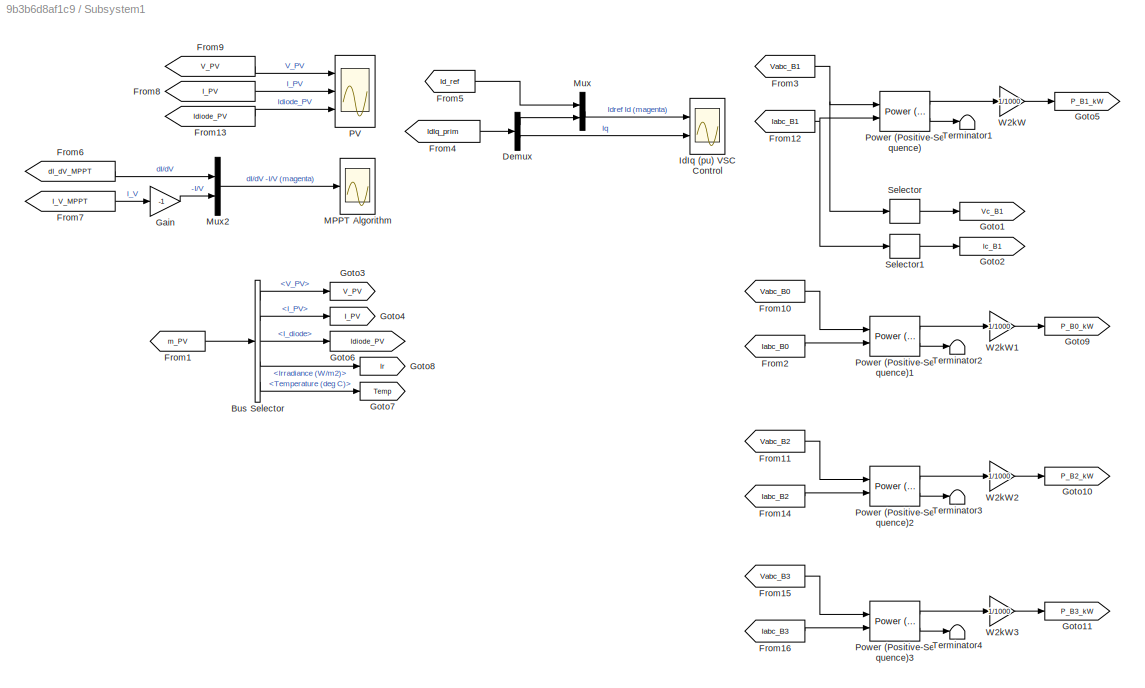
BLOCK [SubSystem] Subsystem1
  NameLocation = top
  Ports = []
  RequestExecContextInheritance = off
BLOCK [BusSelector] Subsystem1/Bus Selector
  OutputSignals = V_PV,I_PV,I_diode,Irradiance (W/m2),Temperature (deg C)
  Ports = [1, 5]
BLOCK [Demux] Subsystem1/Demux
  Outputs = 2
  Ports = [1, 2]
BLOCK [From] Subsystem1/From1
  GotoTag = m_PV
  TagVisibility = global
BLOCK [From] Subsystem1/From10
  CloseFcn = tagdialog Close
  GotoTag = Vabc_B0
  TagVisibility = global
BLOCK [From] Subsystem1/From11
  CloseFcn = tagdialog Close
  GotoTag = Vabc_B2
  TagVisibility = global
BLOCK [From] Subsystem1/From12
  CloseFcn = tagdialog Close
  GotoTag = Iabc_B1
  TagVisibility = global
BLOCK [From] Subsystem1/From13
  GotoTag = Idiode_PV
  TagVisibility = global
BLOCK [From] Subsystem1/From14
  CloseFcn = tagdialog Close
  GotoTag = Iabc_B2
  TagVisibility = global
BLOCK [From] Subsystem1/From15
  CloseFcn = tagdialog Close
  GotoTag = Vabc_B3
  TagVisibility = global
BLOCK [From] Subsystem1/From16
  CloseFcn = tagdialog Close
  GotoTag = Iabc_B3
  TagVisibility = global
BLOCK [From] Subsystem1/From2
  CloseFcn = tagdialog Close
  GotoTag = Iabc_B0
  TagVisibility = global
BLOCK [From] Subsystem1/From3
  CloseFcn = tagdialog Close
  GotoTag = Vabc_B1
  TagVisibility = global
BLOCK [From] Subsystem1/From4
  CloseFcn = tagdialog Close
  GotoTag = IdIq_prim
  TagVisibility = global
BLOCK [From] Subsystem1/From5
  CloseFcn = tagdialog Close
  GotoTag = Id_ref
  TagVisibility = global
BLOCK [From] Subsystem1/From6
  GotoTag = dI_dV_MPPT
  TagVisibility = global
BLOCK [From] Subsystem1/From7
  GotoTag = I_V_MPPT
  TagVisibility = global
BLOCK [From] Subsystem1/From8
  GotoTag = I_PV
  TagVisibility = global
BLOCK [From] Subsystem1/From9
  GotoTag = V_PV
  TagVisibility = global
BLOCK [Gain] Subsystem1/Gain
  Gain = -1
BLOCK [Goto] Subsystem1/Goto1
  GotoTag = Vc_B1
  TagVisibility = global
BLOCK [Goto] Subsystem1/Goto10
  GotoTag = P_B2_kW
  TagVisibility = global
BLOCK [Goto] Subsystem1/Goto11
  GotoTag = P_B3_kW
  TagVisibility = global
BLOCK [Goto] Subsystem1/Goto2
  GotoTag = Ic_B1
  TagVisibility = global
BLOCK [Goto] Subsystem1/Goto3
  GotoTag = V_PV
  TagVisibility = global
BLOCK [Goto] Subsystem1/Goto4
  GotoTag = I_PV
  TagVisibility = global
BLOCK [Goto] Subsystem1/Goto5
  GotoTag = P_B1_kW
  TagVisibility = global
BLOCK [Goto] Subsystem1/Goto6
  GotoTag = Idiode_PV
  TagVisibility = global
BLOCK [Goto] Subsystem1/Goto7
  GotoTag = Temp
  TagVisibility = global
BLOCK [Goto] Subsystem1/Goto8
  GotoTag = Ir
  TagVisibility = global
BLOCK [Goto] Subsystem1/Goto9
  GotoTag = P_B0_kW
  TagVisibility = global
BLOCK [Scope] Subsystem1/IdIq (pu) VSC Control
  Floating = off
  NumInputPorts = 2
  Ports = [2]
  ScopeSpecificationString = Simulink.scopes.TimeScopeBlockCfg('CurrentConfiguration', extmgr.ConfigurationSet(extmgr.Configuration('Core','General UI',true),extmgr.Configuration('Core','Source UI',true),extmgr.Configuration('Sources','WiredSimulink',true,'DataLoggingDecimation','100','DataLoggingDecimateData',true,'DataLoggingSaveFormat','Array'),extmgr.Configuration('Visuals','Time Domain',true,'SerializedDisplays',{struct(...<+2360ch>
BLOCK [Scope] Subsystem1/MPPT Algorithm
  Floating = off
  NumInputPorts = 1
  Ports = [1]
  ScopeSpecificationString = Simulink.scopes.TimeScopeBlockCfg('CurrentConfiguration', extmgr.ConfigurationSet(extmgr.Configuration('Core','General UI',true),extmgr.Configuration('Core','Source UI',true),extmgr.Configuration('Sources','WiredSimulink',true,'DataLoggingDecimation','100','DataLoggingDecimateData',true,'DataLoggingSaveFormat','Array'),extmgr.Configuration('Visuals','Time Domain',true,'SerializedDisplays',{struct(...<+1690ch>
BLOCK [Mux] Subsystem1/Mux
  DisplayOption = bar
  Inputs = 2
  Ports = [2, 1]
BLOCK [Mux] Subsystem1/Mux2
  DisplayOption = bar
  Inputs = 2
  Ports = [2, 1]
BLOCK [Scope] Subsystem1/PV
  Floating = off
  NumInputPorts = 3
  Ports = [3]
  ScopeSpecificationString = C++SS(StrPVP('Location','[188, 365, 635, 838]'),StrPVP('Open','off'),MxPVP('AxesTitles',54,'struct(''axes1'',''%<SignalLabel>'',''axes2'',''%<SignalLabel>'',''axes3'',''%<SignalLabel>'')'),MxPVP('ScopeGraphics',57,'struct(''FigureColor'',''[0.5 0.5 0.5]'',''AxesColor'',''[0 0 0]'',''AxesTickColor'',''[1 1 1]'',''LineColors'',''[1 1 0;1 0 1;0 1 1;1 0 0;0 1 0;0 0 1]'',''LineStyles'',''-|-|-|-|-|-'',...<+353ch>
BLOCK [Reference] Subsystem1/Power (Positive-Sequence)  REF=spsPowerPositiveSequenceLib/Power
(Positive-Sequence)
  Ports = [2, 2]
  SourceBlock = spsPowerPositiveSequenceLib/Power\n(Positive-Sequence)
  SourceProductBaseCode = PS
  SourceType = Power (Positive-Sequence)
BLOCK [Reference] Subsystem1/Power (Positive-Sequence)1  REF=spsPowerPositiveSequenceLib/Power
(Positive-Sequence)
  Ports = [2, 2]
  SourceBlock = spsPowerPositiveSequenceLib/Power\n(Positive-Sequence)
  SourceProductBaseCode = PS
  SourceType = Power (Positive-Sequence)
BLOCK [Reference] Subsystem1/Power (Positive-Sequence)2  REF=spsPowerPositiveSequenceLib/Power
(Positive-Sequence)
  Ports = [2, 2]
  SourceBlock = spsPowerPositiveSequenceLib/Power\n(Positive-Sequence)
  SourceProductBaseCode = PS
  SourceType = Power (Positive-Sequence)
BLOCK [Reference] Subsystem1/Power (Positive-Sequence)3  REF=spsPowerPositiveSequenceLib/Power
(Positive-Sequence)
  Ports = [2, 2]
  SourceBlock = spsPowerPositiveSequenceLib/Power\n(Positive-Sequence)
  SourceProductBaseCode = PS
  SourceType = Power (Positive-Sequence)
BLOCK [Selector] Subsystem1/Selector
  IndexOptions = Index vector (dialog)
  Indices = [3]
  InputPortWidth = 3
  OutputSizes = 1
  Ports = [1, 1]
BLOCK [Selector] Subsystem1/Selector1
  IndexOptions = Index vector (dialog)
  Indices = [3]
  InputPortWidth = 3
  OutputSizes = 1
  Ports = [1, 1]
BLOCK [Terminator] Subsystem1/Terminator1
  NameLocation = top
BLOCK [Terminator] Subsystem1/Terminator2
  NameLocation = top
BLOCK [Terminator] Subsystem1/Terminator3
  NameLocation = top
BLOCK [Terminator] Subsystem1/Terminator4
  NameLocation = top
BLOCK [Gain] Subsystem1/W2kW
  Gain = 1/1000
BLOCK [Gain] Subsystem1/W2kW1
  Gain = 1/1000
BLOCK [Gain] Subsystem1/W2kW2
  Gain = 1/1000
BLOCK [Gain] Subsystem1/W2kW3
  Gain = 1/1000
BLOCK [SubSystem] Subsystem2
  Ports = [0, 2]
  RequestExecContextInheritance = off
BLOCK [From] Subsystem2/From7
  CloseFcn = tagdialog Close
  GotoTag = Vdc
  TagVisibility = global
BLOCK [From] Subsystem2/From8
  CloseFcn = tagdialog Close
  GotoTag = Vdc_ref
  TagVisibility = global
BLOCK [Reference] Subsystem2/Mean  REF=spsMeanLib/Mean
  Ports = [1, 1]
  SourceBlock = spsMeanLib/Mean
  SourceProductBaseCode = PS
  SourceType = Mean
BLOCK [Mux] Subsystem2/Mux1
  DisplayOption = bar
  Inputs = 2
  Ports = [2, 1]
BLOCK [Outport] Subsystem2/Vm
  VectorParamsAs1DForOutWhenUnconnected = off
BLOCK [Outport] Subsystem2/VrVm
  Port = 2
  VectorParamsAs1DForOutWhenUnconnected = off
BLOCK [SubSystem] Subsystem3
  PortSchema = {"entries":[{"content":{"sides":[{"content":{"connectorIds":["Out1"]},"type":"ConnectorPlacement.EquallySpacedRectSide","uuid":"68e7d602-4857-4e8c-a67c-1310801dcc61"},{"content":{"connectorIds":["RConn1","RConn2"],"side":"RIGHT"},"type":"ConnectorPlacement.EquallySpacedRectSide","uuid":"62fc7201-c46d-4754-9ff1-5573421867bb"},{"content":{"connectorIds":[],"side":"TOP"},"type":"ConnectorPlacement.Eq...<+252ch>
  Ports = [0, 1, 0, 0, 0, 0, 2]
  RequestExecContextInheritance = off
BLOCK [PMIOPort] Subsystem3/+
  Side = Right
BLOCK [PMIOPort] Subsystem3/-
  Port = 2
  Side = Right
BLOCK [Display] Subsystem3/Irradiance (W//m^2)
  Decimation = 1000
  Format = bank
  Ports = [1]
BLOCK [Reference] Subsystem3/PV Array  REF=spsPVArrayLib/PV Array
  Ports = [2, 1, 0, 0, 0, 0, 2]
  SourceBlock = spsPVArrayLib/PV Array
  SourceProductBaseCode = PS
  SourceType = PV array
BLOCK [SubSystem] Subsystem3/Signal Builder
  ClipboardFcn = sigbuilder_block('clipboard');
  CloseFcn = sigbuilder_block('close');
  Commented = on
  ContinueFcn = sigbuilder_block('continue');
  CopyFcn = sigbuilder_block('copy');
  DeleteFcn = sigbuilder_block('delete');
  LoadFcn = sigbuilder_block('load');
  MaskHideContents = on
  ModelCloseFcn = sigbuilder_block('modelClose');
  NameChangeFcn = sigbuilder_block('namechange');
  OpenFcn = sigbuilder_block('open',[6 6 1012.5 507 ]);
  PauseFcn = sigbuilder_block('pause');
  Ports = [0, 1]
  PreSaveFcn = sigbuilder_block('preSave');
  RequestExecContextInheritance = off
  StartFcn = sigbuilder_block('start');
  StopFcn = sigbuilder_block('stop');
  Tag = STV Subsys
BLOCK [Demux] Subsystem3/Signal Builder/Demux
  DisplayOption = none
  Outputs = 1
  Ports = [1, 1]
  Tag = STV Demux
BLOCK [FromWorkspace] Subsystem3/Signal Builder/FromWs
  Tag = STV FromWs
  VariableName = tuvar
BLOCK [Outport] Subsystem3/Signal Builder/Variable
  Tag = STV Outport
  VectorParamsAs1DForOutWhenUnconnected = off
BLOCK [SubSystem] Subsystem3/Signal Builder1
  ClipboardFcn = sigbuilder_block('clipboard');
  CloseFcn = sigbuilder_block('close');
  Commented = on
  ContinueFcn = sigbuilder_block('continue');
  CopyFcn = sigbuilder_block('copy');
  DeleteFcn = sigbuilder_block('delete');
  LoadFcn = sigbuilder_block('load');
  MaskHideContents = on
  ModelCloseFcn = sigbuilder_block('modelClose');
  NameChangeFcn = sigbuilder_block('namechange');
  OpenFcn = sigbuilder_block('open',[6 6 1012.5 507 ]);
  PauseFcn = sigbuilder_block('pause');
  Ports = [0, 1]
  PreSaveFcn = sigbuilder_block('preSave');
  RequestExecContextInheritance = off
  StartFcn = sigbuilder_block('start');
  StopFcn = sigbuilder_block('stop');
  Tag = STV Subsys
BLOCK [Demux] Subsystem3/Signal Builder1/Demux
  DisplayOption = none
  Outputs = 1
  Ports = [1, 1]
  Tag = STV Demux
BLOCK [FromWorkspace] Subsystem3/Signal Builder1/FromWs
  Tag = STV FromWs
  VariableName = tuvar
BLOCK [Outport] Subsystem3/Signal Builder1/Variable
  Tag = STV Outport
  VectorParamsAs1DForOutWhenUnconnected = off
BLOCK [SubSystem] Subsystem3/Signal Builder2
  ClipboardFcn = sigbuilder_block('clipboard');
  CloseFcn = sigbuilder_block('close');
  ContinueFcn = sigbuilder_block('continue');
  CopyFcn = sigbuilder_block('copy');
  DeleteFcn = sigbuilder_block('delete');
  LoadFcn = sigbuilder_block('load');
  MaskHideContents = on
  ModelCloseFcn = sigbuilder_block('modelClose');
  NameChangeFcn = sigbuilder_block('namechange');
  OpenFcn = sigbuilder_block('open',[6 6 1012.5 507 ]);
  PauseFcn = sigbuilder_block('pause');
  Ports = [0, 1]
  PreSaveFcn = sigbuilder_block('preSave');
  RequestExecContextInheritance = off
  StartFcn = sigbuilder_block('start');
  StopFcn = sigbuilder_block('stop');
  Tag = STV Subsys
BLOCK [Demux] Subsystem3/Signal Builder2/Demux
  DisplayOption = none
  Outputs = 1
  Ports = [1, 1]
  Tag = STV Demux
BLOCK [FromWorkspace] Subsystem3/Signal Builder2/FromWs
  Tag = STV FromWs
  VariableName = tuvar
BLOCK [Outport] Subsystem3/Signal Builder2/Variable
  Tag = STV Outport
  VectorParamsAs1DForOutWhenUnconnected = off
BLOCK [Sum] Subsystem3/Sum
  Inputs = |+++
  NameLocation = top
  Ports = [3, 1]
BLOCK [Constant] Subsystem3/Temperature
  Value = 25
BLOCK [Outport] Subsystem3/m
  NameLocation = top
BLOCK [Reference] TR_10 kVA   REF=spsThreePhaseTransformerTwoWindingsLib/Three-Phase
Transformer
(Two Windings)
  AttributesFormatString = \n
  Ports = [0, 0, 0, 0, 0, 3, 3]
  SourceBlock = spsThreePhaseTransformerTwoWindingsLib/Three-Phase\nTransformer\n(Two Windings)
  SourceProductBaseCode = PS
  SourceType = Three-Phase Transformer (Two Windings)
BLOCK [Reference] TR_3kVA  REF=spsLinearTransformerLib/Linear Transformer
  Ports = [0, 0, 0, 0, 0, 2, 2]
  SourceBlock = spsLinearTransformerLib/Linear Transformer
  SourceProductBaseCode = PS
  SourceType = Linear Transformer
BLOCK [Reference] TR_6kVA  REF=spsLinearTransformerLib/Linear Transformer
  Ports = [0, 0, 0, 0, 0, 2, 2]
  SourceBlock = spsLinearTransformerLib/Linear Transformer
  SourceProductBaseCode = PS
  SourceType = Linear Transformer
BLOCK [Reference] TR_bn (30kVA)  REF=spsThreePhaseTransformerTwoWindingsLib/Three-Phase
Transformer
(Two Windings)
  AttributesFormatString = \n
  Ports = [0, 0, 0, 0, 0, 3, 3]
  SourceBlock = spsThreePhaseTransformerTwoWindingsLib/Three-Phase\nTransformer\n(Two Windings)
  SourceProductBaseCode = PS
  SourceType = Three-Phase Transformer (Two Windings)
BLOCK [Reference] TR_bn1 (100kVA)  REF=spsThreePhaseTransformerTwoWindingsLib/Three-Phase
Transformer
(Two Windings)
  AttributesFormatString = \n
  Ports = [0, 0, 0, 0, 0, 3, 3]
  SourceBlock = spsThreePhaseTransformerTwoWindingsLib/Three-Phase\nTransformer\n(Two Windings)
  SourceProductBaseCode = PS
  SourceType = Three-Phase Transformer (Two Windings)
BLOCK [Terminator] Terminator1
  NameLocation = top
BLOCK [Terminator] Terminator10
  NameLocation = top
BLOCK [Terminator] Terminator2
  NameLocation = top
BLOCK [Terminator] Terminator3
  NameLocation = top
BLOCK [Terminator] Terminator4
  NameLocation = top
BLOCK [Terminator] Terminator5
  NameLocation = top
BLOCK [Terminator] Terminator6
  NameLocation = top
BLOCK [Terminator] Terminator7
  NameLocation = top
BLOCK [Terminator] Terminator8
  NameLocation = top
BLOCK [Terminator] Terminator9
  NameLocation = top
BLOCK [Scope] VSC
  Floating = off
  NumInputPorts = 2
  Ports = [2]
  ScopeSpecificationString = Simulink.scopes.TimeScopeBlockCfg('CurrentConfiguration', extmgr.ConfigurationSet(extmgr.Configuration('Core','General UI',true),extmgr.Configuration('Core','Source UI',true),extmgr.Configuration('Sources','WiredSimulink',true,'DataLoggingDecimation','100','DataLoggingDecimateData',true,'DataLoggingSaveFormat','Array'),extmgr.Configuration('Visuals','Time Domain',true,'SerializedDisplays',{struct(...<+2311ch>
BLOCK [Scope] Vab_VSC
  Floating = off
  NumInputPorts = 1
  Ports = [1]
  ScopeSpecificationString = Simulink.scopes.TimeScopeBlockCfg('CurrentConfiguration', extmgr.ConfigurationSet(extmgr.Configuration('Core','General UI',true),extmgr.Configuration('Core','Source UI',true),extmgr.Configuration('Sources','WiredSimulink',true,'DataLoggingDecimation','10','DataLoggingDecimateData',true,'DataLoggingSaveFormat','Array'),extmgr.Configuration('Visuals','Time Domain',true,'SerializedDisplays',{struct('...<+1685ch>
BLOCK [Reference] Vdc   REF=spsVoltageMeasurementLib/Voltage Measurement
  AttributesFormatString = \n
  NameLocation = top
  Ports = [0, 1, 0, 0, 0, 2]
  SourceBlock = spsVoltageMeasurementLib/Voltage Measurement
  SourceProductBaseCode = PS
  SourceType = Voltage Measurement
  Tag = PoWeRsYsTeMmEaSuReMeNt
BLOCK [Reference] Vdc 1  REF=spsVoltageMeasurementLib/Voltage Measurement
  AttributesFormatString = \n
  NameLocation = top
  Ports = [0, 1, 0, 0, 0, 2]
  SourceBlock = spsVoltageMeasurementLib/Voltage Measurement
  SourceProductBaseCode = PS
  SourceType = Voltage Measurement
  Tag = PoWeRsYsTeMmEaSuReMeNt
BLOCK [Display] Vdc Boost
  Decimation = 2000
  Format = bank
  Ports = [1]
BLOCK [Display] Vdc Inverter
  Decimation = 2000
  Format = bank
  Ports = [1]
BLOCK [SubSystem] mes1
  PortSchema = {"entries":[{"content":{"sides":[{"content":{"connectorIds":["LConn1","LConn2"]},"type":"ConnectorPlacement.EquallySpacedRectSide","uuid":"063d70f7-53e6-4b16-b677-e8cc0b373f72"},{"content":{"connectorIds":["RConn1","RConn2"],"side":"RIGHT"},"type":"ConnectorPlacement.EquallySpacedRectSide","uuid":"e5801cd5-69d1-49e6-883b-eb22ff99f49e"},{"content":{"connectorIds":[],"side":"TOP"},"type":"ConnectorP...<+420ch>  <repeated x4 — deduplicated; at blocks: mes1, mes2, mes5, mes6>
  Ports = [0, 2, 0, 0, 0, 2, 2]
  RequestExecContextInheritance = off
BLOCK [Reference] mes1/Current Measurement3  REF=spsCurrentMeasurementLib/Current Measurement
  Ports = [0, 1, 0, 0, 0, 1, 1]
  SourceBlock = spsCurrentMeasurementLib/Current Measurement
  SourceProductBaseCode = PS
  SourceType = Current Measurement
  UserDataPersistent = on
BLOCK [PMIOPort] mes1/F
  Side = Left
BLOCK [PMIOPort] mes1/F'
  Port = 3
  Side = Right
BLOCK [PMIOPort] mes1/N
  Port = 2
  Side = Left
BLOCK [PMIOPort] mes1/N'
  Port = 4
  Side = Right
BLOCK [Reference] mes1/Voltage Measurement3  REF=spsVoltageMeasurementLib/Voltage Measurement
  Ports = [0, 1, 0, 0, 0, 2]
  SourceBlock = spsVoltageMeasurementLib/Voltage Measurement
  SourceProductBaseCode = PS
  SourceType = Voltage Measurement
  UserDataPersistent = on
BLOCK [Outport] mes1/i
BLOCK [Outport] mes1/v
  Port = 2
BLOCK [SubSystem] mes2
  Ports = [0, 2, 0, 0, 0, 2, 2]
  RequestExecContextInheritance = off
BLOCK [Reference] mes2/Current Measurement3  REF=spsCurrentMeasurementLib/Current Measurement
  Ports = [0, 1, 0, 0, 0, 1, 1]
  SourceBlock = spsCurrentMeasurementLib/Current Measurement
  SourceProductBaseCode = PS
  SourceType = Current Measurement
  UserDataPersistent = on
BLOCK [PMIOPort] mes2/F
  Side = Left
BLOCK [PMIOPort] mes2/F'
  Port = 3
  Side = Right
BLOCK [PMIOPort] mes2/N
  Port = 2
  Side = Left
BLOCK [PMIOPort] mes2/N'
  Port = 4
  Side = Right
BLOCK [Reference] mes2/Voltage Measurement3  REF=spsVoltageMeasurementLib/Voltage Measurement
  Ports = [0, 1, 0, 0, 0, 2]
  SourceBlock = spsVoltageMeasurementLib/Voltage Measurement
  SourceProductBaseCode = PS
  SourceType = Voltage Measurement
  UserDataPersistent = on
BLOCK [Outport] mes2/i
  Port = 2
BLOCK [Outport] mes2/v
BLOCK [SubSystem] mes3
  NameLocation = left
  PortSchema = {"entries":[{"content":{"sides":[{"content":{"connectorIds":["LConn1","LConn2"]},"type":"ConnectorPlacement.EquallySpacedRectSide","uuid":"063d70f7-53e6-4b16-b677-e8cc0b373f72"},{"content":{"connectorIds":["RConn1","RConn2"],"side":"RIGHT"},"type":"ConnectorPlacement.EquallySpacedRectSide","uuid":"e5801cd5-69d1-49e6-883b-eb22ff99f49e"},{"content":{"connectorIds":["Out1","Out2"],"side":"TOP"},"type...<+276ch>  <repeated x3 — deduplicated; at blocks: mes3, mes4, mes7>
  Ports = [0, 2, 0, 0, 0, 2, 2]
  RequestExecContextInheritance = off
BLOCK [Reference] mes3/Current Measurement3  REF=spsCurrentMeasurementLib/Current Measurement
  Ports = [0, 1, 0, 0, 0, 1, 1]
  SourceBlock = spsCurrentMeasurementLib/Current Measurement
  SourceProductBaseCode = PS
  SourceType = Current Measurement
  UserDataPersistent = on
BLOCK [PMIOPort] mes3/F
  Port = 2
  Side = Left
BLOCK [PMIOPort] mes3/F'
  Port = 4
  Side = Right
BLOCK [PMIOPort] mes3/N
  Side = Left
BLOCK [PMIOPort] mes3/N'
  Port = 3
  Side = Right
BLOCK [Reference] mes3/Voltage Measurement3  REF=spsVoltageMeasurementLib/Voltage Measurement
  Ports = [0, 1, 0, 0, 0, 2]
  SourceBlock = spsVoltageMeasurementLib/Voltage Measurement
  SourceProductBaseCode = PS
  SourceType = Voltage Measurement
  UserDataPersistent = on
BLOCK [Outport] mes3/i
BLOCK [Outport] mes3/v
  Port = 2
BLOCK [SubSystem] mes4
  Ports = [0, 2, 0, 0, 0, 2, 2]
  RequestExecContextInheritance = off
BLOCK [Reference] mes4/Current Measurement1  REF=spsCurrentMeasurementLib/Current Measurement
  NameLocation = top
  Ports = [0, 1, 0, 0, 0, 1, 1]
  SourceBlock = spsCurrentMeasurementLib/Current Measurement
  SourceProductBaseCode = PS
  SourceType = Current Measurement
  UserDataPersistent = on
BLOCK [PMIOPort] mes4/F
  Side = Left
BLOCK [PMIOPort] mes4/F'
  Port = 2
  Side = Right
BLOCK [PMIOPort] mes4/N
  Port = 3
  Side = Left
BLOCK [PMIOPort] mes4/N'
  Port = 4
  Side = Right
BLOCK [Reference] mes4/Voltage Measurement3  REF=spsVoltageMeasurementLib/Voltage Measurement
  Ports = [0, 1, 0, 0, 0, 2]
  SourceBlock = spsVoltageMeasurementLib/Voltage Measurement
  SourceProductBaseCode = PS
  SourceType = Voltage Measurement
  UserDataPersistent = on
BLOCK [Outport] mes4/i
  NameLocation = top
BLOCK [Outport] mes4/v
  Port = 2
BLOCK [SubSystem] mes5
  Ports = [0, 2, 0, 0, 0, 2, 2]
  RequestExecContextInheritance = off
BLOCK [Reference] mes5/Current Measurement3  REF=spsCurrentMeasurementLib/Current Measurement
  Ports = [0, 1, 0, 0, 0, 1, 1]
  SourceBlock = spsCurrentMeasurementLib/Current Measurement
  SourceProductBaseCode = PS
  SourceType = Current Measurement
  UserDataPersistent = on
BLOCK [PMIOPort] mes5/F
  Side = Left
BLOCK [PMIOPort] mes5/F'
  Port = 3
  Side = Right
BLOCK [PMIOPort] mes5/N
  Port = 2
  Side = Left
BLOCK [PMIOPort] mes5/N'
  Port = 4
  Side = Right
BLOCK [Reference] mes5/Voltage Measurement3  REF=spsVoltageMeasurementLib/Voltage Measurement
  Ports = [0, 1, 0, 0, 0, 2]
  SourceBlock = spsVoltageMeasurementLib/Voltage Measurement
  SourceProductBaseCode = PS
  SourceType = Voltage Measurement
  UserDataPersistent = on
BLOCK [Outport] mes5/i
BLOCK [Outport] mes5/v
  Port = 2
BLOCK [SubSystem] mes6
  Ports = [0, 2, 0, 0, 0, 2, 2]
  RequestExecContextInheritance = off
BLOCK [Reference] mes6/Current Measurement3  REF=spsCurrentMeasurementLib/Current Measurement
  Ports = [0, 1, 0, 0, 0, 1, 1]
  SourceBlock = spsCurrentMeasurementLib/Current Measurement
  SourceProductBaseCode = PS
  SourceType = Current Measurement
  UserDataPersistent = on
BLOCK [PMIOPort] mes6/F
  Side = Left
BLOCK [PMIOPort] mes6/F'
  Port = 3
  Side = Right
BLOCK [PMIOPort] mes6/N
  Port = 2
  Side = Left
BLOCK [PMIOPort] mes6/N'
  Port = 4
  Side = Right
BLOCK [Reference] mes6/Voltage Measurement3  REF=spsVoltageMeasurementLib/Voltage Measurement
  Ports = [0, 1, 0, 0, 0, 2]
  SourceBlock = spsVoltageMeasurementLib/Voltage Measurement
  SourceProductBaseCode = PS
  SourceType = Voltage Measurement
  UserDataPersistent = on
BLOCK [Outport] mes6/i
  Port = 2
BLOCK [Outport] mes6/v
BLOCK [SubSystem] mes7
  NameLocation = left
  Ports = [0, 2, 0, 0, 0, 2, 2]
  RequestExecContextInheritance = off
BLOCK [Reference] mes7/Current Measurement3  REF=spsCurrentMeasurementLib/Current Measurement
  Ports = [0, 1, 0, 0, 0, 1, 1]
  SourceBlock = spsCurrentMeasurementLib/Current Measurement
  SourceProductBaseCode = PS
  SourceType = Current Measurement
  UserDataPersistent = on
BLOCK [PMIOPort] mes7/F
  Port = 2
  Side = Left
BLOCK [PMIOPort] mes7/F'
  Port = 4
  Side = Right
BLOCK [PMIOPort] mes7/N
  Side = Left
BLOCK [PMIOPort] mes7/N'
  Port = 3
  Side = Right
BLOCK [Reference] mes7/Voltage Measurement3  REF=spsVoltageMeasurementLib/Voltage Measurement
  Ports = [0, 1, 0, 0, 0, 2]
  SourceBlock = spsVoltageMeasurementLib/Voltage Measurement
  SourceProductBaseCode = PS
  SourceType = Voltage Measurement
  UserDataPersistent = on
BLOCK [Outport] mes7/i
BLOCK [Outport] mes7/v
  Port = 2
BLOCK [SubSystem] mes9
  PortSchema = {"entries":[{"content":{"sides":[{"content":{"connectorIds":["LConn1","LConn2"]},"type":"ConnectorPlacement.EquallySpacedRectSide","uuid":"063d70f7-53e6-4b16-b677-e8cc0b373f72"},{"content":{"connectorIds":["RConn1","RConn2"],"side":"RIGHT"},"type":"ConnectorPlacement.EquallySpacedRectSide","uuid":"e5801cd5-69d1-49e6-883b-eb22ff99f49e"},{"content":{"connectorIds":["Out1","Out2"],"side":"TOP"},"type...<+420ch>
  Ports = [0, 2, 0, 0, 0, 2, 2]
  RequestExecContextInheritance = off
BLOCK [Reference] mes9/Current Measurement1  REF=spsCurrentMeasurementLib/Current Measurement
  NameLocation = top
  Ports = [0, 1, 0, 0, 0, 1, 1]
  SourceBlock = spsCurrentMeasurementLib/Current Measurement
  SourceProductBaseCode = PS
  SourceType = Current Measurement
  UserDataPersistent = on
BLOCK [PMIOPort] mes9/F
  Side = Left
BLOCK [PMIOPort] mes9/F'
  Port = 3
  Side = Right
BLOCK [PMIOPort] mes9/N
  Port = 2
  Side = Left
BLOCK [PMIOPort] mes9/N'
  Port = 4
  Side = Right
BLOCK [Reference] mes9/Voltage Measurement3  REF=spsVoltageMeasurementLib/Voltage Measurement
  Ports = [0, 1, 0, 0, 0, 2]
  SourceBlock = spsVoltageMeasurementLib/Voltage Measurement
  SourceProductBaseCode = PS
  SourceType = Voltage Measurement
  UserDataPersistent = on
BLOCK [Outport] mes9/i
  NameLocation = top
  Port = 2
BLOCK [Outport] mes9/v
BLOCK [Reference] powergui  REF=spspowerguiLib/powergui
  Ports = []
  Priority = 1
  SourceBlock = spspowerguiLib/powergui
  SourceProductBaseCode = PS
  SourceType = PSB option menu block
ANNOTATION (root): 100-kW PV Array 330 * SunPower SPR-305E-WHT-D (Nser=5 Npar=66)
ANNOTATION (root): Boost Converter
ANNOTATION (root): BUS DC
ANNOTATION (root): Control System
ANNOTATION (root): GRID
ANNOTATION (root): Measurment
ANNOTATION (root): PV SYSTEM
ANNOTATION (root): Pmpp @ 1000 W/m^2, 25 deg= 100.7 kW @ 273.5 V Pmpp @ 250 W/m^2, 25 deg= 24.4 kW @ 265.1 V Pmpp @ 1000 W/m^2, 50 deg= 92.9 kW @ 250.2 V
ANNOTATION (root): Power Measurment
ANNOTATION (root): RAMO BALANCE NODE
ANNOTATION (root): RAMO UNIT. 1
ANNOTATION (root): RAMO UNIT. 2
ANNOTATION (root): RAMO UNIT. 3
ANNOTATION Inverter Control 1: VSC Main Controller
ANNOTATION Inverter Control 1/Current Regulator: (Vd_prim - Vd_conv) ~= + Iq * Ltot
ANNOTATION Inverter Control 1/Current Regulator: (Vq_prim - Vq_conv) ~ = - Id * Ltot
ANNOTATION Inverter Control 1/Current Regulator: Current Regulator (with feedforward)
ANNOTATION Inverter Control 1/Current Regulator: For Ltot >> Rtot :
ANNOTATION Inverter Control 1/Current Regulator: Id positive --> The converter generates active power ("Inverter mode") = Active Power P positive
ANNOTATION Inverter Control 1/Current Regulator: Iq positive --> The converter absorbs reactive power ("Inductive mode") = Reactive Power Q negative
ANNOTATION Inverter Control 1/Current Regulator: Ltot = Lxfo + Lchoke Rtot = Rxfo + Rchoke
ANNOTATION Inverter Control 1/Current Regulator: Sign Convention: Current going out of the converter = positive current
ANNOTATION Inverter Control 1/Current Regulator: Vd_mes + Id*R - Iq*L + deriv(Id)*L= Vd_conv
ANNOTATION Inverter Control 1/Current Regulator: Vq_mes + Id*L + Iq*R + deriv(Iq)*L= Vq_conv
ANNOTATION Inverter Control 1/Current Regulator: harmonic filter neglected
ANNOTATION Inverter Control 1/Uabc_ref Generation max (m) = 1: (Correction for delai of Ts_Control)
ANNOTATION Inverter Control 1/Uabc_ref Generation max (m) = 1: (Correction for transformer D1 connection)
ANNOTATION Inverter Control 2/Current Regulator: Capacitor neglected
ANNOTATION Inverter Control 2/Current Regulator: Current Regulator (with feedforward)
ANNOTATION Inverter Control 2/Current Regulator: Id positive --> The converter generates active power ("Inverter mode") = Active Power P positive
ANNOTATION Inverter Control 2/Current Regulator: Iq positive --> The converter absorbs reactive power ("Inductive mode") = Reactive Power Q negative
ANNOTATION Inverter Control 2/Current Regulator: Sign Convention: Current going out of the converter = positive current
ANNOTATION Inverter Control 2/PLL & Measurements/Single-Phase dq Transform: 1/4 cycle delay
ANNOTATION Inverter Control 2/U_ref Generation : (Correction for delay of Ts_Control)
ANNOTATION Inverter Control 3/Current Regulator: Capacitor neglected
ANNOTATION Inverter Control 3/Current Regulator: Current Regulator (with feedforward)
ANNOTATION Inverter Control 3/Current Regulator: Id positive --> The converter generates active power ("Inverter mode") = Active Power P positive
ANNOTATION Inverter Control 3/Current Regulator: Iq positive --> The converter absorbs reactive power ("Inductive mode") = Reactive Power Q negative
ANNOTATION Inverter Control 3/Current Regulator: Sign Convention: Current going out of the converter = positive current
ANNOTATION Inverter Control 3/PLL & Measurements/Single-Phase dq Transform: 1/4 cycle delay
ANNOTATION Inverter Control 3/U_ref Generation : (Correction for delay of Ts_Control)
ANNOTATION Inverter Control BN: VSC Main Controller
ANNOTATION Inverter Control BN/Current Regulator: (Vd_prim - Vd_conv) ~= + Iq * Ltot
ANNOTATION Inverter Control BN/Current Regulator: (Vq_prim - Vq_conv) ~ = - Id * Ltot
ANNOTATION Inverter Control BN/Current Regulator: Current Regulator (with feedforward)
ANNOTATION Inverter Control BN/Current Regulator: For Ltot >> Rtot :
ANNOTATION Inverter Control BN/Current Regulator: Id positive --> The converter generates active power ("Inverter mode") = Active Power P positive
ANNOTATION Inverter Control BN/Current Regulator: Iq positive --> The converter absorbs reactive power ("Inductive mode") = Reactive Power Q negative
ANNOTATION Inverter Control BN/Current Regulator: Ltot = Lxfo + Lchoke Rtot = Rxfo + Rchoke
ANNOTATION Inverter Control BN/Current Regulator: Sign Convention: Current going out of the converter = positive current
ANNOTATION Inverter Control BN/Current Regulator: Vd_mes + Id*R - Iq*L + deriv(Id)*L= Vd_conv
ANNOTATION Inverter Control BN/Current Regulator: Vq_mes + Id*L + Iq*R + deriv(Iq)*L= Vq_conv
ANNOTATION Inverter Control BN/Current Regulator: harmonic filter neglected
ANNOTATION Inverter Control BN/Uabc_ref Generation max (m) = 1: (Correction for delai of Ts_Control)
ANNOTATION Inverter Control BN/Uabc_ref Generation max (m) = 1: (Correction for transformer D1 connection)
ANNOTATION MPPT Controller: MPPT Controller using "Incremental Conductance + Integral Regulator " technique
ANNOTATION MPPT Controller/MPPT: Maximum power point tracking by incremental conductance method -------------------------------------------------------------- Maximum power point is obtained when dP/dV=0 where P= V*I -> d(V*I)/dV = I + V*dI/dV = 0 -> dI/dV = -I/V dI, dV = fundamental components of I and V ripples measured with a sliding time window T_MPPT I , V = mean values of V and I measured with a sliding time window T_MPPT T...<+96ch>
NET Deblock Converters:1 -> Product1:1, Product2:2, Product3:1, Product4:1, Product5:1
NET Demux:1 -> Available Power Inverter 1:1, Divide3:1
NET Demux:2 -> Available Power Inverter 2:1, Divide4:1
NET Demux:3 -> Available Power Inverter 3:1, Divide5:1
LINE Divide3:1 -> Goto14:1
LINE Divide4:1 -> Goto15:1
LINE Divide5:1 -> Goto16:1
LINE From10:1 -> Inverter Control BN:1
LINE From11:1 -> Vab_VSC:1
LINE From12:1 -> Grid:1
LINE From13:1 -> Grid:2
NET From14:1 -> P trasformatore1(kW):1, P_trasf1:1
LINE From15:1 -> Inverter Control 1:1
LINE From16:1 -> Inverter Control 1:2
NET From17:1 -> P trasformatore2(kW):1, P_trasf2:1
NET From18:1 -> P inverter2(kW):1, P_Inv2:1
LINE From19:1 -> Power to the load ramo 1 :1
LINE From1:1 -> MPPT Controller:2
LINE From20:1 -> Power to the load ramo 1 :2
LINE From21:1 -> Power from the inverter 1:1
LINE From22:1 -> Power from the inverter 1:2
LINE From23:1 -> Power from the grid:1
LINE From24:1 -> Power from the grid:2
LINE From25:1 -> Power to the load 1:1
LINE From26:1 -> Power to the load 1:2
LINE From27:1 -> Saturation:1
LINE From28:1 -> Power to the load ramo 2:1
LINE From29:1 -> Inverter Control 2:1
LINE From2:1 -> MPPT Controller:1
LINE From30:1 -> Inverter Control 2:2
LINE From31:1 -> Inverter Control 2:3
LINE From32:1 -> Power to the load ramo 2:2
LINE From33:1 -> Power from the inverter 2:1
LINE From34:1 -> Power from the inverter 2:2
LINE From35:1 -> Power from the grid1:1
LINE From36:1 -> Power from the grid1:2
LINE From37:1 -> Power to the load ramo 3:1
LINE From38:1 -> Mux:3
LINE From39:1 -> Mux:2
LINE From3:1 -> PV:1
LINE From40:1 -> Mux:1
LINE From41:1 -> Inverter Control 3:1
LINE From42:1 -> Inverter Control 3:2
LINE From43:1 -> Inverter Control 3:3
LINE From44:1 -> Power to the load ramo 3:2
LINE From45:1 -> Power from the inverter 3:1
LINE From46:1 -> Power from the inverter 3:2
LINE From47:1 -> Power from the grid2:1
LINE From48:1 -> Power from the grid2:2
LINE From49:1 -> Balance Power System:1
LINE From4:1 -> PV:5
LINE From50:1 -> Balance Power System:5
LINE From51:1 -> MATLAB Function:2
LINE From52:1 -> Divide3:2
LINE From53:1 -> Divide4:2
LINE From54:1 -> Divide5:2
LINE From55:1 -> Balance Power System:2
LINE From56:1 -> Balance Power System:3
LINE From57:1 -> Balance Power System:4
LINE From5:1 -> PV:2
LINE From6:1 -> VSC:2
NET From7:1 -> P inverter1(kW):1, P_Inv1:1
LINE From8:1 -> Inverter Control 1:3
LINE From9:1 -> Inverter Control BN:2
LINE From:1 -> Inverter Control BN:3
LINE Inverter Control 1/Current Regulator/Add1:1 -> Inverter Control 1/Current Regulator/Mux:1
LINE Inverter Control 1/Current Regulator/Add2:1 -> Inverter Control 1/Current Regulator/Saturation:1
LINE Inverter Control 1/Current Regulator/Add3:1 -> Inverter Control 1/Current Regulator/Mux:2
NET Inverter Control 1/Current Regulator/Demux1:1 -> Inverter Control 1/Current Regulator/Ltot_pu2:1, Inverter Control 1/Current Regulator/Rtot_pu1:1
NET Inverter Control 1/Current Regulator/Demux1:2 -> Inverter Control 1/Current Regulator/Ltot_pu1:1, Inverter Control 1/Current Regulator/Rtot_pu5:1
LINE Inverter Control 1/Current Regulator/Demux:1 -> Inverter Control 1/Current Regulator/Add1:1
LINE Inverter Control 1/Current Regulator/Demux:2 -> Inverter Control 1/Current Regulator/Add3:1
LINE Inverter Control 1/Current Regulator/IdIq_mes:1 -> Inverter Control 1/Current Regulator/from 100kVA to 10kVA :1
NET Inverter Control 1/Current Regulator/IdIq_ref:1 -> Inverter Control 1/Current Regulator/Demux1:1, Inverter Control 1/Current Regulator/Sum:2
LINE Inverter Control 1/Current Regulator/Ltot_pu1:1 -> Inverter Control 1/Current Regulator/Add1:3
LINE Inverter Control 1/Current Regulator/Ltot_pu2:1 -> Inverter Control 1/Current Regulator/Add3:3
NET Inverter Control 1/Current Regulator/Mux:1 -> Inverter Control 1/Current Regulator/Add2:2, Inverter Control 1/Current Regulator/PI_Ireg1:1
LINE Inverter Control 1/Current Regulator/PI:1 -> Inverter Control 1/Current Regulator/Add2:1
LINE Inverter Control 1/Current Regulator/Rtot_pu1:1 -> Inverter Control 1/Current Regulator/Add1:2
LINE Inverter Control 1/Current Regulator/Rtot_pu5:1 -> Inverter Control 1/Current Regulator/Add3:2
LINE Inverter Control 1/Current Regulator/Saturation:1 -> Inverter Control 1/Current Regulator/VdVq_conv:1
LINE Inverter Control 1/Current Regulator/Sum:1 -> Inverter Control 1/Current Regulator/PI:1
LINE Inverter Control 1/Current Regulator/VdVq_mes:1 -> Inverter Control 1/Current Regulator/Demux:1
LINE Inverter Control 1/Current Regulator/from 100kVA to 10kVA :1 -> Inverter Control 1/Current Regulator/Sum:1
LINE Inverter Control 1/Current Regulator:1 -> Inverter Control 1/Uabc_ref Generation max (m) = 1:2
LINE Inverter Control 1/From:1 -> Inverter Control 1/Saturation:1
LINE Inverter Control 1/Iabc_prim:1 -> Inverter Control 1/PLL & Measurements:2
LINE Inverter Control 1/Iq_ref:1 -> Inverter Control 1/Mux:2
LINE Inverter Control 1/Mux:1 -> Inverter Control 1/Current Regulator:3
LINE Inverter Control 1/PLL & Measurements/I->pu1:1 -> Inverter Control 1/PLL & Measurements/abc to dq1:1
LINE Inverter Control 1/PLL & Measurements/Iabc_prim:1 -> Inverter Control 1/PLL & Measurements/I->pu1:1
LINE Inverter Control 1/PLL & Measurements/PLL (3ph):1 -> Inverter Control 1/PLL & Measurements/Terminator:1
NET Inverter Control 1/PLL & Measurements/PLL (3ph):2 -> Inverter Control 1/PLL & Measurements/abc to dq0:2, Inverter Control 1/PLL & Measurements/abc to dq1:2, Inverter Control 1/PLL & Measurements/wt:1
NET Inverter Control 1/PLL & Measurements/Selector1:1 -> Inverter Control 1/PLL & Measurements/Goto3:1, Inverter Control 1/PLL & Measurements/IdIq_prim:1
LINE Inverter Control 1/PLL & Measurements/Selector2:1 -> Inverter Control 1/PLL & Measurements/VdVq_prim:1
NET Inverter Control 1/PLL & Measurements/V->pu:1 -> Inverter Control 1/PLL & Measurements/PLL (3ph):1, Inverter Control 1/PLL & Measurements/abc to dq0:1
LINE Inverter Control 1/PLL & Measurements/Vabc_prim:1 -> Inverter Control 1/PLL & Measurements/V->pu:1
LINE Inverter Control 1/PLL & Measurements/abc to dq0:1 -> Inverter Control 1/PLL & Measurements/Selector2:1
LINE Inverter Control 1/PLL & Measurements/abc to dq1:1 -> Inverter Control 1/PLL & Measurements/Selector1:1
LINE Inverter Control 1/PLL & Measurements:1 -> Inverter Control 1/Uabc_ref Generation max (m) = 1:1
LINE Inverter Control 1/PLL & Measurements:2 -> Inverter Control 1/Current Regulator:1
LINE Inverter Control 1/PLL & Measurements:3 -> Inverter Control 1/Current Regulator:2
LINE Inverter Control 1/PWM Generator (3-Level):1 -> Inverter Control 1/Pulses:1
LINE Inverter Control 1/Product:1 -> Inverter Control 1/Mux:1
LINE Inverter Control 1/Saturation:1 -> Inverter Control 1/Product:2
LINE Inverter Control 1/Uabc_ref Generation max (m) = 1/Add1:1 -> Inverter Control 1/Uabc_ref Generation max (m) = 1/Add2:2
LINE Inverter Control 1/Uabc_ref Generation max (m) = 1/Add2:1 -> Inverter Control 1/Uabc_ref Generation max (m) = 1/Trigonometric Function:1
LINE Inverter Control 1/Uabc_ref Generation max (m) = 1/Complex to Magnitude-Angle:1 -> Inverter Control 1/Uabc_ref Generation max (m) = 1/Saturation:1
LINE Inverter Control 1/Uabc_ref Generation max (m) = 1/Complex to Magnitude-Angle:2 -> Inverter Control 1/Uabc_ref Generation max (m) = 1/Add2:1
LINE Inverter Control 1/Uabc_ref Generation max (m) = 1/Constant1:1 -> Inverter Control 1/Uabc_ref Generation max (m) = 1/Gain1:1
LINE Inverter Control 1/Uabc_ref Generation max (m) = 1/Constant2:1 -> Inverter Control 1/Uabc_ref Generation max (m) = 1/Add1:2
LINE Inverter Control 1/Uabc_ref Generation max (m) = 1/Constant3:1 -> Inverter Control 1/Uabc_ref Generation max (m) = 1/Product:2
LINE Inverter Control 1/Uabc_ref Generation max (m) = 1/Constant4:1 -> Inverter Control 1/Uabc_ref Generation max (m) = 1/Add1:4
LINE Inverter Control 1/Uabc_ref Generation max (m) = 1/Constant:1 -> Inverter Control 1/Uabc_ref Generation max (m) = 1/Add1:3
LINE Inverter Control 1/Uabc_ref Generation max (m) = 1/Demux1:1 -> Inverter Control 1/Uabc_ref Generation max (m) = 1/Real-Imag to Complex:1
LINE Inverter Control 1/Uabc_ref Generation max (m) = 1/Demux1:2 -> Inverter Control 1/Uabc_ref Generation max (m) = 1/Real-Imag to Complex:2
LINE Inverter Control 1/Uabc_ref Generation max (m) = 1/Gain1:1 -> Inverter Control 1/Uabc_ref Generation max (m) = 1/Product:1
LINE Inverter Control 1/Uabc_ref Generation max (m) = 1/Product1:1 -> Inverter Control 1/Uabc_ref Generation max (m) = 1/Demux1:1
LINE Inverter Control 1/Uabc_ref Generation max (m) = 1/Product2:1 -> Inverter Control 1/Uabc_ref Generation max (m) = 1/Uabc_ref:1
LINE Inverter Control 1/Uabc_ref Generation max (m) = 1/Product:1 -> Inverter Control 1/Uabc_ref Generation max (m) = 1/Product1:2
LINE Inverter Control 1/Uabc_ref Generation max (m) = 1/Real-Imag to Complex:1 -> Inverter Control 1/Uabc_ref Generation max (m) = 1/Complex to Magnitude-Angle:1
LINE Inverter Control 1/Uabc_ref Generation max (m) = 1/Saturation:1 -> Inverter Control 1/Uabc_ref Generation max (m) = 1/Product2:1
LINE Inverter Control 1/Uabc_ref Generation max (m) = 1/Trigonometric Function:1 -> Inverter Control 1/Uabc_ref Generation max (m) = 1/Product2:2
LINE Inverter Control 1/Uabc_ref Generation max (m) = 1/VdVq_conv:1 -> Inverter Control 1/Uabc_ref Generation max (m) = 1/Product1:1
LINE Inverter Control 1/Uabc_ref Generation max (m) = 1/wt:1 -> Inverter Control 1/Uabc_ref Generation max (m) = 1/Add1:1
LINE Inverter Control 1/Uabc_ref Generation max (m) = 1:1 -> Inverter Control 1/Unit Delay:1
LINE Inverter Control 1/Unit Delay:1 -> Inverter Control 1/PWM Generator (3-Level):1
NET Inverter Control 1/VDC Regulator/PI:1 -> Inverter Control 1/VDC Regulator/Goto4:1, Inverter Control 1/VDC Regulator/Id_ref:1
LINE Inverter Control 1/VDC Regulator/Rtot_pu3:1 -> Inverter Control 1/VDC Regulator/PI:1
LINE Inverter Control 1/VDC Regulator/Sum:1 -> Inverter Control 1/VDC Regulator/Rtot_pu3:1
LINE Inverter Control 1/VDC Regulator/Vdc_mes:1 -> Inverter Control 1/VDC Regulator/Sum:1
NET Inverter Control 1/VDC Regulator/Vdc_ref:1 -> Inverter Control 1/VDC Regulator/Goto1:1, Inverter Control 1/VDC Regulator/Sum:2
LINE Inverter Control 1/VDC Regulator:1 -> Inverter Control 1/Product:1
LINE Inverter Control 1/Vabc_prim:1 -> Inverter Control 1/PLL & Measurements:1
LINE Inverter Control 1/Vdc_mes:1 -> Inverter Control 1/VDC Regulator:1
LINE Inverter Control 1/Vdc_ref1:1 -> Inverter Control 1/VDC Regulator:2
LINE Inverter Control 1:1 -> Product3:2
LINE Inverter Control 2/Current Regulator/Add1:1 -> Inverter Control 2/Current Regulator/Mux:1
LINE Inverter Control 2/Current Regulator/Add2:1 -> Inverter Control 2/Current Regulator/Saturation:1
LINE Inverter Control 2/Current Regulator/Add3:1 -> Inverter Control 2/Current Regulator/Mux:2
NET Inverter Control 2/Current Regulator/Demux1:1 -> Inverter Control 2/Current Regulator/Ltot:1, Inverter Control 2/Current Regulator/Rtot :1
NET Inverter Control 2/Current Regulator/Demux1:2 -> Inverter Control 2/Current Regulator/Ltot  :1, Inverter Control 2/Current Regulator/Rtot:1
LINE Inverter Control 2/Current Regulator/Demux:1 -> Inverter Control 2/Current Regulator/Add1:1
LINE Inverter Control 2/Current Regulator/Demux:2 -> Inverter Control 2/Current Regulator/Add3:1
LINE Inverter Control 2/Current Regulator/From 100kVA to 6kVA:1 -> Inverter Control 2/Current Regulator/Sum:1
LINE Inverter Control 2/Current Regulator/IdIq:1 -> Inverter Control 2/Current Regulator/From 100kVA to 6kVA:1
NET Inverter Control 2/Current Regulator/IdIq_ref:1 -> Inverter Control 2/Current Regulator/Demux1:1, Inverter Control 2/Current Regulator/Sum:2
LINE Inverter Control 2/Current Regulator/Ltot  :1 -> Inverter Control 2/Current Regulator/Add1:3
LINE Inverter Control 2/Current Regulator/Ltot:1 -> Inverter Control 2/Current Regulator/Add3:3
LINE Inverter Control 2/Current Regulator/Mux:1 -> Inverter Control 2/Current Regulator/Add2:2
NET Inverter Control 2/Current Regulator/PI:1 -> Inverter Control 2/Current Regulator/Add2:1, Inverter Control 2/Current Regulator/PI_Ireg1:1
LINE Inverter Control 2/Current Regulator/Rtot :1 -> Inverter Control 2/Current Regulator/Add1:2
LINE Inverter Control 2/Current Regulator/Rtot:1 -> Inverter Control 2/Current Regulator/Add3:2
LINE Inverter Control 2/Current Regulator/Saturation:1 -> Inverter Control 2/Current Regulator/VdVq_conv:1
LINE Inverter Control 2/Current Regulator/Sum:1 -> Inverter Control 2/Current Regulator/PI:1
LINE Inverter Control 2/Current Regulator/VdVq:1 -> Inverter Control 2/Current Regulator/Demux:1
LINE Inverter Control 2/Current Regulator:1 -> Inverter Control 2/U_ref Generation :2
LINE Inverter Control 2/From:1 -> Inverter Control 2/Saturation:1
LINE Inverter Control 2/Iinv:1 -> Inverter Control 2/PLL & Measurements:2
LINE Inverter Control 2/Iq_ref:1 -> Inverter Control 2/Mux:2
LINE Inverter Control 2/Mux:1 -> Inverter Control 2/Current Regulator:3
LINE Inverter Control 2/PLL & Measurements/A->pu:1 -> Inverter Control 2/PLL & Measurements/Single-Phase dq Transform:1
LINE Inverter Control 2/PLL & Measurements/Complex to Real-Imag:1 -> Inverter Control 2/PLL & Measurements/Mux:1
LINE Inverter Control 2/PLL & Measurements/Complex to Real-Imag:2 -> Inverter Control 2/PLL & Measurements/Mux:2
LINE Inverter Control 2/PLL & Measurements/Fundamental (PLL-Driven):1 -> Inverter Control 2/PLL & Measurements/Magnitude-Angle to Complex:1
LINE Inverter Control 2/PLL & Measurements/Fundamental (PLL-Driven):2 -> Inverter Control 2/PLL & Measurements/to-rad:1
LINE Inverter Control 2/PLL & Measurements/I_prim:1 -> Inverter Control 2/PLL & Measurements/A->pu:1
LINE Inverter Control 2/PLL & Measurements/Magnitude-Angle to Complex:1 -> Inverter Control 2/PLL & Measurements/Complex to Real-Imag:1
LINE Inverter Control 2/PLL & Measurements/Mux:1 -> Inverter Control 2/PLL & Measurements/VdVq:1
NET Inverter Control 2/PLL & Measurements/PLL:1 -> Inverter Control 2/PLL & Measurements/Fundamental (PLL-Driven):1, Inverter Control 2/PLL & Measurements/Single-Phase dq Transform:3
NET Inverter Control 2/PLL & Measurements/PLL:2 -> Inverter Control 2/PLL & Measurements/Fundamental (PLL-Driven):2, Inverter Control 2/PLL & Measurements/Single-Phase dq Transform:2, Inverter Control 2/PLL & Measurements/wt:1
NET Inverter Control 2/PLL & Measurements/Second-Order Filter:1 -> Inverter Control 2/PLL & Measurements/Goto3:1, Inverter Control 2/PLL & Measurements/IdIq:1
LINE Inverter Control 2/PLL & Measurements/Single-Phase dq Transform/Alpha-Beta-Zero to dq0:1 -> Inverter Control 2/PLL & Measurements/Single-Phase dq Transform/Selector:1
LINE Inverter Control 2/PLL & Measurements/Single-Phase dq Transform/Constant1:1 -> Inverter Control 2/PLL & Measurements/Single-Phase dq Transform/Mux1:3
LINE Inverter Control 2/PLL & Measurements/Single-Phase dq Transform/Constant:1 -> Inverter Control 2/PLL & Measurements/Single-Phase dq Transform/Switch:3
LINE Inverter Control 2/PLL & Measurements/Single-Phase dq Transform/Discrete Variable Time Delay:1 -> Inverter Control 2/PLL & Measurements/Single-Phase dq Transform/Mux1:2
LINE Inverter Control 2/PLL & Measurements/Single-Phase dq Transform/First cycle of simulation Id=0.92, Iq=0:1 -> Inverter Control 2/PLL & Measurements/Single-Phase dq Transform/Switch:2
LINE Inverter Control 2/PLL & Measurements/Single-Phase dq Transform/Freq:1 -> Inverter Control 2/PLL & Measurements/Single-Phase dq Transform/avoid division by zero:1
LINE Inverter Control 2/PLL & Measurements/Single-Phase dq Transform/Gain:1 -> Inverter Control 2/PLL & Measurements/Single-Phase dq Transform/Discrete Variable Time Delay:2
NET Inverter Control 2/PLL & Measurements/Single-Phase dq Transform/Imeas:1 -> Inverter Control 2/PLL & Measurements/Single-Phase dq Transform/Discrete Variable Time Delay:1, Inverter Control 2/PLL & Measurements/Single-Phase dq Transform/Mux1:1
LINE Inverter Control 2/PLL & Measurements/Single-Phase dq Transform/Math Function:1 -> Inverter Control 2/PLL & Measurements/Single-Phase dq Transform/Gain:1
LINE Inverter Control 2/PLL & Measurements/Single-Phase dq Transform/Mux1:1 -> Inverter Control 2/PLL & Measurements/Single-Phase dq Transform/Alpha-Beta-Zero to dq0:1
LINE Inverter Control 2/PLL & Measurements/Single-Phase dq Transform/Selector:1 -> Inverter Control 2/PLL & Measurements/Single-Phase dq Transform/Switch:1
LINE Inverter Control 2/PLL & Measurements/Single-Phase dq Transform/Switch:1 -> Inverter Control 2/PLL & Measurements/Single-Phase dq Transform/Idq:1
LINE Inverter Control 2/PLL & Measurements/Single-Phase dq Transform/avoid division by zero:1 -> Inverter Control 2/PLL & Measurements/Single-Phase dq Transform/Math Function:1
LINE Inverter Control 2/PLL & Measurements/Single-Phase dq Transform/wt:1 -> Inverter Control 2/PLL & Measurements/Single-Phase dq Transform/Alpha-Beta-Zero to dq0:2
LINE Inverter Control 2/PLL & Measurements/Single-Phase dq Transform:1 -> Inverter Control 2/PLL & Measurements/Second-Order Filter:1
NET Inverter Control 2/PLL & Measurements/V->pu:1 -> Inverter Control 2/PLL & Measurements/Fundamental (PLL-Driven):3, Inverter Control 2/PLL & Measurements/PLL:1
LINE Inverter Control 2/PLL & Measurements/V_prim:1 -> Inverter Control 2/PLL & Measurements/V->pu:1
LINE Inverter Control 2/PLL & Measurements/to-rad:1 -> Inverter Control 2/PLL & Measurements/Magnitude-Angle to Complex:2
LINE Inverter Control 2/PLL & Measurements:1 -> Inverter Control 2/U_ref Generation :1
LINE Inverter Control 2/PLL & Measurements:2 -> Inverter Control 2/Current Regulator:1
LINE Inverter Control 2/PLL & Measurements:3 -> Inverter Control 2/Current Regulator:2
LINE Inverter Control 2/PWM_Generator:1 -> Inverter Control 2/Pulses:1
LINE Inverter Control 2/Product:1 -> Inverter Control 2/Mux:1
LINE Inverter Control 2/Saturation:1 -> Inverter Control 2/Product:2
LINE Inverter Control 2/U_ref Generation /Add1:1 -> Inverter Control 2/U_ref Generation /Add2:2
LINE Inverter Control 2/U_ref Generation /Add2:1 -> Inverter Control 2/U_ref Generation /Trigonometric Function:1
LINE Inverter Control 2/U_ref Generation /Complex to Magnitude-Angle:1 -> Inverter Control 2/U_ref Generation /Saturation:1
LINE Inverter Control 2/U_ref Generation /Complex to Magnitude-Angle:2 -> Inverter Control 2/U_ref Generation /Add2:1
LINE Inverter Control 2/U_ref Generation /Constant1:1 -> Inverter Control 2/U_ref Generation /Gain1:1
LINE Inverter Control 2/U_ref Generation /Constant2:1 -> Inverter Control 2/U_ref Generation /Add1:2
LINE Inverter Control 2/U_ref Generation /Constant3:1 -> Inverter Control 2/U_ref Generation /Product:2
LINE Inverter Control 2/U_ref Generation /Constant4:1 -> Inverter Control 2/U_ref Generation /Add1:3
LINE Inverter Control 2/U_ref Generation /Demux1:1 -> Inverter Control 2/U_ref Generation /Real-Imag to Complex:1
LINE Inverter Control 2/U_ref Generation /Demux1:2 -> Inverter Control 2/U_ref Generation /Real-Imag to Complex:2
LINE Inverter Control 2/U_ref Generation /Gain1:1 -> Inverter Control 2/U_ref Generation /Product:1
LINE Inverter Control 2/U_ref Generation /Product1:1 -> Inverter Control 2/U_ref Generation /Demux1:1
NET Inverter Control 2/U_ref Generation /Product2:1 -> Inverter Control 2/U_ref Generation /Goto2:1, Inverter Control 2/U_ref Generation /Uref:1
LINE Inverter Control 2/U_ref Generation /Product:1 -> Inverter Control 2/U_ref Generation /Product1:2
LINE Inverter Control 2/U_ref Generation /Real-Imag to Complex:1 -> Inverter Control 2/U_ref Generation /Complex to Magnitude-Angle:1
NET Inverter Control 2/U_ref Generation /Saturation:1 -> Inverter Control 2/U_ref Generation /Goto1:1, Inverter Control 2/U_ref Generation /Product2:1
LINE Inverter Control 2/U_ref Generation /Trigonometric Function:1 -> Inverter Control 2/U_ref Generation /Product2:2
LINE Inverter Control 2/U_ref Generation /VdVq_conv:1 -> Inverter Control 2/U_ref Generation /Product1:1
LINE Inverter Control 2/U_ref Generation /wt:1 -> Inverter Control 2/U_ref Generation /Add1:1
LINE Inverter Control 2/U_ref Generation :1 -> Inverter Control 2/Unit Delay:1
LINE Inverter Control 2/Unit Delay:1 -> Inverter Control 2/PWM_Generator:1
NET Inverter Control 2/VDC Regulator/PI:1 -> Inverter Control 2/VDC Regulator/Goto5:1, Inverter Control 2/VDC Regulator/Id_ref:1
LINE Inverter Control 2/VDC Regulator/Rtot_pu2:1 -> Inverter Control 2/VDC Regulator/PI:1
LINE Inverter Control 2/VDC Regulator/Sum:1 -> Inverter Control 2/VDC Regulator/Rtot_pu2:1
LINE Inverter Control 2/VDC Regulator/Vdc_mes:1 -> Inverter Control 2/VDC Regulator/Sum:1
NET Inverter Control 2/VDC Regulator/Vdc_ref:1 -> Inverter Control 2/VDC Regulator/Goto1:1, Inverter Control 2/VDC Regulator/Sum:2
LINE Inverter Control 2/VDC Regulator:1 -> Inverter Control 2/Product:1
LINE Inverter Control 2/Vdc_mes:1 -> Inverter Control 2/VDC Regulator:2
LINE Inverter Control 2/Vinv:1 -> Inverter Control 2/PLL & Measurements:1
LINE Inverter Control 2/Vnom_dc1:1 -> Inverter Control 2/VDC Regulator:1
LINE Inverter Control 2:1 -> Product4:2
LINE Inverter Control 3/Current Regulator/Add1:1 -> Inverter Control 3/Current Regulator/Mux:1
LINE Inverter Control 3/Current Regulator/Add2:1 -> Inverter Control 3/Current Regulator/Saturation:1
LINE Inverter Control 3/Current Regulator/Add3:1 -> Inverter Control 3/Current Regulator/Mux:2
NET Inverter Control 3/Current Regulator/Demux1:1 -> Inverter Control 3/Current Regulator/Ltot:1, Inverter Control 3/Current Regulator/Rtot :1
NET Inverter Control 3/Current Regulator/Demux1:2 -> Inverter Control 3/Current Regulator/Ltot  :1, Inverter Control 3/Current Regulator/Rtot:1
LINE Inverter Control 3/Current Regulator/Demux:1 -> Inverter Control 3/Current Regulator/Add1:1
LINE Inverter Control 3/Current Regulator/Demux:2 -> Inverter Control 3/Current Regulator/Add3:1
LINE Inverter Control 3/Current Regulator/From 100kVA to 3kVA:1 -> Inverter Control 3/Current Regulator/Sum:1
LINE Inverter Control 3/Current Regulator/IdIq:1 -> Inverter Control 3/Current Regulator/From 100kVA to 3kVA:1
NET Inverter Control 3/Current Regulator/IdIq_ref:1 -> Inverter Control 3/Current Regulator/Demux1:1, Inverter Control 3/Current Regulator/Sum:2
LINE Inverter Control 3/Current Regulator/Ltot  :1 -> Inverter Control 3/Current Regulator/Add1:3
LINE Inverter Control 3/Current Regulator/Ltot:1 -> Inverter Control 3/Current Regulator/Add3:3
LINE Inverter Control 3/Current Regulator/Mux:1 -> Inverter Control 3/Current Regulator/Add2:2
NET Inverter Control 3/Current Regulator/PI:1 -> Inverter Control 3/Current Regulator/Add2:1, Inverter Control 3/Current Regulator/PI_Ireg1:1
LINE Inverter Control 3/Current Regulator/Rtot :1 -> Inverter Control 3/Current Regulator/Add1:2
LINE Inverter Control 3/Current Regulator/Rtot:1 -> Inverter Control 3/Current Regulator/Add3:2
LINE Inverter Control 3/Current Regulator/Saturation:1 -> Inverter Control 3/Current Regulator/VdVq_conv:1
LINE Inverter Control 3/Current Regulator/Sum:1 -> Inverter Control 3/Current Regulator/PI:1
LINE Inverter Control 3/Current Regulator/VdVq:1 -> Inverter Control 3/Current Regulator/Demux:1
LINE Inverter Control 3/Current Regulator:1 -> Inverter Control 3/U_ref Generation :2
LINE Inverter Control 3/From:1 -> Inverter Control 3/Saturation:1
LINE Inverter Control 3/Iinv:1 -> Inverter Control 3/PLL & Measurements:2
LINE Inverter Control 3/Iq_ref:1 -> Inverter Control 3/Mux:2
LINE Inverter Control 3/Mux:1 -> Inverter Control 3/Current Regulator:3
LINE Inverter Control 3/PLL & Measurements/A->pu:1 -> Inverter Control 3/PLL & Measurements/Single-Phase dq Transform:1
LINE Inverter Control 3/PLL & Measurements/Complex to Real-Imag:1 -> Inverter Control 3/PLL & Measurements/Mux:1
LINE Inverter Control 3/PLL & Measurements/Complex to Real-Imag:2 -> Inverter Control 3/PLL & Measurements/Mux:2
LINE Inverter Control 3/PLL & Measurements/Fundamental (PLL-Driven):1 -> Inverter Control 3/PLL & Measurements/Magnitude-Angle to Complex:1
LINE Inverter Control 3/PLL & Measurements/Fundamental (PLL-Driven):2 -> Inverter Control 3/PLL & Measurements/to-rad:1
LINE Inverter Control 3/PLL & Measurements/I_prim:1 -> Inverter Control 3/PLL & Measurements/A->pu:1
LINE Inverter Control 3/PLL & Measurements/Magnitude-Angle to Complex:1 -> Inverter Control 3/PLL & Measurements/Complex to Real-Imag:1
LINE Inverter Control 3/PLL & Measurements/Mux:1 -> Inverter Control 3/PLL & Measurements/VdVq:1
NET Inverter Control 3/PLL & Measurements/PLL:1 -> Inverter Control 3/PLL & Measurements/Fundamental (PLL-Driven):1, Inverter Control 3/PLL & Measurements/Single-Phase dq Transform:3
NET Inverter Control 3/PLL & Measurements/PLL:2 -> Inverter Control 3/PLL & Measurements/Fundamental (PLL-Driven):2, Inverter Control 3/PLL & Measurements/Single-Phase dq Transform:2, Inverter Control 3/PLL & Measurements/wt:1
NET Inverter Control 3/PLL & Measurements/Second-Order Filter:1 -> Inverter Control 3/PLL & Measurements/Goto3:1, Inverter Control 3/PLL & Measurements/IdIq:1
LINE Inverter Control 3/PLL & Measurements/Single-Phase dq Transform/Alpha-Beta-Zero to dq0:1 -> Inverter Control 3/PLL & Measurements/Single-Phase dq Transform/Selector:1
LINE Inverter Control 3/PLL & Measurements/Single-Phase dq Transform/Constant1:1 -> Inverter Control 3/PLL & Measurements/Single-Phase dq Transform/Mux1:3
LINE Inverter Control 3/PLL & Measurements/Single-Phase dq Transform/Constant:1 -> Inverter Control 3/PLL & Measurements/Single-Phase dq Transform/Switch:3
LINE Inverter Control 3/PLL & Measurements/Single-Phase dq Transform/Discrete Variable Time Delay:1 -> Inverter Control 3/PLL & Measurements/Single-Phase dq Transform/Mux1:2
LINE Inverter Control 3/PLL & Measurements/Single-Phase dq Transform/First cycle of simulation Id=0.92, Iq=0:1 -> Inverter Control 3/PLL & Measurements/Single-Phase dq Transform/Switch:2
LINE Inverter Control 3/PLL & Measurements/Single-Phase dq Transform/Freq:1 -> Inverter Control 3/PLL & Measurements/Single-Phase dq Transform/avoid division by zero:1
LINE Inverter Control 3/PLL & Measurements/Single-Phase dq Transform/Gain:1 -> Inverter Control 3/PLL & Measurements/Single-Phase dq Transform/Discrete Variable Time Delay:2
NET Inverter Control 3/PLL & Measurements/Single-Phase dq Transform/Imeas:1 -> Inverter Control 3/PLL & Measurements/Single-Phase dq Transform/Discrete Variable Time Delay:1, Inverter Control 3/PLL & Measurements/Single-Phase dq Transform/Mux1:1
LINE Inverter Control 3/PLL & Measurements/Single-Phase dq Transform/Math Function:1 -> Inverter Control 3/PLL & Measurements/Single-Phase dq Transform/Gain:1
LINE Inverter Control 3/PLL & Measurements/Single-Phase dq Transform/Mux1:1 -> Inverter Control 3/PLL & Measurements/Single-Phase dq Transform/Alpha-Beta-Zero to dq0:1
LINE Inverter Control 3/PLL & Measurements/Single-Phase dq Transform/Selector:1 -> Inverter Control 3/PLL & Measurements/Single-Phase dq Transform/Switch:1
LINE Inverter Control 3/PLL & Measurements/Single-Phase dq Transform/Switch:1 -> Inverter Control 3/PLL & Measurements/Single-Phase dq Transform/Idq:1
LINE Inverter Control 3/PLL & Measurements/Single-Phase dq Transform/avoid division by zero:1 -> Inverter Control 3/PLL & Measurements/Single-Phase dq Transform/Math Function:1
LINE Inverter Control 3/PLL & Measurements/Single-Phase dq Transform/wt:1 -> Inverter Control 3/PLL & Measurements/Single-Phase dq Transform/Alpha-Beta-Zero to dq0:2
LINE Inverter Control 3/PLL & Measurements/Single-Phase dq Transform:1 -> Inverter Control 3/PLL & Measurements/Second-Order Filter:1
NET Inverter Control 3/PLL & Measurements/V->pu:1 -> Inverter Control 3/PLL & Measurements/Fundamental (PLL-Driven):3, Inverter Control 3/PLL & Measurements/PLL:1
LINE Inverter Control 3/PLL & Measurements/V_prim:1 -> Inverter Control 3/PLL & Measurements/V->pu:1
LINE Inverter Control 3/PLL & Measurements/to-rad:1 -> Inverter Control 3/PLL & Measurements/Magnitude-Angle to Complex:2
LINE Inverter Control 3/PLL & Measurements:1 -> Inverter Control 3/U_ref Generation :1
LINE Inverter Control 3/PLL & Measurements:2 -> Inverter Control 3/Current Regulator:1
LINE Inverter Control 3/PLL & Measurements:3 -> Inverter Control 3/Current Regulator:2
LINE Inverter Control 3/PWM_Generator:1 -> Inverter Control 3/g:1
LINE Inverter Control 3/Product:1 -> Inverter Control 3/Mux:1
LINE Inverter Control 3/Saturation:1 -> Inverter Control 3/Product:2
LINE Inverter Control 3/U_ref Generation /Add1:1 -> Inverter Control 3/U_ref Generation /Add2:2
LINE Inverter Control 3/U_ref Generation /Add2:1 -> Inverter Control 3/U_ref Generation /Trigonometric Function:1
LINE Inverter Control 3/U_ref Generation /Complex to Magnitude-Angle:1 -> Inverter Control 3/U_ref Generation /Saturation:1
LINE Inverter Control 3/U_ref Generation /Complex to Magnitude-Angle:2 -> Inverter Control 3/U_ref Generation /Add2:1
LINE Inverter Control 3/U_ref Generation /Constant1:1 -> Inverter Control 3/U_ref Generation /Gain1:1
LINE Inverter Control 3/U_ref Generation /Constant2:1 -> Inverter Control 3/U_ref Generation /Add1:2
LINE Inverter Control 3/U_ref Generation /Constant3:1 -> Inverter Control 3/U_ref Generation /Product:2
LINE Inverter Control 3/U_ref Generation /Constant4:1 -> Inverter Control 3/U_ref Generation /Add1:3
LINE Inverter Control 3/U_ref Generation /Demux1:1 -> Inverter Control 3/U_ref Generation /Real-Imag to Complex:1
LINE Inverter Control 3/U_ref Generation /Demux1:2 -> Inverter Control 3/U_ref Generation /Real-Imag to Complex:2
LINE Inverter Control 3/U_ref Generation /Gain1:1 -> Inverter Control 3/U_ref Generation /Product:1
LINE Inverter Control 3/U_ref Generation /Product1:1 -> Inverter Control 3/U_ref Generation /Demux1:1
NET Inverter Control 3/U_ref Generation /Product2:1 -> Inverter Control 3/U_ref Generation /Goto2:1, Inverter Control 3/U_ref Generation /Uref:1
LINE Inverter Control 3/U_ref Generation /Product:1 -> Inverter Control 3/U_ref Generation /Product1:2
LINE Inverter Control 3/U_ref Generation /Real-Imag to Complex:1 -> Inverter Control 3/U_ref Generation /Complex to Magnitude-Angle:1
NET Inverter Control 3/U_ref Generation /Saturation:1 -> Inverter Control 3/U_ref Generation /Goto1:1, Inverter Control 3/U_ref Generation /Product2:1
LINE Inverter Control 3/U_ref Generation /Trigonometric Function:1 -> Inverter Control 3/U_ref Generation /Product2:2
LINE Inverter Control 3/U_ref Generation /VdVq_conv:1 -> Inverter Control 3/U_ref Generation /Product1:1
LINE Inverter Control 3/U_ref Generation /wt:1 -> Inverter Control 3/U_ref Generation /Add1:1
LINE Inverter Control 3/U_ref Generation :1 -> Inverter Control 3/Unit Delay:1
LINE Inverter Control 3/Unit Delay:1 -> Inverter Control 3/PWM_Generator:1
NET Inverter Control 3/VDC Regulator/PI:1 -> Inverter Control 3/VDC Regulator/Goto5:1, Inverter Control 3/VDC Regulator/Id_ref:1
LINE Inverter Control 3/VDC Regulator/Rtot_pu2:1 -> Inverter Control 3/VDC Regulator/PI:1
LINE Inverter Control 3/VDC Regulator/Sum:1 -> Inverter Control 3/VDC Regulator/Rtot_pu2:1
LINE Inverter Control 3/VDC Regulator/Vdc_mes:1 -> Inverter Control 3/VDC Regulator/Sum:1
NET Inverter Control 3/VDC Regulator/Vdc_ref:1 -> Inverter Control 3/VDC Regulator/Goto1:1, Inverter Control 3/VDC Regulator/Sum:2
LINE Inverter Control 3/VDC Regulator:1 -> Inverter Control 3/Product:1
LINE Inverter Control 3/Vdc_mes:1 -> Inverter Control 3/VDC Regulator:2
LINE Inverter Control 3/Vinv:1 -> Inverter Control 3/PLL & Measurements:1
LINE Inverter Control 3/Vnom_dc1:1 -> Inverter Control 3/VDC Regulator:1
LINE Inverter Control 3:1 -> Product5:2
LINE Inverter Control BN/Add:1 -> Inverter Control BN/Saturation:1
LINE Inverter Control BN/Constant:1 -> Inverter Control BN/Add:1
LINE Inverter Control BN/Current Regulator/ from 100kVA to 30kVA:1 -> Inverter Control BN/Current Regulator/Sum:1
LINE Inverter Control BN/Current Regulator/Add1:1 -> Inverter Control BN/Current Regulator/Mux:1
LINE Inverter Control BN/Current Regulator/Add2:1 -> Inverter Control BN/Current Regulator/Saturation:1
LINE Inverter Control BN/Current Regulator/Add3:1 -> Inverter Control BN/Current Regulator/Mux:2
NET Inverter Control BN/Current Regulator/Demux1:1 -> Inverter Control BN/Current Regulator/Ltot_pu2:1, Inverter Control BN/Current Regulator/Rtot_pu1:1
NET Inverter Control BN/Current Regulator/Demux1:2 -> Inverter Control BN/Current Regulator/Ltot_pu1:1, Inverter Control BN/Current Regulator/Rtot_pu5:1
LINE Inverter Control BN/Current Regulator/Demux:1 -> Inverter Control BN/Current Regulator/Add1:1
LINE Inverter Control BN/Current Regulator/Demux:2 -> Inverter Control BN/Current Regulator/Add3:1
LINE Inverter Control BN/Current Regulator/IdIq_mes:1 -> Inverter Control BN/Current Regulator/ from 100kVA to 30kVA:1
NET Inverter Control BN/Current Regulator/IdIq_ref:1 -> Inverter Control BN/Current Regulator/Demux1:1, Inverter Control BN/Current Regulator/Sum:2
LINE Inverter Control BN/Current Regulator/Ltot_pu1:1 -> Inverter Control BN/Current Regulator/Add1:3
LINE Inverter Control BN/Current Regulator/Ltot_pu2:1 -> Inverter Control BN/Current Regulator/Add3:3
NET Inverter Control BN/Current Regulator/Mux:1 -> Inverter Control BN/Current Regulator/Add2:2, Inverter Control BN/Current Regulator/PI_Ireg1:1
LINE Inverter Control BN/Current Regulator/PI:1 -> Inverter Control BN/Current Regulator/Add2:1
LINE Inverter Control BN/Current Regulator/Rtot_pu1:1 -> Inverter Control BN/Current Regulator/Add1:2
LINE Inverter Control BN/Current Regulator/Rtot_pu5:1 -> Inverter Control BN/Current Regulator/Add3:2
LINE Inverter Control BN/Current Regulator/Saturation:1 -> Inverter Control BN/Current Regulator/VdVq_conv:1
LINE Inverter Control BN/Current Regulator/Sum:1 -> Inverter Control BN/Current Regulator/PI:1
LINE Inverter Control BN/Current Regulator/VdVq_mes:1 -> Inverter Control BN/Current Regulator/Demux:1
LINE Inverter Control BN/Current Regulator:1 -> Inverter Control BN/Uabc_ref Generation max (m) = 1:2
LINE Inverter Control BN/From1:1 -> Inverter Control BN/Add:3
LINE Inverter Control BN/From2:1 -> Inverter Control BN/Add:4
LINE Inverter Control BN/From:1 -> Inverter Control BN/Add:2
LINE Inverter Control BN/Iabc_prim:1 -> Inverter Control BN/PLL & Measurements:2
LINE Inverter Control BN/Iq_ref:1 -> Inverter Control BN/Mux:2
LINE Inverter Control BN/Mux:1 -> Inverter Control BN/Current Regulator:3
LINE Inverter Control BN/PLL & Measurements/Iabc_prim:1 -> Inverter Control BN/PLL & Measurements/V->pu1:1
LINE Inverter Control BN/PLL & Measurements/PLL (3ph):1 -> Inverter Control BN/PLL & Measurements/Terminator:1
NET Inverter Control BN/PLL & Measurements/PLL (3ph):2 -> Inverter Control BN/PLL & Measurements/abc to dq0:2, Inverter Control BN/PLL & Measurements/abc to dq1:2, Inverter Control BN/PLL & Measurements/wt:1
NET Inverter Control BN/PLL & Measurements/Selector1:1 -> Inverter Control BN/PLL & Measurements/Goto3:1, Inverter Control BN/PLL & Measurements/IdIq_prim:1
LINE Inverter Control BN/PLL & Measurements/Selector2:1 -> Inverter Control BN/PLL & Measurements/VdVq_prim:1
LINE Inverter Control BN/PLL & Measurements/V->pu1:1 -> Inverter Control BN/PLL & Measurements/abc to dq1:1
NET Inverter Control BN/PLL & Measurements/V->pu:1 -> Inverter Control BN/PLL & Measurements/PLL (3ph):1, Inverter Control BN/PLL & Measurements/abc to dq0:1
LINE Inverter Control BN/PLL & Measurements/Vabc_prim:1 -> Inverter Control BN/PLL & Measurements/V->pu:1
LINE Inverter Control BN/PLL & Measurements/abc to dq0:1 -> Inverter Control BN/PLL & Measurements/Selector2:1
LINE Inverter Control BN/PLL & Measurements/abc to dq1:1 -> Inverter Control BN/PLL & Measurements/Selector1:1
LINE Inverter Control BN/PLL & Measurements:1 -> Inverter Control BN/Uabc_ref Generation max (m) = 1:1
LINE Inverter Control BN/PLL & Measurements:2 -> Inverter Control BN/Current Regulator:1
LINE Inverter Control BN/PLL & Measurements:3 -> Inverter Control BN/Current Regulator:2
LINE Inverter Control BN/PWM Generator (3-Level):1 -> Inverter Control BN/Pulses:1
LINE Inverter Control BN/Product:1 -> Inverter Control BN/Mux:1
LINE Inverter Control BN/Saturation:1 -> Inverter Control BN/Product:2
LINE Inverter Control BN/Uabc_ref Generation max (m) = 1/Add1:1 -> Inverter Control BN/Uabc_ref Generation max (m) = 1/Add2:2
LINE Inverter Control BN/Uabc_ref Generation max (m) = 1/Add2:1 -> Inverter Control BN/Uabc_ref Generation max (m) = 1/Trigonometric Function:1
LINE Inverter Control BN/Uabc_ref Generation max (m) = 1/Complex to Magnitude-Angle:1 -> Inverter Control BN/Uabc_ref Generation max (m) = 1/Saturation:1
LINE Inverter Control BN/Uabc_ref Generation max (m) = 1/Complex to Magnitude-Angle:2 -> Inverter Control BN/Uabc_ref Generation max (m) = 1/Add2:1
LINE Inverter Control BN/Uabc_ref Generation max (m) = 1/Constant1:1 -> Inverter Control BN/Uabc_ref Generation max (m) = 1/Gain1:1
LINE Inverter Control BN/Uabc_ref Generation max (m) = 1/Constant2:1 -> Inverter Control BN/Uabc_ref Generation max (m) = 1/Add1:2
LINE Inverter Control BN/Uabc_ref Generation max (m) = 1/Constant3:1 -> Inverter Control BN/Uabc_ref Generation max (m) = 1/Product:2
LINE Inverter Control BN/Uabc_ref Generation max (m) = 1/Constant4:1 -> Inverter Control BN/Uabc_ref Generation max (m) = 1/Add1:4
LINE Inverter Control BN/Uabc_ref Generation max (m) = 1/Constant:1 -> Inverter Control BN/Uabc_ref Generation max (m) = 1/Add1:3
LINE Inverter Control BN/Uabc_ref Generation max (m) = 1/Demux1:1 -> Inverter Control BN/Uabc_ref Generation max (m) = 1/Real-Imag to Complex:1
LINE Inverter Control BN/Uabc_ref Generation max (m) = 1/Demux1:2 -> Inverter Control BN/Uabc_ref Generation max (m) = 1/Real-Imag to Complex:2
LINE Inverter Control BN/Uabc_ref Generation max (m) = 1/Gain1:1 -> Inverter Control BN/Uabc_ref Generation max (m) = 1/Product:1
LINE Inverter Control BN/Uabc_ref Generation max (m) = 1/Product1:1 -> Inverter Control BN/Uabc_ref Generation max (m) = 1/Demux1:1
LINE Inverter Control BN/Uabc_ref Generation max (m) = 1/Product2:1 -> Inverter Control BN/Uabc_ref Generation max (m) = 1/Uabc_ref:1
LINE Inverter Control BN/Uabc_ref Generation max (m) = 1/Product:1 -> Inverter Control BN/Uabc_ref Generation max (m) = 1/Product1:2
LINE Inverter Control BN/Uabc_ref Generation max (m) = 1/Real-Imag to Complex:1 -> Inverter Control BN/Uabc_ref Generation max (m) = 1/Complex to Magnitude-Angle:1
NET Inverter Control BN/Uabc_ref Generation max (m) = 1/Saturation:1 -> Inverter Control BN/Uabc_ref Generation max (m) = 1/Goto1:1, Inverter Control BN/Uabc_ref Generation max (m) = 1/Product2:1
LINE Inverter Control BN/Uabc_ref Generation max (m) = 1/Trigonometric Function:1 -> Inverter Control BN/Uabc_ref Generation max (m) = 1/Product2:2
LINE Inverter Control BN/Uabc_ref Generation max (m) = 1/VdVq_conv:1 -> Inverter Control BN/Uabc_ref Generation max (m) = 1/Product1:1
LINE Inverter Control BN/Uabc_ref Generation max (m) = 1/wt:1 -> Inverter Control BN/Uabc_ref Generation max (m) = 1/Add1:1
LINE Inverter Control BN/Uabc_ref Generation max (m) = 1:1 -> Inverter Control BN/Unit Delay:1
LINE Inverter Control BN/Unit Delay:1 -> Inverter Control BN/PWM Generator (3-Level):1
NET Inverter Control BN/VDC Regulator/PI:1 -> Inverter Control BN/VDC Regulator/Goto4:1, Inverter Control BN/VDC Regulator/Id_ref:1
LINE Inverter Control BN/VDC Regulator/Rtot_pu3:1 -> Inverter Control BN/VDC Regulator/PI:1
LINE Inverter Control BN/VDC Regulator/Sum:1 -> Inverter Control BN/VDC Regulator/Rtot_pu3:1
LINE Inverter Control BN/VDC Regulator/Vdc_mes:1 -> Inverter Control BN/VDC Regulator/Sum:1
NET Inverter Control BN/VDC Regulator/Vdc_ref:1 -> Inverter Control BN/VDC Regulator/Goto1:1, Inverter Control BN/VDC Regulator/Sum:2
LINE Inverter Control BN/VDC Regulator:1 -> Inverter Control BN/Product:1
LINE Inverter Control BN/Vabc_prim:1 -> Inverter Control BN/PLL & Measurements:1
LINE Inverter Control BN/Vdc_mes:1 -> Inverter Control BN/VDC Regulator:1
LINE Inverter Control BN/Vdc_ref1:1 -> Inverter Control BN/VDC Regulator:2
LINE Inverter Control BN:1 -> Product1:2
NET Load ramo 1 :1 -> Goto29:1, Mux1:1, P LOAD RAMO 1 (kW):1, Saturation1:1
NET Load ramo 2:1 -> Goto30:1, Mux3:1, P LOAD RAMO 2 (kW):1, Saturation2:1
NET Load ramo 3:1 -> Goto31:1, Mux4:1, P LOAD RAMO 3 (kW):1, Saturation3:1
LINE MATLAB Function:1 -> Demux:1
LINE MPPT Controller/Add:1 -> MPPT Controller/Saturation:1
LINE MPPT Controller/Deblock MPPT:1 -> MPPT Controller/MPPT:3
LINE MPPT Controller/Duty Cycle:1 -> MPPT Controller/Add:1
LINE MPPT Controller/I_PV:1 -> MPPT Controller/MPPT:2
LINE MPPT Controller/MPPT/Add1:1 -> MPPT Controller/MPPT/Switch:1
LINE MPPT Controller/MPPT/Add:1 -> MPPT Controller/MPPT/deg2rad:1
LINE MPPT Controller/MPPT/Constant1:1 -> MPPT Controller/MPPT/Switch1:3
LINE MPPT Controller/MPPT/Constant:1 -> MPPT Controller/MPPT/Switch:3
LINE MPPT Controller/MPPT/Dead Zone:1 -> MPPT Controller/MPPT/MPPT Gain:1
LINE MPPT Controller/MPPT/Discrete-Time Integrator:1 -> MPPT Controller/MPPT/Switch1:1
LINE MPPT Controller/MPPT/Fourier1:1 -> MPPT Controller/MPPT/Saturation1:1
LINE MPPT Controller/MPPT/Fourier1:2 -> MPPT Controller/MPPT/Add:2
LINE MPPT Controller/MPPT/Fourier:1 -> MPPT Controller/MPPT/div:1
LINE MPPT Controller/MPPT/Fourier:2 -> MPPT Controller/MPPT/Add:1
NET MPPT Controller/MPPT/I_PV:1 -> MPPT Controller/MPPT/Fourier:1, MPPT Controller/MPPT/Mean:1
LINE MPPT Controller/MPPT/MPPT Gain:1 -> MPPT Controller/MPPT/Discrete-Time Integrator:1
NET MPPT Controller/MPPT/Mean1:1 -> MPPT Controller/MPPT/Goto1:1, MPPT Controller/MPPT/Saturation:1
NET MPPT Controller/MPPT/Mean:1 -> MPPT Controller/MPPT/Goto5:1, MPPT Controller/MPPT/div2:1
LINE MPPT Controller/MPPT/Saturation1:1 -> MPPT Controller/MPPT/div:2
LINE MPPT Controller/MPPT/Saturation:1 -> MPPT Controller/MPPT/div2:2
LINE MPPT Controller/MPPT/Switch1:1 -> MPPT Controller/MPPT/Delta_D:1
LINE MPPT Controller/MPPT/Switch:1 -> MPPT Controller/MPPT/Dead Zone:1
LINE MPPT Controller/MPPT/Trigonometric Function:1 -> MPPT Controller/MPPT/div1:2
NET MPPT Controller/MPPT/V_PV:1 -> MPPT Controller/MPPT/Fourier1:1, MPPT Controller/MPPT/Mean1:1
LINE MPPT Controller/MPPT/deg2rad:1 -> MPPT Controller/MPPT/Trigonometric Function:1
NET MPPT Controller/MPPT/div1:1 -> MPPT Controller/MPPT/Add1:1, MPPT Controller/MPPT/Goto2:1
NET MPPT Controller/MPPT/div2:1 -> MPPT Controller/MPPT/Add1:2, MPPT Controller/MPPT/Goto3:1
LINE MPPT Controller/MPPT/div:1 -> MPPT Controller/MPPT/div1:1
NET MPPT Controller/MPPT/on//off:1 -> MPPT Controller/MPPT/Switch1:2, MPPT Controller/MPPT/Switch:2
LINE MPPT Controller/MPPT:1 -> MPPT Controller/Add:2
LINE MPPT Controller/PWM Generator (DC-DC):1 -> MPPT Controller/Pulses:1
NET MPPT Controller/Saturation:1 -> MPPT Controller/Goto7:1, MPPT Controller/PWM Generator (DC-DC):1
LINE MPPT Controller/V_PV:1 -> MPPT Controller/MPPT:1
LINE MPPT Controller:1 -> Product2:1
LINE Mux1:1 -> P attiva ramo 1:1
LINE Mux3:1 -> P attiva ramo 2:1
LINE Mux4:1 -> P attiva ramo 3:1
LINE Mux:1 -> MATLAB Function:1
NET P from grid ramo 1:1 -> Mux1:3, P GRID kW RAMO 1 (kW):1
NET P from grid ramo 2:1 -> Mux3:3, P GRID RAMO 2 (kW):1
NET P from grid ramo 3:1 -> Mux4:3, P GRID RAMO 3 (kW):1
NET P from grid1:1 -> P from grid2:1, Potenza Attiva:1
LINE P from grid2:1 -> Goto:1
NET P from inverter ramo 1:1 -> Mux1:2, P INVERTER RAMO 1 (kW):1
NET P from inverter ramo 2:1 -> Mux3:2, P INVERTER RAMO 2 (kW):1
NET P from inverter ramo 3:1 -> Mux4:2, P INVERTER RAMO 3 (kW):1
NET Pmean/From7:1 -> Pmean/Product:1, Pmean/V:1
LINE Pmean/From8:1 -> Pmean/Product:2
LINE Pmean/Product:1 -> Pmean/WkW:1
LINE Pmean/WkW:1 -> Pmean/P:1
NET Pmean:1 -> Goto4:1, PV:3, Ppv (kW) :1
NET Pmean:2 -> PV:4, Vdc Boost:1
LINE Power from the grid1:1 -> P from grid ramo 2:1
LINE Power from the grid1:2 -> Terminator2:1
LINE Power from the grid2:1 -> P from grid ramo 3:1
LINE Power from the grid2:2 -> Terminator3:1
LINE Power from the grid:1 -> P from grid ramo 1:1
LINE Power from the grid:2 -> Terminator10:1
LINE Power from the inverter 1:1 -> P from inverter ramo 1:1
LINE Power from the inverter 1:2 -> Terminator9:1
LINE Power from the inverter 2:1 -> P from inverter ramo 2:1
LINE Power from the inverter 2:2 -> Terminator4:1
LINE Power from the inverter 3:1 -> P from inverter ramo 3:1
LINE Power from the inverter 3:2 -> Terminator6:1
LINE Power to the load 1:1 -> P from grid1:1
LINE Power to the load 1:2 -> Terminator1:1
LINE Power to the load ramo 1 :1 -> Load ramo 1 :1
LINE Power to the load ramo 1 :2 -> Terminator8:1
LINE Power to the load ramo 2:1 -> Load ramo 2:1
LINE Power to the load ramo 2:2 -> Terminator5:1
LINE Power to the load ramo 3:1 -> Load ramo 3:1
LINE Power to the load ramo 3:2 -> Terminator7:1
LINE Product1:1 -> FEC BN:1
LINE Product2:1 -> Subsystem:1
LINE Product3:1 -> FEC Unit.1:1
LINE Product4:1 -> FEC Unit. 2:1
LINE Product5:1 -> FEC Unit. 3:1
LINE Saturation1:1 -> Goto8:1
LINE Saturation2:1 -> Goto7:1
LINE Saturation3:1 -> Goto21:1
LINE Saturation:1 -> Goto13:1
LINE Subsystem/g:1 -> Subsystem/IGBT1:1
LINE Subsystem1/Bus Selector:1 -> Subsystem1/Goto3:1
LINE Subsystem1/Bus Selector:2 -> Subsystem1/Goto4:1
LINE Subsystem1/Bus Selector:3 -> Subsystem1/Goto6:1
LINE Subsystem1/Bus Selector:4 -> Subsystem1/Goto8:1
LINE Subsystem1/Bus Selector:5 -> Subsystem1/Goto7:1
LINE Subsystem1/Demux:1 -> Subsystem1/Mux:2
LINE Subsystem1/Demux:2 -> Subsystem1/IdIq (pu) VSC Control:2
LINE Subsystem1/From10:1 -> Subsystem1/Power (Positive-Sequence)1:1
LINE Subsystem1/From11:1 -> Subsystem1/Power (Positive-Sequence)2:1
NET Subsystem1/From12:1 -> Subsystem1/Power (Positive-Sequence):2, Subsystem1/Selector1:1
LINE Subsystem1/From13:1 -> Subsystem1/PV:3
LINE Subsystem1/From14:1 -> Subsystem1/Power (Positive-Sequence)2:2
LINE Subsystem1/From15:1 -> Subsystem1/Power (Positive-Sequence)3:1
LINE Subsystem1/From16:1 -> Subsystem1/Power (Positive-Sequence)3:2
LINE Subsystem1/From1:1 -> Subsystem1/Bus Selector:1
LINE Subsystem1/From2:1 -> Subsystem1/Power (Positive-Sequence)1:2
NET Subsystem1/From3:1 -> Subsystem1/Power (Positive-Sequence):1, Subsystem1/Selector:1
LINE Subsystem1/From4:1 -> Subsystem1/Demux:1
LINE Subsystem1/From5:1 -> Subsystem1/Mux:1
LINE Subsystem1/From6:1 -> Subsystem1/Mux2:1
LINE Subsystem1/From7:1 -> Subsystem1/Gain:1
LINE Subsystem1/From8:1 -> Subsystem1/PV:2
LINE Subsystem1/From9:1 -> Subsystem1/PV:1
LINE Subsystem1/Gain:1 -> Subsystem1/Mux2:2
LINE Subsystem1/Mux2:1 -> Subsystem1/MPPT Algorithm:1
LINE Subsystem1/Mux:1 -> Subsystem1/IdIq (pu) VSC Control:1
LINE Subsystem1/Power (Positive-Sequence)1:1 -> Subsystem1/W2kW1:1
LINE Subsystem1/Power (Positive-Sequence)1:2 -> Subsystem1/Terminator2:1
LINE Subsystem1/Power (Positive-Sequence)2:1 -> Subsystem1/W2kW2:1
LINE Subsystem1/Power (Positive-Sequence)2:2 -> Subsystem1/Terminator3:1
LINE Subsystem1/Power (Positive-Sequence)3:1 -> Subsystem1/W2kW3:1
LINE Subsystem1/Power (Positive-Sequence)3:2 -> Subsystem1/Terminator4:1
LINE Subsystem1/Power (Positive-Sequence):1 -> Subsystem1/W2kW:1
LINE Subsystem1/Power (Positive-Sequence):2 -> Subsystem1/Terminator1:1
LINE Subsystem1/Selector1:1 -> Subsystem1/Goto2:1
LINE Subsystem1/Selector:1 -> Subsystem1/Goto1:1
LINE Subsystem1/W2kW1:1 -> Subsystem1/Goto9:1
LINE Subsystem1/W2kW2:1 -> Subsystem1/Goto10:1
LINE Subsystem1/W2kW3:1 -> Subsystem1/Goto11:1
LINE Subsystem1/W2kW:1 -> Subsystem1/Goto5:1
LINE Subsystem2/From7:1 -> Subsystem2/Mean:1
LINE Subsystem2/From8:1 -> Subsystem2/Mux1:1
NET Subsystem2/Mean:1 -> Subsystem2/Mux1:2, Subsystem2/Vm:1
LINE Subsystem2/Mux1:1 -> Subsystem2/VrVm:1
LINE Subsystem2:1 -> Vdc Inverter:1
LINE Subsystem2:2 -> VSC:1
LINE Subsystem3/PV Array:1 -> Subsystem3/m:1
LINE Subsystem3/Signal Builder2:1 -> Subsystem3/Sum:1
NET Subsystem3/Sum:1 -> Subsystem3/Irradiance (W//m^2):1, Subsystem3/PV Array:1
LINE Subsystem3/Temperature:1 -> Subsystem3/PV Array:2
LINE Subsystem3:1 -> Goto2:1
LINE Vdc 1:1 -> Goto1:1
LINE Vdc :1 -> Goto5:1
LINE mes1/Current Measurement3:1 -> mes1/i:1
LINE mes1/Voltage Measurement3:1 -> mes1/v:1
LINE mes1:1 -> Goto9:1
LINE mes1:2 -> Goto12:1
LINE mes2/Current Measurement3:1 -> mes2/i:1
LINE mes2/Voltage Measurement3:1 -> mes2/v:1
LINE mes2:1 -> Goto17:1
LINE mes2:2 -> Goto18:1
LINE mes3/Current Measurement3:1 -> mes3/i:1
LINE mes3/Voltage Measurement3:1 -> mes3/v:1
LINE mes3:1 -> Goto20:1
LINE mes3:2 -> Goto19:1
LINE mes4/Current Measurement1:1 -> mes4/i:1
LINE mes4/Voltage Measurement3:1 -> mes4/v:1
LINE mes4:1 -> Goto11:1
LINE mes4:2 -> Goto10:1
LINE mes5/Current Measurement3:1 -> mes5/i:1
LINE mes5/Voltage Measurement3:1 -> mes5/v:1
LINE mes5:1 -> Goto24:1
LINE mes5:2 -> Goto6:1
LINE mes6/Current Measurement3:1 -> mes6/i:1
LINE mes6/Voltage Measurement3:1 -> mes6/v:1
LINE mes6:1 -> Goto22:1
LINE mes6:2 -> Goto23:1
LINE mes7/Current Measurement3:1 -> mes7/i:1
LINE mes7/Voltage Measurement3:1 -> mes7/v:1
LINE mes7:1 -> Goto28:1
LINE mes7:2 -> Goto27:1
LINE mes9/Current Measurement1:1 -> mes9/i:1
LINE mes9/Voltage Measurement3:1 -> mes9/v:1
LINE mes9:1 -> Goto25:1
LINE mes9:2 -> Goto26:1
PLINE  Load 3:LConn1 -- mes7:RConn2
PLINE  Load 3:RConn1 -- mes7:RConn1
PNET net1:  Load SC:LConn1 -- 600V Utlity Grid:LConn1 -- B1:RConn1 -- B5:LConn1 -- mes9:RConn1
PNET net2:  Load SC:LConn2 -- 600V Utlity Grid:LConn2 -- B1:RConn2 -- B5:LConn2
PNET net3:  Load SC:LConn3 -- 600V Utlity Grid:LConn3 -- B1:RConn3 -- B5:LConn3 -- mes4:RConn1
PLINE  Load1:LConn1 -- B4:RConn1
PLINE  Load1:LConn2 -- B4:RConn2
PLINE  Load1:LConn3 -- B4:RConn3
PLINE 600V Utlity Grid/400V 7MVA:LConn1 -- 600V Utlity Grid/N:RConn1
PLINE 600V Utlity Grid/400V 7MVA:RConn1 -- 600V Utlity Grid/A:RConn1
PLINE 600V Utlity Grid/400V 7MVA:RConn2 -- 600V Utlity Grid/B:RConn1
PLINE 600V Utlity Grid/400V 7MVA:RConn3 -- 600V Utlity Grid/C:RConn1
PNET net4: 600V Utlity Grid:RConn1 -- mes4:RConn2 -- mes9:RConn2
PNET net5: B0:LConn1 -- C_ba:LConn1 -- L_ba:RConn1
PNET net6: B0:LConn2 -- C_ba:LConn2 -- L_ba:RConn2
PNET net7: B0:LConn3 -- C_ba:LConn3 -- L_ba:RConn3
PLINE B0:RConn1 -- TR_bn (30kVA):RConn1
PLINE B0:RConn2 -- TR_bn (30kVA):RConn2
PLINE B0:RConn3 -- TR_bn (30kVA):RConn3
PLINE B1:LConn1 -- TR_bn (30kVA):LConn1
PLINE B1:LConn2 -- TR_bn (30kVA):LConn2
PLINE B1:LConn3 -- TR_bn (30kVA):LConn3
PNET net8: B2:LConn1 -- C_ba1:LConn3 -- L_ba1:RConn1
PNET net9: B2:LConn2 -- C_ba1:LConn2 -- L_ba1:RConn2
PNET net10: B2:LConn3 -- C_ba1:LConn1 -- L_ba1:RConn3
PLINE B2:RConn1 -- TR_10 kVA :RConn1
PLINE B2:RConn2 -- TR_10 kVA :RConn2
PLINE B2:RConn3 -- TR_10 kVA :RConn3
PLINE B3:LConn1 -- TR_10 kVA :LConn1
PLINE B3:LConn2 -- TR_10 kVA :LConn2
PLINE B3:LConn3 -- TR_10 kVA :LConn3
PNET net11: B3:RConn1 -- B4:LConn1 -- B5:RConn1
PNET net12: B3:RConn2 -- B4:LConn2 -- B5:RConn2
PNET net13: B3:RConn3 -- B4:LConn3 -- B5:RConn3
PNET net14: C1:LConn1 -- C4:LConn1 -- C8:LConn1 -- C9:LConn1 -- FEC BN:RConn1 -- FEC Unit. 2:RConn1 -- FEC Unit. 3:RConn1 -- FEC Unit.1:RConn1 -- Subsystem:RConn1 -- Vdc :LConn1
PNET net15: C1:RConn1 -- C2:LConn1 -- FEC BN:RConn2
PNET net16: C2:RConn1 -- C5:RConn1 -- C8:RConn1 -- C9:RConn1 -- FEC BN:RConn3 -- FEC Unit. 2:RConn2 -- FEC Unit. 3:RConn2 -- FEC Unit.1:RConn3 -- Subsystem:RConn2 -- Vdc :LConn2
PNET net17: C4:RConn1 -- C5:LConn1 -- FEC Unit.1:RConn2
PNET net18: C6:LConn1 -- FEC Unit. 2:LConn2 -- mes1:LConn2
PNET net19: C6:RConn1 -- RL1:RConn1 -- mes1:LConn1
PNET net20: C7:LConn1 -- FEC Unit. 3:LConn2 -- mes5:LConn2
PNET net21: C7:RConn1 -- RL2:RConn1 -- mes5:LConn1
PNET net22: FEC BN:LConn1 -- L_ba:LConn1 -- Vdc 1:LConn1
PLINE FEC BN:LConn2 -- L_ba:LConn2
PLINE FEC BN:LConn3 -- L_ba:LConn3
PLINE FEC Unit. 2:LConn1 -- RL1:LConn1
PLINE FEC Unit. 3:LConn1 -- RL2:LConn1
PLINE FEC Unit.1:LConn1 -- L_ba1:LConn1
PLINE FEC Unit.1:LConn2 -- L_ba1:LConn2
PLINE FEC Unit.1:LConn3 -- L_ba1:LConn3
PLINE Ground:LConn1 -- Vdc 1:LConn2
PLINE Load 2:LConn1 -- mes3:RConn2
PLINE Load 2:RConn1 -- mes3:RConn1
PLINE Subsystem/+':RConn1 -- Subsystem/Diode1:RConn1
PNET net23: Subsystem/+:RConn1 -- Subsystem/C3:LConn1 -- Subsystem/L1:LConn1
PNET net24: Subsystem/-':RConn1 -- Subsystem/-:RConn1 -- Subsystem/C3:RConn1 -- Subsystem/IGBT1:RConn1
PNET net25: Subsystem/Diode1:LConn1 -- Subsystem/IGBT1:LConn1 -- Subsystem/L1:RConn1
PLINE Subsystem3/+:RConn1 -- Subsystem3/PV Array:RConn1
PLINE Subsystem3/-:RConn1 -- Subsystem3/PV Array:RConn2
PLINE Subsystem3:RConn1 -- Subsystem:LConn1
PLINE Subsystem3:RConn2 -- Subsystem:LConn2
PLINE TR_3kVA:LConn1 -- mes6:LConn2
PLINE TR_3kVA:LConn2 -- mes6:LConn1
PLINE TR_3kVA:RConn1 -- mes5:RConn2
PLINE TR_3kVA:RConn2 -- mes5:RConn1
PLINE TR_6kVA:LConn1 -- mes2:LConn2
PLINE TR_6kVA:LConn2 -- mes2:LConn1
PLINE TR_6kVA:RConn1 -- mes1:RConn2
PLINE TR_6kVA:RConn2 -- mes1:RConn1
PLINE mes1/Current Measurement3:LConn1 -- mes1/F:RConn1
PNET net26: mes1/Current Measurement3:RConn1 -- mes1/F':RConn1 -- mes1/Voltage Measurement3:LConn1
PNET net27: mes1/N':RConn1 -- mes1/N:RConn1 -- mes1/Voltage Measurement3:LConn2
PLINE mes2/Current Measurement3:LConn1 -- mes2/F:RConn1
PNET net28: mes2/Current Measurement3:RConn1 -- mes2/F':RConn1 -- mes2/Voltage Measurement3:LConn1
PNET net29: mes2/N':RConn1 -- mes2/N:RConn1 -- mes2/Voltage Measurement3:LConn2
PNET net30: mes2:RConn1 -- mes3:LConn1 -- mes4:LConn1
PNET net31: mes2:RConn2 -- mes3:LConn2 -- mes4:LConn2
PLINE mes3/Current Measurement3:LConn1 -- mes3/F:RConn1
PNET net32: mes3/Current Measurement3:RConn1 -- mes3/F':RConn1 -- mes3/Voltage Measurement3:LConn1
PNET net33: mes3/N':RConn1 -- mes3/N:RConn1 -- mes3/Voltage Measurement3:LConn2
PNET net34: mes4/Current Measurement1:LConn1 -- mes4/F':RConn1 -- mes4/Voltage Measurement3:LConn1
PLINE mes4/Current Measurement1:RConn1 -- mes4/F:RConn1
PNET net35: mes4/N':RConn1 -- mes4/N:RConn1 -- mes4/Voltage Measurement3:LConn2
PLINE mes5/Current Measurement3:LConn1 -- mes5/F:RConn1
PNET net36: mes5/Current Measurement3:RConn1 -- mes5/F':RConn1 -- mes5/Voltage Measurement3:LConn1
PNET net37: mes5/N':RConn1 -- mes5/N:RConn1 -- mes5/Voltage Measurement3:LConn2
PLINE mes6/Current Measurement3:LConn1 -- mes6/F:RConn1
PNET net38: mes6/Current Measurement3:RConn1 -- mes6/F':RConn1 -- mes6/Voltage Measurement3:LConn1
PNET net39: mes6/N':RConn1 -- mes6/N:RConn1 -- mes6/Voltage Measurement3:LConn2
PNET net40: mes6:RConn1 -- mes7:LConn2 -- mes9:LConn1
PNET net41: mes6:RConn2 -- mes7:LConn1 -- mes9:LConn2
PLINE mes7/Current Measurement3:LConn1 -- mes7/F:RConn1
PNET net42: mes7/Current Measurement3:RConn1 -- mes7/F':RConn1 -- mes7/Voltage Measurement3:LConn1
PNET net43: mes7/N':RConn1 -- mes7/N:RConn1 -- mes7/Voltage Measurement3:LConn2
PNET net44: mes9/Current Measurement1:LConn1 -- mes9/F':RConn1 -- mes9/Voltage Measurement3:LConn1
PLINE mes9/Current Measurement1:RConn1 -- mes9/F:RConn1
PNET net45: mes9/N':RConn1 -- mes9/N:RConn1 -- mes9/Voltage Measurement3:LConn2
note: NET lines group one-source signal fan-out (src -> all destinations, sorted); 1:1 wires keep LINE; PNET lines group multi-terminal physical nets as a canonical sorted terminal list (undirected conserving connections); 2-terminal nets keep the pairwise PLINE form
CHART MATLAB Function states=1 transitions=1
  STATE_LABEL 'eML_blk_kernel()'
  STATE_LABEL 'SCRIPT:\nfunction Pa = fun_logicagenerale(Pload,Pinv)\n%\nN=length(Pload);\nPn=Pload;\nPa=Pinv/N*ones(N,1);\ndelta=Pa-Pn;\nstop=0;\nwhile (stop==0)\n    ip=delta>=0; \n    in=delta<0;\n    M=sum(in);\n    if(M~=0)\n        margine=sum(delta(ip))/M;\n        Pa(in)=Pa(in)+margine;\n        Pa(ip)=Pa(ip)-delta(ip);\n    end\n    delta2=Pa-Pn;\n    if sum(abs(delta2-delta))==0\n        stop=1;\n    else\n        delta=de...<+55ch>'
CHART  states=0 transitions=0
